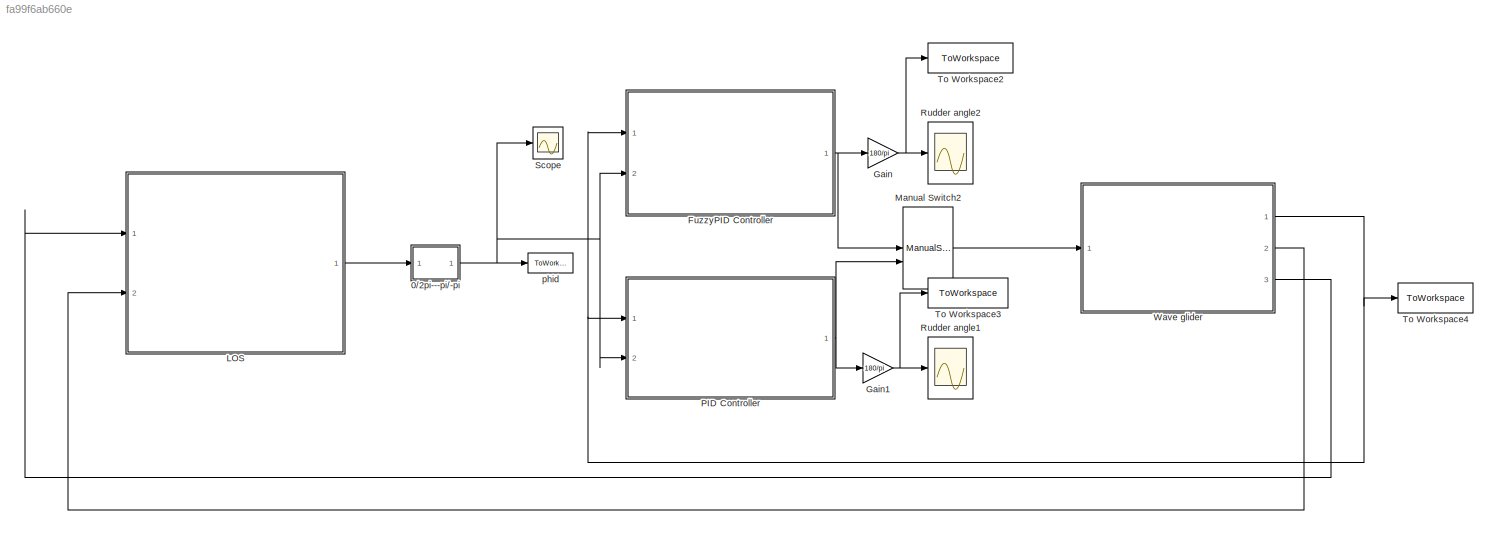
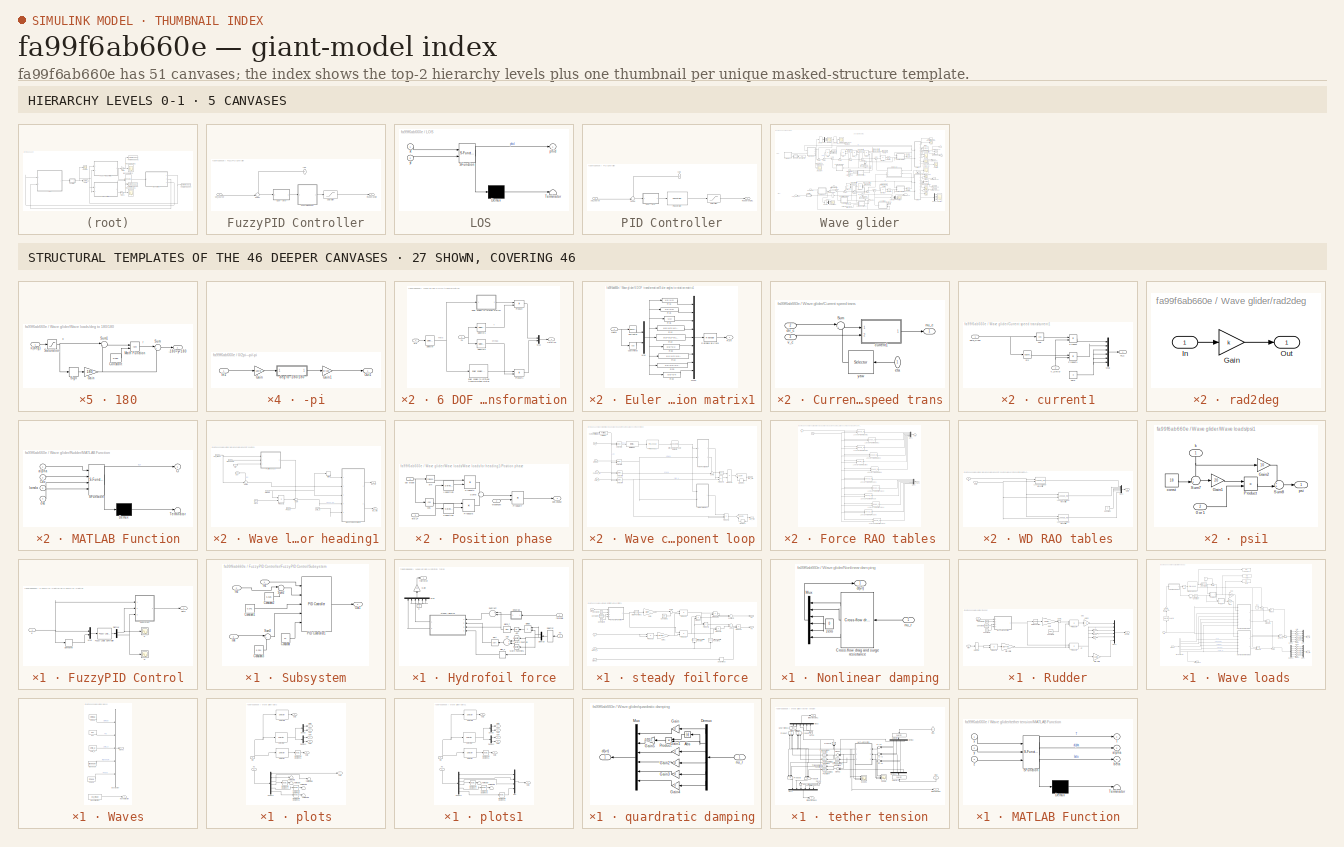
[diagram: thumbnail index - top-2 hierarchy levels (5 canvases) + 27 structural-template representatives of the remaining 46 canvases]
MODEL slx_fa99f6ab660e
KIND model
CONFIG AbsTol = auto
CONFIG FixedStep = 0.001
CONFIG MaxStep = 0.01
CONFIG MinStep = auto
CONFIG RelTol = 1e-6
CONFIG SampleTimeConstraint = Unconstrained
CONFIG Solver = ode4
CONFIG SolverMode = Auto
CONFIG SolverName = ode4
CONFIG StartTime = 0.0
CONFIG StopTime = 2000
BLOCK [SubSystem] 0//2pi---pi//-pi
  Ports = [1, 1]
  RequestExecContextInheritance = off
  Variant = off
BLOCK [Gain] 0//2pi---pi//-pi/Gain
  Gain = 180/pi
  OutDataTypeStr = Inherit: Inherit via internal rule
  ParamDataTypeStr = Inherit: Inherit via internal rule
  SaturateOnIntegerOverflow = off
BLOCK [Gain] 0//2pi---pi//-pi/Gain1
  Gain = pi/180
  OutDataTypeStr = Inherit: Inherit via internal rule
  ParamDataTypeStr = Inherit: Inherit via internal rule
  SaturateOnIntegerOverflow = off
BLOCK [Inport] 0//2pi---pi//-pi/In1
  IconDisplay = Port number
BLOCK [Outport] 0//2pi---pi//-pi/Out1
  IconDisplay = Port number
BLOCK [SubSystem] 0//2pi---pi//-pi/deg to -180//180
  AncestorBlock = marine_gnc/Utilities/Math Operations/deg to 180//180
  Ports = [1, 1]
  RequestExecContextInheritance = off
  Variant = off
BLOCK [Outport] 0//2pi---pi//-pi/deg to -180//180/-180<y<180
  IconDisplay = Port number
BLOCK [Constant] 0//2pi---pi//-pi/deg to -180//180/Constant
  Value = 2*180
BLOCK [Gain] 0//2pi---pi//-pi/deg to -180//180/Gain
  Gain = 180
BLOCK [Math] 0//2pi---pi//-pi/deg to -180//180/Math Function
  Operator = rem
  Ports = [2, 1]
BLOCK [Saturate] 0//2pi---pi//-pi/deg to -180//180/Saturation
  InputPortMap = u0
  LowerLimit = -1e10
  Ports = [1, 1]
  UpperLimit = 1e10
BLOCK [Signum] 0//2pi---pi//-pi/deg to -180//180/Sign
BLOCK [Sum] 0//2pi---pi//-pi/deg to -180//180/Sum
  IconShape = round
  InputSameDT = off
  Inputs = |+-
  OutDataTypeStr = Inherit: Inherit via internal rule
  Ports = [2, 1]
BLOCK [Sum] 0//2pi---pi//-pi/deg to -180//180/Sum1
  IconShape = round
  InputSameDT = off
  Inputs = |++
  OutDataTypeStr = Inherit: Inherit via internal rule
  Ports = [2, 1]
BLOCK [Inport] 0//2pi---pi//-pi/deg to -180//180/x (deg)
  IconDisplay = Port number
BLOCK [SubSystem] FuzzyPID Controller
  Ports = [2, 1]
  RequestExecContextInheritance = off
  Variant = off
BLOCK [SubSystem] FuzzyPID Controller/0//2pi---pi//-pi
  Ports = [1, 1]
  RequestExecContextInheritance = off
  Variant = off
BLOCK [Gain] FuzzyPID Controller/0//2pi---pi//-pi/Gain
  Gain = 180/pi
  OutDataTypeStr = Inherit: Inherit via internal rule
  ParamDataTypeStr = Inherit: Inherit via internal rule
  SaturateOnIntegerOverflow = off
BLOCK [Gain] FuzzyPID Controller/0//2pi---pi//-pi/Gain1
  Gain = pi/180
  OutDataTypeStr = Inherit: Inherit via internal rule
  ParamDataTypeStr = Inherit: Inherit via internal rule
  SaturateOnIntegerOverflow = off
BLOCK [Inport] FuzzyPID Controller/0//2pi---pi//-pi/In1
  IconDisplay = Port number
BLOCK [Outport] FuzzyPID Controller/0//2pi---pi//-pi/Out1
  IconDisplay = Port number
BLOCK [SubSystem] FuzzyPID Controller/0//2pi---pi//-pi/deg to -180//180
  AncestorBlock = marine_gnc/Utilities/Math Operations/deg to 180//180
  Ports = [1, 1]
  RequestExecContextInheritance = off
  Variant = off
BLOCK [Outport] FuzzyPID Controller/0//2pi---pi//-pi/deg to -180//180/-180<y<180
  IconDisplay = Port number
BLOCK [Constant] FuzzyPID Controller/0//2pi---pi//-pi/deg to -180//180/Constant
  Value = 2*180
BLOCK [Gain] FuzzyPID Controller/0//2pi---pi//-pi/deg to -180//180/Gain
  Gain = 180
BLOCK [Math] FuzzyPID Controller/0//2pi---pi//-pi/deg to -180//180/Math Function
  Operator = rem
  Ports = [2, 1]
BLOCK [Saturate] FuzzyPID Controller/0//2pi---pi//-pi/deg to -180//180/Saturation
  InputPortMap = u0
  LowerLimit = -1e10
  Ports = [1, 1]
  UpperLimit = 1e10
BLOCK [Signum] FuzzyPID Controller/0//2pi---pi//-pi/deg to -180//180/Sign
BLOCK [Sum] FuzzyPID Controller/0//2pi---pi//-pi/deg to -180//180/Sum
  IconShape = round
  InputSameDT = off
  Inputs = |+-
  OutDataTypeStr = Inherit: Inherit via internal rule
  Ports = [2, 1]
BLOCK [Sum] FuzzyPID Controller/0//2pi---pi//-pi/deg to -180//180/Sum1
  IconShape = round
  InputSameDT = off
  Inputs = |++
  OutDataTypeStr = Inherit: Inherit via internal rule
  Ports = [2, 1]
BLOCK [Inport] FuzzyPID Controller/0//2pi---pi//-pi/deg to -180//180/x (deg)
  IconDisplay = Port number
BLOCK [SubSystem] FuzzyPID Controller/FuzzyPID Control
  Ports = [1, 1]
  RequestExecContextInheritance = off
  Variant = off
BLOCK [Scope] FuzzyPID Controller/FuzzyPID Control/D
  Ports = [1]
  ScopeSpecificationString = Simulink.scopes.TimeScopeBlockCfg('CurrentConfiguration', extmgr.ConfigurationSet(extmgr.Configuration('Core','General UI',true),extmgr.Configuration('Core','Source UI',true),extmgr.Configuration('Sources','WiredSimulink',true,'DataLoggingVariableName','ScopeData3'),extmgr.Configuration('Visuals','Time Domain',true,'SerializedDisplays',{struct('MinYLimReal','0.49459','MaxYLimReal','2.87065','YLabe...<+1393ch>
BLOCK [Demux] FuzzyPID Controller/FuzzyPID Control/Demux
  DisplayOption = bar
  Outputs = 2
  Ports = [1, 2]
BLOCK [Derivative] FuzzyPID Controller/FuzzyPID Control/Derivative
BLOCK [Outport] FuzzyPID Controller/FuzzyPID Control/Deta
  IconDisplay = Port number
BLOCK [Reference] FuzzyPID Controller/FuzzyPID Control/Fuzzy Logic Controller  REF=fuzblock/Fuzzy Logic   (lib defined in mdl_858b3b3e7478)
Controller
  Ports = [1, 1]
  SourceBlock = fuzblock/Fuzzy Logic \nController
  SourceType = FIS
BLOCK [Mux] FuzzyPID Controller/FuzzyPID Control/Mux
  DisplayOption = bar
  Inputs = 2
  Ports = [2, 1]
BLOCK [Scope] FuzzyPID Controller/FuzzyPID Control/P
  Ports = [1]
  ScopeSpecificationString = Simulink.scopes.TimeScopeBlockCfg('CurrentConfiguration', extmgr.ConfigurationSet(extmgr.Configuration('Core','General UI',true),extmgr.Configuration('Core','Source UI',true),extmgr.Configuration('Sources','WiredSimulink',true,'DataLoggingVariableName','ScopeData1'),extmgr.Configuration('Visuals','Time Domain',true,'SerializedDisplays',{struct('MinYLimReal','-1.99498','MaxYLimReal','2.21847','YLab...<+1366ch>
BLOCK [SubSystem] FuzzyPID Controller/FuzzyPID Control/Subsystem
  Ports = [3, 1]
  RequestExecContextInheritance = off
  Variant = off
BLOCK [Constant] FuzzyPID Controller/FuzzyPID Control/Subsystem/Constant
  Value = 10
BLOCK [Constant] FuzzyPID Controller/FuzzyPID Control/Subsystem/Constant1
  Value = 0.041
BLOCK [Constant] FuzzyPID Controller/FuzzyPID Control/Subsystem/Constant2
  Value = 5.526
BLOCK [Constant] FuzzyPID Controller/FuzzyPID Control/Subsystem/Constant3
  Value = 6.254
BLOCK [Inport] FuzzyPID Controller/FuzzyPID Control/Subsystem/In1
  IconDisplay = Port number
BLOCK [Inport] FuzzyPID Controller/FuzzyPID Control/Subsystem/In2
  IconDisplay = Port number
  Port = 2
BLOCK [Inport] FuzzyPID Controller/FuzzyPID Control/Subsystem/In4
  IconDisplay = Port number
  Port = 3
BLOCK [Outport] FuzzyPID Controller/FuzzyPID Control/Subsystem/Out1
  IconDisplay = Port number
BLOCK [Reference] FuzzyPID Controller/FuzzyPID Control/Subsystem/PID Controller1  REF=simulink/Continuous/PID Controller
  Ports = [5, 1]
  SourceBlock = simulink/Continuous/PID Controller
  SourceType = PID 1dof
BLOCK [Sum] FuzzyPID Controller/FuzzyPID Control/Subsystem/Sum2
  IconShape = round
  InputSameDT = off
  Inputs = |++
  OutDataTypeStr = Inherit: Inherit via internal rule
  Ports = [2, 1]
  SaturateOnIntegerOverflow = off
BLOCK [Sum] FuzzyPID Controller/FuzzyPID Control/Subsystem/Sum3
  IconShape = round
  InputSameDT = off
  Inputs = |++
  OutDataTypeStr = Inherit: Inherit via internal rule
  Ports = [2, 1]
  SaturateOnIntegerOverflow = off
BLOCK [Inport] FuzzyPID Controller/FuzzyPID Control/e
  IconDisplay = Port number
BLOCK [Outport] FuzzyPID Controller/Rudder angle
  IconDisplay = Port number
BLOCK [Saturate] FuzzyPID Controller/Saturation
  InputPortMap = u0
  LowerLimit = -0.78
  Ports = [1, 1]
  UpperLimit = 0.78
BLOCK [Sum] FuzzyPID Controller/Sum11
  IconShape = round
  InputSameDT = off
  Inputs = +-|
  OutDataTypeStr = Inherit: Inherit via internal rule
  Ports = [2, 1]
BLOCK [Inport] FuzzyPID Controller/set_course
  IconDisplay = Port number
  Port = 2
BLOCK [Inport] FuzzyPID Controller/yaw
  IconDisplay = Port number
BLOCK [Gain] Gain
  Gain = 180/pi
  OutDataTypeStr = Inherit: Inherit via internal rule
  ParamDataTypeStr = Inherit: Inherit via internal rule
  SaturateOnIntegerOverflow = off
BLOCK [Gain] Gain1
  Gain = 180/pi
  OutDataTypeStr = Inherit: Inherit via internal rule
  ParamDataTypeStr = Inherit: Inherit via internal rule
  SaturateOnIntegerOverflow = off
BLOCK [SubSystem] LOS 
  ErrorFcn = Stateflow.Translate.translate
  PermitHierarchicalResolution = ExplicitOnly
  Ports = [2, 1]
  RequestExecContextInheritance = off
  SFBlockType = MATLAB Function
  TreatAsAtomicUnit = on
  Variant = off
BLOCK [Demux] LOS / Demux 
  Outputs = 1
  Ports = [1, 1]
BLOCK [S-Function] LOS / SFunction 
  EnableBusSupport = on
  FunctionName = sf_sfun
  PortCounts = [2 2]
  Ports = [2, 2]
  SFunctionDeploymentMode = off
  Tag = Stateflow S-Function path_following_revised 2
BLOCK [Terminator] LOS / Terminator 
BLOCK [Outport] LOS /phid
  IconDisplay = Port number
BLOCK [Inport] LOS /xt
  IconDisplay = Port number
BLOCK [Inport] LOS /yt
  IconDisplay = Port number
  Port = 2
BLOCK [ManualSwitch] Manual Switch2
BLOCK [SubSystem] PID Controller
  Ports = [2, 1]
  RequestExecContextInheritance = off
  Variant = off
BLOCK [SubSystem] PID Controller/0//2pi---pi//-pi
  Ports = [1, 1]
  RequestExecContextInheritance = off
  Variant = off
BLOCK [Gain] PID Controller/0//2pi---pi//-pi/Gain
  Gain = 180/pi
  OutDataTypeStr = Inherit: Inherit via internal rule
  ParamDataTypeStr = Inherit: Inherit via internal rule
  SaturateOnIntegerOverflow = off
BLOCK [Gain] PID Controller/0//2pi---pi//-pi/Gain1
  Gain = pi/180
  OutDataTypeStr = Inherit: Inherit via internal rule
  ParamDataTypeStr = Inherit: Inherit via internal rule
  SaturateOnIntegerOverflow = off
BLOCK [Inport] PID Controller/0//2pi---pi//-pi/In1
  IconDisplay = Port number
BLOCK [Outport] PID Controller/0//2pi---pi//-pi/Out1
  IconDisplay = Port number
BLOCK [SubSystem] PID Controller/0//2pi---pi//-pi/deg to -180//180
  AncestorBlock = marine_gnc/Utilities/Math Operations/deg to 180//180
  Ports = [1, 1]
  RequestExecContextInheritance = off
  Variant = off
BLOCK [Outport] PID Controller/0//2pi---pi//-pi/deg to -180//180/-180<y<180
  IconDisplay = Port number
BLOCK [Constant] PID Controller/0//2pi---pi//-pi/deg to -180//180/Constant
  Value = 2*180
BLOCK [Gain] PID Controller/0//2pi---pi//-pi/deg to -180//180/Gain
  Gain = 180
BLOCK [Math] PID Controller/0//2pi---pi//-pi/deg to -180//180/Math Function
  Operator = rem
  Ports = [2, 1]
BLOCK [Saturate] PID Controller/0//2pi---pi//-pi/deg to -180//180/Saturation
  InputPortMap = u0
  LowerLimit = -1e10
  Ports = [1, 1]
  UpperLimit = 1e10
BLOCK [Signum] PID Controller/0//2pi---pi//-pi/deg to -180//180/Sign
BLOCK [Sum] PID Controller/0//2pi---pi//-pi/deg to -180//180/Sum
  IconShape = round
  InputSameDT = off
  Inputs = |+-
  OutDataTypeStr = Inherit: Inherit via internal rule
  Ports = [2, 1]
BLOCK [Sum] PID Controller/0//2pi---pi//-pi/deg to -180//180/Sum1
  IconShape = round
  InputSameDT = off
  Inputs = |++
  OutDataTypeStr = Inherit: Inherit via internal rule
  Ports = [2, 1]
BLOCK [Inport] PID Controller/0//2pi---pi//-pi/deg to -180//180/x (deg)
  IconDisplay = Port number
BLOCK [Reference] PID Controller/PID Controller  REF=simulink/Continuous/PID Controller
  Ports = [1, 1]
  SourceBlock = simulink/Continuous/PID Controller
  SourceType = PID 1dof
BLOCK [Outport] PID Controller/Rudder angle1
  IconDisplay = Port number
BLOCK [Saturate] PID Controller/Saturation
  InputPortMap = u0
  LowerLimit = -0.78
  Ports = [1, 1]
  UpperLimit = 0.78
BLOCK [Sum] PID Controller/Sum16
  IconShape = round
  InputSameDT = off
  Inputs = +-|
  OutDataTypeStr = Inherit: Inherit via internal rule
  Ports = [2, 1]
BLOCK [Inport] PID Controller/set_course
  IconDisplay = Port number
  Port = 2
BLOCK [Inport] PID Controller/yaw
  IconDisplay = Port number
BLOCK [Scope] Rudder angle1
  Ports = [1]
  ScopeSpecificationString = Simulink.scopes.TimeScopeBlockCfg('CurrentConfiguration', extmgr.ConfigurationSet(extmgr.Configuration('Core','General UI',true),extmgr.Configuration('Core','Source UI',true),extmgr.Configuration('Sources','WiredSimulink',true,'DataLoggingVariableName','ScopeData4','DataLoggingSaveFormat','Array','DataLoggingDecimation','1','DataLoggingDecimateData',true),extmgr.Configuration('Visuals','Time Domai...<+1491ch>
BLOCK [Scope] Rudder angle2
  Ports = [1]
  ScopeSpecificationString = Simulink.scopes.TimeScopeBlockCfg('CurrentConfiguration', extmgr.ConfigurationSet(extmgr.Configuration('Core','General UI',true),extmgr.Configuration('Core','Source UI',true),extmgr.Configuration('Sources','WiredSimulink',true,'DataLoggingVariableName','ScopeData5'),extmgr.Configuration('Visuals','Time Domain',true,'SerializedDisplays',{struct('MinYLimReal','-55.86339','MaxYLimReal','55.86339','YL...<+1399ch>
BLOCK [Scope] Scope
  Ports = [1]
  ScopeSpecificationString = Simulink.scopes.TimeScopeBlockCfg('CurrentConfiguration', extmgr.ConfigurationSet(extmgr.Configuration('Core','General UI',true),extmgr.Configuration('Core','Source UI',true),extmgr.Configuration('Sources','WiredSimulink',true,'DataLoggingVariableName','ScopeData1'),extmgr.Configuration('Visuals','Time Domain',true,'SerializedDisplays',{struct('MinYLimReal','-10','MaxYLimReal','10','YLabelReal',''...<+1401ch>
BLOCK [ToWorkspace] To Workspace2
  FixptAsFi = on
  MaxDataPoints = inf
  Ports = [1]
  SampleTime = -1
  Save2DSignal = 3-D array (concatenate along third dimension)
  SaveFormat = Timeseries
  VariableName = rudder_fuzzyPID
BLOCK [ToWorkspace] To Workspace3
  FixptAsFi = on
  MaxDataPoints = inf
  Ports = [1]
  SampleTime = -1
  Save2DSignal = 3-D array (concatenate along third dimension)
  SaveFormat = Timeseries
  VariableName = rudder_PID
BLOCK [ToWorkspace] To Workspace4
  FixptAsFi = on
  MaxDataPoints = inf
  Ports = [1]
  SampleTime = -1
  Save2DSignal = 3-D array (concatenate along third dimension)
  SaveFormat = Timeseries
  VariableName = phit
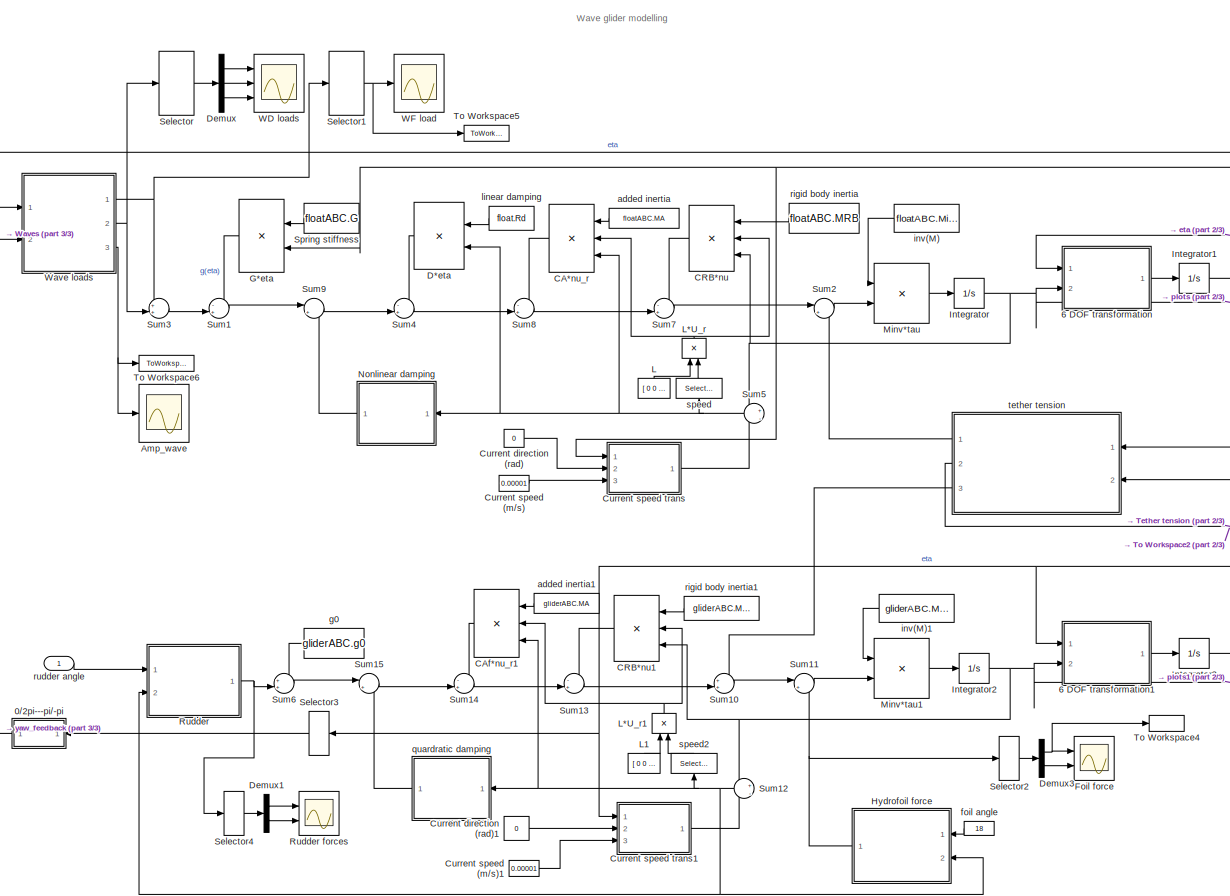
[diagram: Wave glider - part 1/3, center side, full height]
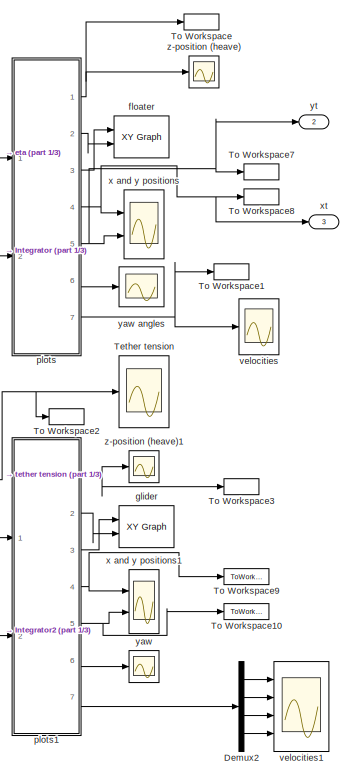
[diagram: Wave glider - part 2/3, right side, full height]
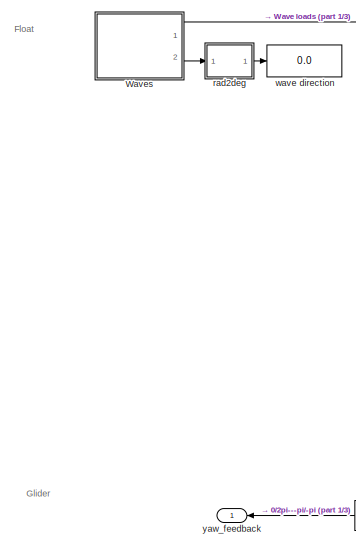
[diagram: Wave glider - part 3/3, middle left region]
BLOCK [SubSystem] Wave glider
  Ports = [1, 3]
  RequestExecContextInheritance = off
  Variant = off
BLOCK [Scope] Wave glider/ yaw angles
  Ports = [1]
  ScopeSpecificationString = Simulink.scopes.TimeScopeBlockCfg('CurrentConfiguration', extmgr.ConfigurationSet(extmgr.Configuration('Core','General UI',true),extmgr.Configuration('Core','Source UI',true),extmgr.Configuration('Sources','WiredSimulink',true,'DataLoggingVariableName','ScopeData1','DataLoggingSaveFormat','StructureWithTime','DataLoggingDecimation','1','DataLoggingDecimateData',true),extmgr.Configuration('Visuals'...<+1544ch>
BLOCK [SubSystem] Wave glider/0//2pi---pi//-pi
  Ports = [1, 1]
  RequestExecContextInheritance = off
  Variant = off
BLOCK [Gain] Wave glider/0//2pi---pi//-pi/Gain
  Gain = 180/pi
  OutDataTypeStr = Inherit: Inherit via internal rule
  ParamDataTypeStr = Inherit: Inherit via internal rule
  SaturateOnIntegerOverflow = off
BLOCK [Gain] Wave glider/0//2pi---pi//-pi/Gain1
  Gain = pi/180
  OutDataTypeStr = Inherit: Inherit via internal rule
  ParamDataTypeStr = Inherit: Inherit via internal rule
  SaturateOnIntegerOverflow = off
BLOCK [Inport] Wave glider/0//2pi---pi//-pi/In1
  IconDisplay = Port number
BLOCK [Outport] Wave glider/0//2pi---pi//-pi/Out1
  IconDisplay = Port number
BLOCK [SubSystem] Wave glider/0//2pi---pi//-pi/deg to -180//180
  AncestorBlock = marine_gnc/Utilities/Math Operations/deg to 180//180
  Ports = [1, 1]
  RequestExecContextInheritance = off
  Variant = off
BLOCK [Outport] Wave glider/0//2pi---pi//-pi/deg to -180//180/-180<y<180
  IconDisplay = Port number
BLOCK [Constant] Wave glider/0//2pi---pi//-pi/deg to -180//180/Constant
  Value = 2*180
BLOCK [Gain] Wave glider/0//2pi---pi//-pi/deg to -180//180/Gain
  Gain = 180
BLOCK [Math] Wave glider/0//2pi---pi//-pi/deg to -180//180/Math Function
  Operator = rem
  Ports = [2, 1]
BLOCK [Saturate] Wave glider/0//2pi---pi//-pi/deg to -180//180/Saturation
  InputPortMap = u0
  LowerLimit = -1e10
  Ports = [1, 1]
  UpperLimit = 1e10
BLOCK [Signum] Wave glider/0//2pi---pi//-pi/deg to -180//180/Sign
BLOCK [Sum] Wave glider/0//2pi---pi//-pi/deg to -180//180/Sum
  IconShape = round
  InputSameDT = off
  Inputs = |+-
  OutDataTypeStr = Inherit: Inherit via internal rule
  Ports = [2, 1]
BLOCK [Sum] Wave glider/0//2pi---pi//-pi/deg to -180//180/Sum1
  IconShape = round
  InputSameDT = off
  Inputs = |++
  OutDataTypeStr = Inherit: Inherit via internal rule
  Ports = [2, 1]
BLOCK [Inport] Wave glider/0//2pi---pi//-pi/deg to -180//180/x (deg)
  IconDisplay = Port number
BLOCK [SubSystem] Wave glider/6 DOF transformation
  AncestorBlock = marine_gnc/Models/ Kinematics/6 DOF transformation
  Ports = [2, 1]
  RequestExecContextInheritance = off
  Variant = off
BLOCK [Reference] Wave glider/6 DOF transformation/Euler angles to attitude transformation matrix  REF=marine_gnc/Models/ Kinematics/Euler angles to attitude  (lib defined in mdl_10d96c221ba8, mdl_45f1105420c6)
transformation matrix
  Ports = [1, 1]
  SourceBlock = marine_gnc/Models/ Kinematics/Euler angles to attitude\ntransformation matrix
  SourceType = Euler2T
BLOCK [SubSystem] Wave glider/6 DOF transformation/Euler angles to rotation matrix1
  AncestorBlock = marine_gnc/Models/ Kinematics/Euler angles to\nrotation matrix
  Ports = [1, 1]
  RequestExecContextInheritance = off
  ShowPortLabels = none
  Variant = off
BLOCK [Mux] Wave glider/6 DOF transformation/Euler angles to rotation matrix1/Mux
  DisplayOption = bar
  Inputs = 2
  Ports = [2, 1]
BLOCK [Mux] Wave glider/6 DOF transformation/Euler angles to rotation matrix1/Mux2
  DisplayOption = bar
  Inputs = 9
  Ports = [9, 1]
BLOCK [Fcn] Wave glider/6 DOF transformation/Euler angles to rotation matrix1/R11
  Expr = u(6)*u(5)
BLOCK [Fcn] Wave glider/6 DOF transformation/Euler angles to rotation matrix1/R12
  Expr = u(6)*u(2)*u(1)-u(3)*u(4)
BLOCK [Fcn] Wave glider/6 DOF transformation/Euler angles to rotation matrix1/R13
  Expr = u(4)*u(2)*u(6)+u(3)*u(1)
BLOCK [Fcn] Wave glider/6 DOF transformation/Euler angles to rotation matrix1/R21 
  Expr = u(3)*u(5)
BLOCK [Fcn] Wave glider/6 DOF transformation/Euler angles to rotation matrix1/R22
  Expr = u(3)*u(2)*u(1)+u(6)*u(4)
BLOCK [Fcn] Wave glider/6 DOF transformation/Euler angles to rotation matrix1/R23
  Expr = u(3)*u(2)*u(4)-u(6)*u(1)
BLOCK [Fcn] Wave glider/6 DOF transformation/Euler angles to rotation matrix1/R31 
  Expr = -u(2)
BLOCK [Fcn] Wave glider/6 DOF transformation/Euler angles to rotation matrix1/R32
  Expr = u(5)*u(1)
BLOCK [Fcn] Wave glider/6 DOF transformation/Euler angles to rotation matrix1/R33
  Expr = u(5)*u(4)
BLOCK [Reshape] Wave glider/6 DOF transformation/Euler angles to rotation matrix1/Reshape 9x1->3x3
  OutputDimensionality = Customize
  OutputDimensions = [3,3]
  Ports = [1, 1]
BLOCK [Outport] Wave glider/6 DOF transformation/Euler angles to rotation matrix1/Rzyx
  IconDisplay = Port number
  InitialOutput = 0
BLOCK [Trigonometry] Wave glider/6 DOF transformation/Euler angles to rotation matrix1/cos(theta)
  Operator = cos
  Ports = [1, 1]
BLOCK [Trigonometry] Wave glider/6 DOF transformation/Euler angles to rotation matrix1/sin(theta)
  Ports = [1, 1]
BLOCK [Inport] Wave glider/6 DOF transformation/Euler angles to rotation matrix1/theta
  IconDisplay = Port number
BLOCK [Outport] Wave glider/6 DOF transformation/J(eta)*nu
  IconDisplay = Port number
BLOCK [Mux] Wave glider/6 DOF transformation/Mux
  DisplayOption = bar
  Inputs = 2
  Ports = [2, 1]
BLOCK [Product] Wave glider/6 DOF transformation/Product
  InputSameDT = off
  Inputs = **
  Multiplication = Matrix(*)
  Ports = [2, 1]
  RndMeth = Floor
BLOCK [Product] Wave glider/6 DOF transformation/Product1
  InputSameDT = off
  Inputs = **
  Multiplication = Matrix(*)
  Ports = [2, 1]
  RndMeth = Floor
BLOCK [Selector] Wave glider/6 DOF transformation/Selector
  IndexOptions = Index vector (dialog)
  Indices = [4 5 6]
  InputPortWidth = 6
  OutputSizes = 1
  Ports = [1, 1]
BLOCK [Selector] Wave glider/6 DOF transformation/Selector1
  IndexOptions = Index vector (dialog)
  Indices = [1 2 3]
  InputPortWidth = 6
  OutputSizes = 1
  Ports = [1, 1]
BLOCK [Selector] Wave glider/6 DOF transformation/Selector2
  IndexOptions = Index vector (dialog)
  Indices = [4 5 6]
  InputPortWidth = 6
  OutputSizes = 1
  Ports = [1, 1]
BLOCK [Inport] Wave glider/6 DOF transformation/eta
  IconDisplay = Port number
BLOCK [Inport] Wave glider/6 DOF transformation/nu
  IconDisplay = Port number
  Port = 2
BLOCK [SubSystem] Wave glider/6 DOF transformation1
  AncestorBlock = marine_gnc/Models/ Kinematics/6 DOF transformation
  Ports = [2, 1]
  RequestExecContextInheritance = off
  Variant = off
BLOCK [Reference] Wave glider/6 DOF transformation1/Euler angles to attitude transformation matrix  REF=marine_gnc/Models/ Kinematics/Euler angles to attitude  (lib defined in mdl_10d96c221ba8, mdl_45f1105420c6)
transformation matrix
  Ports = [1, 1]
  SourceBlock = marine_gnc/Models/ Kinematics/Euler angles to attitude\ntransformation matrix
  SourceType = Euler2T
BLOCK [SubSystem] Wave glider/6 DOF transformation1/Euler angles to rotation matrix1
  AncestorBlock = marine_gnc/Models/ Kinematics/Euler angles to\nrotation matrix
  Ports = [1, 1]
  RequestExecContextInheritance = off
  ShowPortLabels = none
  Variant = off
BLOCK [Mux] Wave glider/6 DOF transformation1/Euler angles to rotation matrix1/Mux
  DisplayOption = bar
  Inputs = 2
  Ports = [2, 1]
BLOCK [Mux] Wave glider/6 DOF transformation1/Euler angles to rotation matrix1/Mux2
  DisplayOption = bar
  Inputs = 9
  Ports = [9, 1]
BLOCK [Fcn] Wave glider/6 DOF transformation1/Euler angles to rotation matrix1/R11
  Expr = u(6)*u(5)
BLOCK [Fcn] Wave glider/6 DOF transformation1/Euler angles to rotation matrix1/R12
  Expr = u(6)*u(2)*u(1)-u(3)*u(4)
BLOCK [Fcn] Wave glider/6 DOF transformation1/Euler angles to rotation matrix1/R13
  Expr = u(4)*u(2)*u(6)+u(3)*u(1)
BLOCK [Fcn] Wave glider/6 DOF transformation1/Euler angles to rotation matrix1/R21 
  Expr = u(3)*u(5)
BLOCK [Fcn] Wave glider/6 DOF transformation1/Euler angles to rotation matrix1/R22
  Expr = u(3)*u(2)*u(1)+u(6)*u(4)
BLOCK [Fcn] Wave glider/6 DOF transformation1/Euler angles to rotation matrix1/R23
  Expr = u(3)*u(2)*u(4)-u(6)*u(1)
BLOCK [Fcn] Wave glider/6 DOF transformation1/Euler angles to rotation matrix1/R31 
  Expr = -u(2)
BLOCK [Fcn] Wave glider/6 DOF transformation1/Euler angles to rotation matrix1/R32
  Expr = u(5)*u(1)
BLOCK [Fcn] Wave glider/6 DOF transformation1/Euler angles to rotation matrix1/R33
  Expr = u(5)*u(4)
BLOCK [Reshape] Wave glider/6 DOF transformation1/Euler angles to rotation matrix1/Reshape 9x1->3x3
  OutputDimensionality = Customize
  OutputDimensions = [3,3]
  Ports = [1, 1]
BLOCK [Outport] Wave glider/6 DOF transformation1/Euler angles to rotation matrix1/Rzyx
  IconDisplay = Port number
  InitialOutput = 0
BLOCK [Trigonometry] Wave glider/6 DOF transformation1/Euler angles to rotation matrix1/cos(theta)
  Operator = cos
  Ports = [1, 1]
BLOCK [Trigonometry] Wave glider/6 DOF transformation1/Euler angles to rotation matrix1/sin(theta)
  Ports = [1, 1]
BLOCK [Inport] Wave glider/6 DOF transformation1/Euler angles to rotation matrix1/theta
  IconDisplay = Port number
BLOCK [Outport] Wave glider/6 DOF transformation1/J(eta)*nu
  IconDisplay = Port number
BLOCK [Mux] Wave glider/6 DOF transformation1/Mux
  DisplayOption = bar
  Inputs = 2
  Ports = [2, 1]
BLOCK [Product] Wave glider/6 DOF transformation1/Product
  InputSameDT = off
  Inputs = **
  Multiplication = Matrix(*)
  Ports = [2, 1]
  RndMeth = Floor
BLOCK [Product] Wave glider/6 DOF transformation1/Product1
  InputSameDT = off
  Inputs = **
  Multiplication = Matrix(*)
  Ports = [2, 1]
  RndMeth = Floor
BLOCK [Selector] Wave glider/6 DOF transformation1/Selector
  IndexOptions = Index vector (dialog)
  Indices = [4 5 6]
  InputPortWidth = 6
  OutputSizes = 1
  Ports = [1, 1]
BLOCK [Selector] Wave glider/6 DOF transformation1/Selector1
  IndexOptions = Index vector (dialog)
  Indices = [1 2 3]
  InputPortWidth = 6
  OutputSizes = 1
  Ports = [1, 1]
BLOCK [Selector] Wave glider/6 DOF transformation1/Selector2
  IndexOptions = Index vector (dialog)
  Indices = [4 5 6]
  InputPortWidth = 6
  OutputSizes = 1
  Ports = [1, 1]
BLOCK [Inport] Wave glider/6 DOF transformation1/eta
  IconDisplay = Port number
BLOCK [Inport] Wave glider/6 DOF transformation1/nu
  IconDisplay = Port number
  Port = 2
BLOCK [Scope] Wave glider/Amp_wave
  Ports = [1]
  ScopeSpecificationString = Simulink.scopes.TimeScopeBlockCfg('CurrentConfiguration', extmgr.ConfigurationSet(extmgr.Configuration('Core','General UI',true),extmgr.Configuration('Core','Source UI',true),extmgr.Configuration('Sources','WiredSimulink',true,'DataLoggingVariableName','ScopeData1','DataLoggingLimitDataPoints',true,'DataLoggingSaveFormat','Array','DataLoggingDecimation','1','DataLoggingDecimateData',true),extmgr.C...<+1512ch>
BLOCK [Product] Wave glider/CA*nu_r
  InputSameDT = off
  Inputs = 3
  Multiplication = Matrix(*)
  OutDataTypeStr = Inherit: Inherit via internal rule
  Ports = [3, 1]
  SaturateOnIntegerOverflow = off
BLOCK [Product] Wave glider/CAf*nu_r1
  InputSameDT = off
  Inputs = 3
  Multiplication = Matrix(*)
  OutDataTypeStr = Inherit: Inherit via internal rule
  Ports = [3, 1]
  SaturateOnIntegerOverflow = off
BLOCK [Product] Wave glider/CRB*nu
  InputSameDT = off
  Inputs = 3
  Multiplication = Matrix(*)
  OutDataTypeStr = Inherit: Inherit via internal rule
  Ports = [3, 1]
  SaturateOnIntegerOverflow = off
BLOCK [Product] Wave glider/CRB*nu1
  InputSameDT = off
  Inputs = 3
  Multiplication = Matrix(*)
  OutDataTypeStr = Inherit: Inherit via internal rule
  Ports = [3, 1]
  SaturateOnIntegerOverflow = off
BLOCK [Constant] Wave glider/Current direction (rad)
  Value = 0
BLOCK [Constant] Wave glider/Current direction (rad)1
  Value = 0
BLOCK [Constant] Wave glider/Current speed (m//s)
  Value = 0.00001
BLOCK [Constant] Wave glider/Current speed (m//s)1
  Value = 0.00001
BLOCK [SubSystem] Wave glider/Current speed trans
  Ports = [3, 1]
  RequestExecContextInheritance = off
  Variant = off
BLOCK [Sum] Wave glider/Current speed trans/Sum
  IconShape = round
  InputSameDT = off
  Inputs = |+-
  OutDataTypeStr = Inherit: Inherit via internal rule
  Ports = [2, 1]
  SaturateOnIntegerOverflow = off
BLOCK [SubSystem] Wave glider/Current speed trans/current1
  Ports = [2, 1]
  RequestExecContextInheritance = off
  Variant = off
BLOCK [Mux] Wave glider/Current speed trans/current1/Mux
  DisplayOption = bar
  Inputs = 6
  Ports = [6, 1]
BLOCK [Product] Wave glider/Current speed trans/current1/Product
  InputSameDT = off
  OutDataTypeStr = Inherit: Inherit via internal rule
  Ports = [2, 1]
  SaturateOnIntegerOverflow = off
BLOCK [Product] Wave glider/Current speed trans/current1/Product1
  InputSameDT = off
  OutDataTypeStr = Inherit: Inherit via internal rule
  Ports = [2, 1]
  SaturateOnIntegerOverflow = off
BLOCK [Inport] Wave glider/Current speed trans/current1/V_c(m//s)
  IconDisplay = Port number
  Port = 2
BLOCK [Inport] Wave glider/Current speed trans/current1/beta_c(rad)
  IconDisplay = Port number
BLOCK [Trigonometry] Wave glider/Current speed trans/current1/cos
  Operator = cos
  Ports = [1, 1]
BLOCK [Outport] Wave glider/Current speed trans/current1/nu_c
  IconDisplay = Port number
BLOCK [Trigonometry] Wave glider/Current speed trans/current1/sin
  Ports = [1, 1]
BLOCK [Constant] Wave glider/Current speed trans/current1/zero
  Value = 0
BLOCK [Inport] Wave glider/Current speed trans/dir_c
  IconDisplay = Port number
  Port = 2
BLOCK [Inport] Wave glider/Current speed trans/eta
  IconDisplay = Port number
BLOCK [Outport] Wave glider/Current speed trans/nu_c
  IconDisplay = Port number
BLOCK [Inport] Wave glider/Current speed trans/v_c
  IconDisplay = Port number
  Port = 3
BLOCK [Selector] Wave glider/Current speed trans/yaw
  IndexOptions = Index vector (dialog)
  Indices = [6]
  InputPortWidth = 6
  OutputSizes = 1
  Ports = [1, 1]
BLOCK [SubSystem] Wave glider/Current speed trans1
  Ports = [3, 1]
  RequestExecContextInheritance = off
  Variant = off
BLOCK [Sum] Wave glider/Current speed trans1/Sum
  IconShape = round
  InputSameDT = off
  Inputs = |+-
  OutDataTypeStr = Inherit: Inherit via internal rule
  Ports = [2, 1]
  SaturateOnIntegerOverflow = off
BLOCK [SubSystem] Wave glider/Current speed trans1/current1
  Ports = [2, 1]
  RequestExecContextInheritance = off
  Variant = off
BLOCK [Mux] Wave glider/Current speed trans1/current1/Mux
  DisplayOption = bar
  Inputs = 6
  Ports = [6, 1]
BLOCK [Product] Wave glider/Current speed trans1/current1/Product
  InputSameDT = off
  OutDataTypeStr = Inherit: Inherit via internal rule
  Ports = [2, 1]
  SaturateOnIntegerOverflow = off
BLOCK [Product] Wave glider/Current speed trans1/current1/Product1
  InputSameDT = off
  OutDataTypeStr = Inherit: Inherit via internal rule
  Ports = [2, 1]
  SaturateOnIntegerOverflow = off
BLOCK [Inport] Wave glider/Current speed trans1/current1/V_c(m//s)
  IconDisplay = Port number
  Port = 2
BLOCK [Inport] Wave glider/Current speed trans1/current1/beta_c(rad)
  IconDisplay = Port number
BLOCK [Trigonometry] Wave glider/Current speed trans1/current1/cos
  Operator = cos
  Ports = [1, 1]
BLOCK [Outport] Wave glider/Current speed trans1/current1/nu_c
  IconDisplay = Port number
BLOCK [Trigonometry] Wave glider/Current speed trans1/current1/sin
  Ports = [1, 1]
BLOCK [Constant] Wave glider/Current speed trans1/current1/zero
  Value = 0
BLOCK [Inport] Wave glider/Current speed trans1/dir_c
  IconDisplay = Port number
  Port = 2
BLOCK [Inport] Wave glider/Current speed trans1/eta
  IconDisplay = Port number
BLOCK [Outport] Wave glider/Current speed trans1/nu_c
  IconDisplay = Port number
BLOCK [Inport] Wave glider/Current speed trans1/v_c
  IconDisplay = Port number
  Port = 3
BLOCK [Selector] Wave glider/Current speed trans1/yaw
  IndexOptions = Index vector (dialog)
  Indices = [6]
  InputPortWidth = 6
  OutputSizes = 1
  Ports = [1, 1]
BLOCK [Product] Wave glider/D*eta 
  InputSameDT = off
  Multiplication = Matrix(*)
  Ports = [2, 1]
  RndMeth = Floor
BLOCK [Demux] Wave glider/Demux
  DisplayOption = bar
  Outputs = 3
  Ports = [1, 3]
BLOCK [Demux] Wave glider/Demux1
  DisplayOption = bar
  Outputs = 2
  Ports = [1, 2]
BLOCK [Demux] Wave glider/Demux2
  Ports = [1, 4]
BLOCK [Demux] Wave glider/Demux3
  DisplayOption = bar
  Outputs = 2
  Ports = [1, 2]
BLOCK [Scope] Wave glider/Foil force
  NumInputPorts = 2
  Ports = [2]
  ScopeSpecificationString = Simulink.scopes.TimeScopeBlockCfg('CurrentConfiguration', extmgr.ConfigurationSet(extmgr.Configuration('Core','General UI',true),extmgr.Configuration('Core','Source UI',true),extmgr.Configuration('Sources','WiredSimulink',true,'DataLoggingVariableName','ScopeData1','DataLoggingDecimateData',true,'DataLoggingDecimation','1'),extmgr.Configuration('Visuals','Time Domain',true,'SerializedDisplays',{st...<+2055ch>
BLOCK [Product] Wave glider/G*eta
  InputSameDT = off
  Multiplication = Matrix(*)
  Ports = [2, 1]
  RndMeth = Floor
BLOCK [SubSystem] Wave glider/Hydrofoil force
  Ports = [2, 1]
  RequestExecContextInheritance = off
  Variant = off
BLOCK [Constant] Wave glider/Hydrofoil force/0
  Value = 0
BLOCK [Abs] Wave glider/Hydrofoil force/Abs
  SaturateOnIntegerOverflow = off
BLOCK [Sum] Wave glider/Hydrofoil force/Add
  InputSameDT = off
  OutDataTypeStr = Inherit: Inherit via internal rule
  Ports = [2, 1]
  SaturateOnIntegerOverflow = off
BLOCK [Demux] Wave glider/Hydrofoil force/Demux
  DisplayOption = bar
  Outputs = 2
  Ports = [1, 2]
BLOCK [Product] Wave glider/Hydrofoil force/Divide
  InputSameDT = off
  Inputs = */
  OutDataTypeStr = Inherit: Inherit via internal rule
  Ports = [2, 1]
  RndMeth = Floor
  SaturateOnIntegerOverflow = off
BLOCK [Gain] Wave glider/Hydrofoil force/Gain
  Gain = 12
  OutDataTypeStr = Inherit: Inherit via internal rule
  ParamDataTypeStr = Inherit: Inherit via internal rule
  SaturateOnIntegerOverflow = off
BLOCK [Math] Wave glider/Hydrofoil force/Math Function
  Operator = magnitude^2
  Ports = [1, 1]
BLOCK [Math] Wave glider/Hydrofoil force/Math Function1
  Operator = magnitude^2
  Ports = [1, 1]
BLOCK [Mux] Wave glider/Hydrofoil force/Mux
  DisplayOption = bar
  Inputs = 6
  Ports = [6, 1]
BLOCK [Selector] Wave glider/Hydrofoil force/Selector
  IndexOptions = Index vector (dialog)
  Indices = [1 3]
  InputPortWidth = 6
  OutputSizes = 1
  Ports = [1, 1]
BLOCK [Signum] Wave glider/Hydrofoil force/Sign_z
BLOCK [Sqrt] Wave glider/Hydrofoil force/Sqrt
BLOCK [Sum] Wave glider/Hydrofoil force/Subtract
  InputSameDT = off
  Inputs = +-
  OutDataTypeStr = Inherit: Inherit via internal rule
  Ports = [2, 1]
  SaturateOnIntegerOverflow = off
BLOCK [Trigonometry] Wave glider/Hydrofoil force/alpha_f
  Operator = atan
  Ports = [1, 1]
BLOCK [SubSystem] Wave glider/Hydrofoil force/deg2rad
  AncestorBlock = marine_gnc/Utilities/Math Operations/Unit Conversion
  Ports = [1, 1]
  RequestExecContextInheritance = off
  Variant = off
BLOCK [Gain] Wave glider/Hydrofoil force/deg2rad/Gain
  Gain = k
BLOCK [Inport] Wave glider/Hydrofoil force/deg2rad/In
  IconDisplay = Port number
BLOCK [Outport] Wave glider/Hydrofoil force/deg2rad/Out
  IconDisplay = Port number
BLOCK [Inport] Wave glider/Hydrofoil force/foil angle
  IconDisplay = Port number
BLOCK [Outport] Wave glider/Hydrofoil force/foil force
  IconDisplay = Port number
BLOCK [Inport] Wave glider/Hydrofoil force/nu
  IconDisplay = Port number
  Port = 2
BLOCK [SubSystem] Wave glider/Hydrofoil force/steady foilforce
  Ports = [4, 2]
  RequestExecContextInheritance = off
  Variant = off
BLOCK [Sum] Wave glider/Hydrofoil force/steady foilforce/Add1
  InputSameDT = off
  OutDataTypeStr = Inherit: Inherit via internal rule
  Ports = [2, 1]
  SaturateOnIntegerOverflow = off
BLOCK [Constant] Wave glider/Hydrofoil force/steady foilforce/Constant1
  Value = CD0
BLOCK [Constant] Wave glider/Hydrofoil force/steady foilforce/Constant2
  Value = Cdc
BLOCK [Constant] Wave glider/Hydrofoil force/steady foilforce/Constant3
  Value = lamda
BLOCK [Constant] Wave glider/Hydrofoil force/steady foilforce/Constant4
  Value = eks
BLOCK [Outport] Wave glider/Hydrofoil force/steady foilforce/Fx
  IconDisplay = Port number
  Port = 2
BLOCK [Outport] Wave glider/Hydrofoil force/steady foilforce/Fz
  IconDisplay = Port number
BLOCK [Gain] Wave glider/Hydrofoil force/steady foilforce/Gain1
  Gain = 0.5*rho*A
BLOCK [SubSystem] Wave glider/Hydrofoil force/steady foilforce/MATLAB Function
  ErrorFcn = Stateflow.Translate.translate
  PermitHierarchicalResolution = ExplicitOnly
  Ports = [4, 1]
  RequestExecContextInheritance = off
  SFBlockType = MATLAB Function
  TreatAsAtomicUnit = on
  Variant = off
BLOCK [Demux] Wave glider/Hydrofoil force/steady foilforce/MATLAB Function/ Demux 
  Outputs = 1
  Ports = [1, 1]
BLOCK [S-Function] Wave glider/Hydrofoil force/steady foilforce/MATLAB Function/ SFunction 
  EnableBusSupport = on
  FunctionName = sf_sfun
  PortCounts = [4 2]
  Ports = [4, 2]
  SFunctionDeploymentMode = off
  Tag = Stateflow S-Function path_following_revised 7
BLOCK [Terminator] Wave glider/Hydrofoil force/steady foilforce/MATLAB Function/ Terminator 
BLOCK [Outport] Wave glider/Hydrofoil force/steady foilforce/MATLAB Function/CL
  IconDisplay = Port number
BLOCK [Inport] Wave glider/Hydrofoil force/steady foilforce/MATLAB Function/Cdc
  IconDisplay = Port number
  Port = 2
BLOCK [Inport] Wave glider/Hydrofoil force/steady foilforce/MATLAB Function/alpha
  IconDisplay = Port number
BLOCK [Inport] Wave glider/Hydrofoil force/steady foilforce/MATLAB Function/eks
  IconDisplay = Port number
  Port = 4
BLOCK [Inport] Wave glider/Hydrofoil force/steady foilforce/MATLAB Function/lamda
  IconDisplay = Port number
  Port = 3
BLOCK [Math] Wave glider/Hydrofoil force/steady foilforce/Math Function2
  Operator = square
  Ports = [1, 1]
BLOCK [Product] Wave glider/Hydrofoil force/steady foilforce/Product
  InputSameDT = off
  OutDataTypeStr = Inherit: Inherit via internal rule
  Ports = [2, 1]
  RndMeth = Floor
  SaturateOnIntegerOverflow = off
BLOCK [Product] Wave glider/Hydrofoil force/steady foilforce/Product1
  Inputs = **
  Ports = [2, 1]
  RndMeth = Floor
BLOCK [Product] Wave glider/Hydrofoil force/steady foilforce/Product2
  Ports = [2, 1]
  RndMeth = Floor
BLOCK [Product] Wave glider/Hydrofoil force/steady foilforce/Product3
  InputSameDT = off
  OutDataTypeStr = Inherit: Inherit via internal rule
  Ports = [2, 1]
  RndMeth = Floor
  SaturateOnIntegerOverflow = off
BLOCK [Product] Wave glider/Hydrofoil force/steady foilforce/Product4
  Ports = [2, 1]
  RndMeth = Floor
BLOCK [Product] Wave glider/Hydrofoil force/steady foilforce/Product5
  InputSameDT = off
  OutDataTypeStr = Inherit: Inherit via internal rule
  Ports = [2, 1]
  RndMeth = Floor
  SaturateOnIntegerOverflow = off
BLOCK [Product] Wave glider/Hydrofoil force/steady foilforce/Product6
  InputSameDT = off
  OutDataTypeStr = Inherit: Inherit via internal rule
  Ports = [2, 1]
  RndMeth = Floor
  SaturateOnIntegerOverflow = off
BLOCK [Product] Wave glider/Hydrofoil force/steady foilforce/Product7
  InputSameDT = off
  OutDataTypeStr = Inherit: Inherit via internal rule
  Ports = [2, 1]
  RndMeth = Floor
  SaturateOnIntegerOverflow = off
BLOCK [Sum] Wave glider/Hydrofoil force/steady foilforce/Subtract1
  InputSameDT = off
  Inputs = +-
  OutDataTypeStr = Inherit: Inherit via internal rule
  Ports = [2, 1]
  SaturateOnIntegerOverflow = off
BLOCK [Sum] Wave glider/Hydrofoil force/steady foilforce/Sum1
  IconShape = round
  Inputs = |++
  Ports = [2, 1]
BLOCK [Trigonometry] Wave glider/Hydrofoil force/steady foilforce/Trigonometric Function
  Ports = [1, 1]
BLOCK [Trigonometry] Wave glider/Hydrofoil force/steady foilforce/Trigonometric Function1
  Operator = cos
  Ports = [1, 1]
BLOCK [UnaryMinus] Wave glider/Hydrofoil force/steady foilforce/Unary Minus
BLOCK [Inport] Wave glider/Hydrofoil force/steady foilforce/Vf 
  IconDisplay = Port number
  Port = 2
BLOCK [Inport] Wave glider/Hydrofoil force/steady foilforce/alpha
  IconDisplay = Port number
BLOCK [Inport] Wave glider/Hydrofoil force/steady foilforce/alpha_f1
  IconDisplay = Port number
  Port = 3
BLOCK [Gain] Wave glider/Hydrofoil force/steady foilforce/gain 
  Gain = 1/(0.9*pi*lamda)
BLOCK [Inport] Wave glider/Hydrofoil force/steady foilforce/sign_z
  IconDisplay = Port number
  Port = 4
BLOCK [Integrator] Wave glider/Integrator
  InitialCondition = [0 0 0 0 0 0]
  Ports = [1, 1]
BLOCK [Integrator] Wave glider/Integrator1
  InitialCondition = [200 50 0 0 0 0]
  Ports = [1, 1]
BLOCK [Integrator] Wave glider/Integrator2
  InitialCondition = [0 0 0 0 0 0]
  Ports = [1, 1]
BLOCK [Integrator] Wave glider/Integrator3
  InitialCondition = [200 50 6.2 0 0 0]
  Ports = [1, 1]
BLOCK [Constant] Wave glider/L
  Value = [ 0     0     0     0     0     0;   0     0     0     0     0     1;\n     0     0     0     0    -1     0;	\n     0     0     0     0     0     0	;\n     0     0     0     0     0     0	\n;     0     0     0     0     0     0]
BLOCK [Product] Wave glider/L*U_r
  InputSameDT = off
  OutDataTypeStr = Inherit: Inherit via internal rule
  Ports = [2, 1]
  SaturateOnIntegerOverflow = off
BLOCK [Product] Wave glider/L*U_r1
  InputSameDT = off
  OutDataTypeStr = Inherit: Inherit via internal rule
  Ports = [2, 1]
  SaturateOnIntegerOverflow = off
BLOCK [Constant] Wave glider/L1
  Value = [ 0     0     0     0     0     0;   0     0     0     0     0     1;\n     0     0     0     0    -1     0;	\n     0     0     0     0     0     0	;\n     0     0     0     0     0     0	\n;     0     0     0     0     0     0]
BLOCK [Product] Wave glider/Minv*tau
  InputSameDT = off
  Inputs = **
  Multiplication = Matrix(*)
  Ports = [2, 1]
  RndMeth = Floor
BLOCK [Product] Wave glider/Minv*tau1
  InputSameDT = off
  Inputs = **
  Multiplication = Matrix(*)
  Ports = [2, 1]
  RndMeth = Floor
BLOCK [SubSystem] Wave glider/Nonlinear damping
  Ports = [1, 1]
  RequestExecContextInheritance = off
  Variant = off
BLOCK [Reference] Wave glider/Nonlinear damping/Cross-flow drag and surge resistance  REF=marine_hydro/Hydro Library/Cross-flow drag and surge resistance
  Ports = [1, 3]
  SourceBlock = marine_hydro/Hydro Library/Cross-flow drag and surge resistance
  SourceType = Cross-flow drag and surge resistance
BLOCK [Mux] Wave glider/Nonlinear damping/Mux
  DisplayOption = bar
  Inputs = 6
  Ports = [6, 1]
BLOCK [Outport] Wave glider/Nonlinear damping/d(vr)
  IconDisplay = Port number
BLOCK [Inport] Wave glider/Nonlinear damping/nu_r
  IconDisplay = Port number
BLOCK [Constant] Wave glider/Nonlinear damping/zero
  Value = 0
BLOCK [SubSystem] Wave glider/Rudder
  Ports = [2, 1]
  RequestExecContextInheritance = off
  Variant = off
BLOCK [Scope] Wave glider/Rudder forces
  NumInputPorts = 2
  Ports = [2]
  ScopeSpecificationString = Simulink.scopes.TimeScopeBlockCfg('CurrentConfiguration', extmgr.ConfigurationSet(extmgr.Configuration('Core','General UI',true),extmgr.Configuration('Core','Source UI',true),extmgr.Configuration('Sources','WiredSimulink',true,'DataLoggingVariableName','ScopeData1'),extmgr.Configuration('Visuals','Time Domain',true,'SerializedDisplays',{struct('MinYLimReal','-30','MaxYLimReal','30','YLabelReal',''...<+1414ch>
BLOCK [Gain] Wave glider/Rudder/0
  Gain = 0
BLOCK [Gain] Wave glider/Rudder/1
  Gain = 0
BLOCK [Gain] Wave glider/Rudder/2
  Gain = 0
BLOCK [Constant] Wave glider/Rudder/Constant1
  Value = CD0
BLOCK [Constant] Wave glider/Rudder/Constant2
  Value = Cdc
BLOCK [Constant] Wave glider/Rudder/Constant3
  Value = lamda
BLOCK [Constant] Wave glider/Rudder/Constant4
  Value = eks
BLOCK [SubSystem] Wave glider/Rudder/MATLAB Function
  ErrorFcn = Stateflow.Translate.translate
  PermitHierarchicalResolution = ExplicitOnly
  Ports = [4, 1]
  RequestExecContextInheritance = off
  SFBlockType = MATLAB Function
  TreatAsAtomicUnit = on
  Variant = off
BLOCK [Demux] Wave glider/Rudder/MATLAB Function/ Demux 
  Outputs = 1
  Ports = [1, 1]
BLOCK [S-Function] Wave glider/Rudder/MATLAB Function/ SFunction 
  EnableBusSupport = on
  FunctionName = sf_sfun
  PortCounts = [4 2]
  Ports = [4, 2]
  SFunctionDeploymentMode = off
  Tag = Stateflow S-Function path_following_revised 8
BLOCK [Terminator] Wave glider/Rudder/MATLAB Function/ Terminator 
BLOCK [Inport] Wave glider/Rudder/MATLAB Function/Cdc
  IconDisplay = Port number
  Port = 2
BLOCK [Outport] Wave glider/Rudder/MATLAB Function/Cl
  IconDisplay = Port number
BLOCK [Inport] Wave glider/Rudder/MATLAB Function/alpha
  IconDisplay = Port number
BLOCK [Inport] Wave glider/Rudder/MATLAB Function/eks
  IconDisplay = Port number
  Port = 4
BLOCK [Inport] Wave glider/Rudder/MATLAB Function/lamda
  IconDisplay = Port number
  Port = 3
BLOCK [Math] Wave glider/Rudder/Math Function
  Operator = square
  Ports = [1, 1]
BLOCK [Mux] Wave glider/Rudder/Mux2
  DisplayOption = bar
  Inputs = 6
  Ports = [6, 1]
BLOCK [Product] Wave glider/Rudder/Product1
  Inputs = **
  Ports = [2, 1]
  RndMeth = Floor
BLOCK [Product] Wave glider/Rudder/Product2
  Ports = [2, 1]
  RndMeth = Floor
BLOCK [Product] Wave glider/Rudder/Product4
  Ports = [2, 1]
  RndMeth = Floor
BLOCK [Selector] Wave glider/Rudder/Selector
  IndexOptions = Index vector (dialog)
  Indices = [1]
  InputPortWidth = 6
  OutputSizes = 1
  Ports = [1, 1]
BLOCK [Sum] Wave glider/Rudder/Sum1
  IconShape = round
  Inputs = |++
  Ports = [2, 1]
BLOCK [Inport] Wave glider/Rudder/Vrel
  IconDisplay = Port number
  Port = 2
BLOCK [Outport] Wave glider/Rudder/[XYZN]'
  IconDisplay = Port number
BLOCK [Inport] Wave glider/Rudder/alpha 
  IconDisplay = Port number
BLOCK [Gain] Wave glider/Rudder/gain 
  Gain = 1/(0.9*pi*lamda)
BLOCK [Gain] Wave glider/Rudder/gain 2
  Gain = -1
BLOCK [Gain] Wave glider/Rudder/pi//(2*stall)2
  Gain = 0.5*rho*A
BLOCK [Gain] Wave glider/Rudder/pi//(2*stall)7
  Gain = -LCG
BLOCK [Selector] Wave glider/Selector
  IndexOptions = Index vector (dialog)
  Indices = [1 2 6]
  InputPortWidth = 6
  OutputSizes = 1
  Ports = [1, 1]
BLOCK [Selector] Wave glider/Selector1
  IndexOptions = Index vector (dialog)
  Indices = [3]
  InputPortWidth = 6
  OutputSizes = 1
  Ports = [1, 1]
BLOCK [Selector] Wave glider/Selector2
  IndexOptions = Index vector (dialog)
  Indices = [1 3]
  InputPortWidth = 6
  OutputSizes = 1
  Ports = [1, 1]
BLOCK [Selector] Wave glider/Selector3
  IndexOptions = Index vector (dialog)
  Indices = [6]
  InputPortWidth = 6
  OutputSizes = 1
  Ports = [1, 1]
BLOCK [Selector] Wave glider/Selector4
  IndexOptions = Index vector (dialog)
  Indices = [1 2]
  InputPortWidth = 6
  OutputSizes = 1
  Ports = [1, 1]
BLOCK [Constant] Wave glider/Spring stiffness
  Value = floatABC.G
BLOCK [Sum] Wave glider/Sum1
  IconShape = round
  InputSameDT = off
  Inputs = -+|
  OutDataTypeStr = Inherit: Inherit via internal rule
  Ports = [2, 1]
BLOCK [Sum] Wave glider/Sum10
  IconShape = round
  InputSameDT = off
  Inputs = ++|
  OutDataTypeStr = Inherit: Inherit via internal rule
  Ports = [2, 1]
BLOCK [Sum] Wave glider/Sum11
  IconShape = round
  InputSameDT = off
  Inputs = |++
  OutDataTypeStr = Inherit: Inherit via internal rule
  Ports = [2, 1]
BLOCK [Sum] Wave glider/Sum12
  IconShape = round
  InputSameDT = off
  Inputs = +|-
  OutDataTypeStr = Inherit: Inherit via internal rule
  Ports = [2, 1]
BLOCK [Sum] Wave glider/Sum13
  IconShape = round
  InputSameDT = off
  Inputs = -+|
  OutDataTypeStr = Inherit: Inherit via internal rule
  Ports = [2, 1]
BLOCK [Sum] Wave glider/Sum14
  IconShape = round
  InputSameDT = off
  Inputs = -+|
  OutDataTypeStr = Inherit: Inherit via internal rule
  Ports = [2, 1]
BLOCK [Sum] Wave glider/Sum15
  IconShape = round
  InputSameDT = off
  Inputs = |+-
  OutDataTypeStr = Inherit: Inherit via internal rule
  Ports = [2, 1]
BLOCK [Sum] Wave glider/Sum2
  IconShape = round
  InputSameDT = off
  Inputs = |++
  OutDataTypeStr = Inherit: Inherit via internal rule
  Ports = [2, 1]
BLOCK [Sum] Wave glider/Sum3
  IconShape = round
  InputSameDT = off
  Inputs = ++|
  OutDataTypeStr = Inherit: Inherit via internal rule
  Ports = [2, 1]
BLOCK [Sum] Wave glider/Sum4
  IconShape = round
  InputSameDT = off
  Inputs = -+|
  OutDataTypeStr = Inherit: Inherit via internal rule
  Ports = [2, 1]
BLOCK [Sum] Wave glider/Sum5
  IconShape = round
  InputSameDT = off
  Inputs = +|-
  OutDataTypeStr = Inherit: Inherit via internal rule
  Ports = [2, 1]
BLOCK [Sum] Wave glider/Sum6
  IconShape = round
  InputSameDT = off
  Inputs = ++|
  OutDataTypeStr = Inherit: Inherit via internal rule
  Ports = [2, 1]
BLOCK [Sum] Wave glider/Sum7
  IconShape = round
  InputSameDT = off
  Inputs = -+|
  OutDataTypeStr = Inherit: Inherit via internal rule
  Ports = [2, 1]
BLOCK [Sum] Wave glider/Sum8
  IconShape = round
  InputSameDT = off
  Inputs = -+|
  OutDataTypeStr = Inherit: Inherit via internal rule
  Ports = [2, 1]
BLOCK [Sum] Wave glider/Sum9
  IconShape = round
  InputSameDT = off
  Inputs = |++
  OutDataTypeStr = Inherit: Inherit via internal rule
  Ports = [2, 1]
BLOCK [Scope] Wave glider/Tether tension
  Ports = [1]
  ScopeSpecificationString = Simulink.scopes.TimeScopeBlockCfg('CurrentConfiguration', extmgr.ConfigurationSet(extmgr.Configuration('Core','General UI',true),extmgr.Configuration('Core','Source UI',true),extmgr.Configuration('Sources','WiredSimulink',true,'DataLoggingVariableName','ScopeData1','DataLoggingSaveFormat','Array','DataLoggingDecimation','1','DataLoggingDecimateData',true),extmgr.Configuration('Visuals','Time Domai...<+1505ch>
BLOCK [ToWorkspace] Wave glider/To Workspace
  Commented = on
  FixptAsFi = on
  MaxDataPoints = inf
  Ports = [1]
  SampleTime = -1
  Save2DSignal = 3-D array (concatenate along third dimension)
  SaveFormat = Timeseries
  VariableName = z_float
BLOCK [ToWorkspace] Wave glider/To Workspace1
  Commented = on
  FixptAsFi = on
  MaxDataPoints = inf
  Ports = [1]
  SampleTime = -1
  Save2DSignal = 3-D array (concatenate along third dimension)
  SaveFormat = Timeseries
  VariableName = u
BLOCK [ToWorkspace] Wave glider/To Workspace10
  FixptAsFi = on
  MaxDataPoints = inf
  Ports = [1]
  SampleTime = -1
  Save2DSignal = 3-D array (concatenate along third dimension)
  SaveFormat = Timeseries
  VariableName = y_glider
BLOCK [ToWorkspace] Wave glider/To Workspace2
  Commented = on
  FixptAsFi = on
  MaxDataPoints = inf
  Ports = [1]
  SampleTime = -1
  Save2DSignal = 3-D array (concatenate along third dimension)
  SaveFormat = Timeseries
  VariableName = T
BLOCK [ToWorkspace] Wave glider/To Workspace3
  Commented = on
  FixptAsFi = on
  MaxDataPoints = inf
  Ports = [1]
  SampleTime = -1
  Save2DSignal = 3-D array (concatenate along third dimension)
  SaveFormat = Timeseries
  VariableName = z_glider
BLOCK [ToWorkspace] Wave glider/To Workspace4
  Commented = on
  FixptAsFi = on
  MaxDataPoints = inf
  Ports = [1]
  SampleTime = -1
  Save2DSignal = 3-D array (concatenate along third dimension)
  SaveFormat = Timeseries
  VariableName = FL
BLOCK [ToWorkspace] Wave glider/To Workspace5
  Commented = on
  FixptAsFi = on
  MaxDataPoints = inf
  Ports = [1]
  SampleTime = -1
  Save2DSignal = 3-D array (concatenate along third dimension)
  SaveFormat = Timeseries
  VariableName = WF_load
BLOCK [ToWorkspace] Wave glider/To Workspace6
  Commented = on
  FixptAsFi = on
  MaxDataPoints = inf
  Ports = [1]
  SampleTime = -1
  Save2DSignal = 3-D array (concatenate along third dimension)
  SaveFormat = Timeseries
  VariableName = Amp_wave
BLOCK [ToWorkspace] Wave glider/To Workspace7
  FixptAsFi = on
  MaxDataPoints = inf
  Ports = [1]
  SampleTime = -1
  Save2DSignal = 3-D array (concatenate along third dimension)
  SaveFormat = Timeseries
  VariableName = y_float
BLOCK [ToWorkspace] Wave glider/To Workspace8
  FixptAsFi = on
  MaxDataPoints = inf
  Ports = [1]
  SampleTime = -1
  Save2DSignal = 3-D array (concatenate along third dimension)
  SaveFormat = Timeseries
  VariableName = x_float
BLOCK [ToWorkspace] Wave glider/To Workspace9
  FixptAsFi = on
  MaxDataPoints = inf
  Ports = [1]
  SampleTime = -1
  Save2DSignal = 3-D array (concatenate along third dimension)
  SaveFormat = Timeseries
  VariableName = x_glider
BLOCK [Scope] Wave glider/WD loads
  NumInputPorts = 3
  Ports = [3]
  ScopeSpecificationString = Simulink.scopes.TimeScopeBlockCfg('CurrentConfiguration', extmgr.ConfigurationSet(extmgr.Configuration('Core','General UI',true),extmgr.Configuration('Core','Source UI',true),extmgr.Configuration('Sources','WiredSimulink',true,'DataLoggingVariableName','ScopeData8','DataLoggingSaveFormat','Array','DataLoggingDecimation','1','DataLoggingDecimateData',true),extmgr.Configuration('Visuals','Time Domai...<+2835ch>
BLOCK [Scope] Wave glider/WF load
  Ports = [1]
  ScopeSpecificationString = Simulink.scopes.TimeScopeBlockCfg('CurrentConfiguration', extmgr.ConfigurationSet(extmgr.Configuration('Core','General UI',true),extmgr.Configuration('Core','Source UI',true),extmgr.Configuration('Sources','WiredSimulink',true,'DataLoggingVariableName','ScopeData9','DataLoggingSaveFormat','Array','DataLoggingDecimation','1','DataLoggingDecimateData',true),extmgr.Configuration('Visuals','Time Domai...<+1512ch>
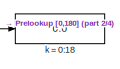
[diagram: Wave glider/Wave loads - part 1/4, top center region]
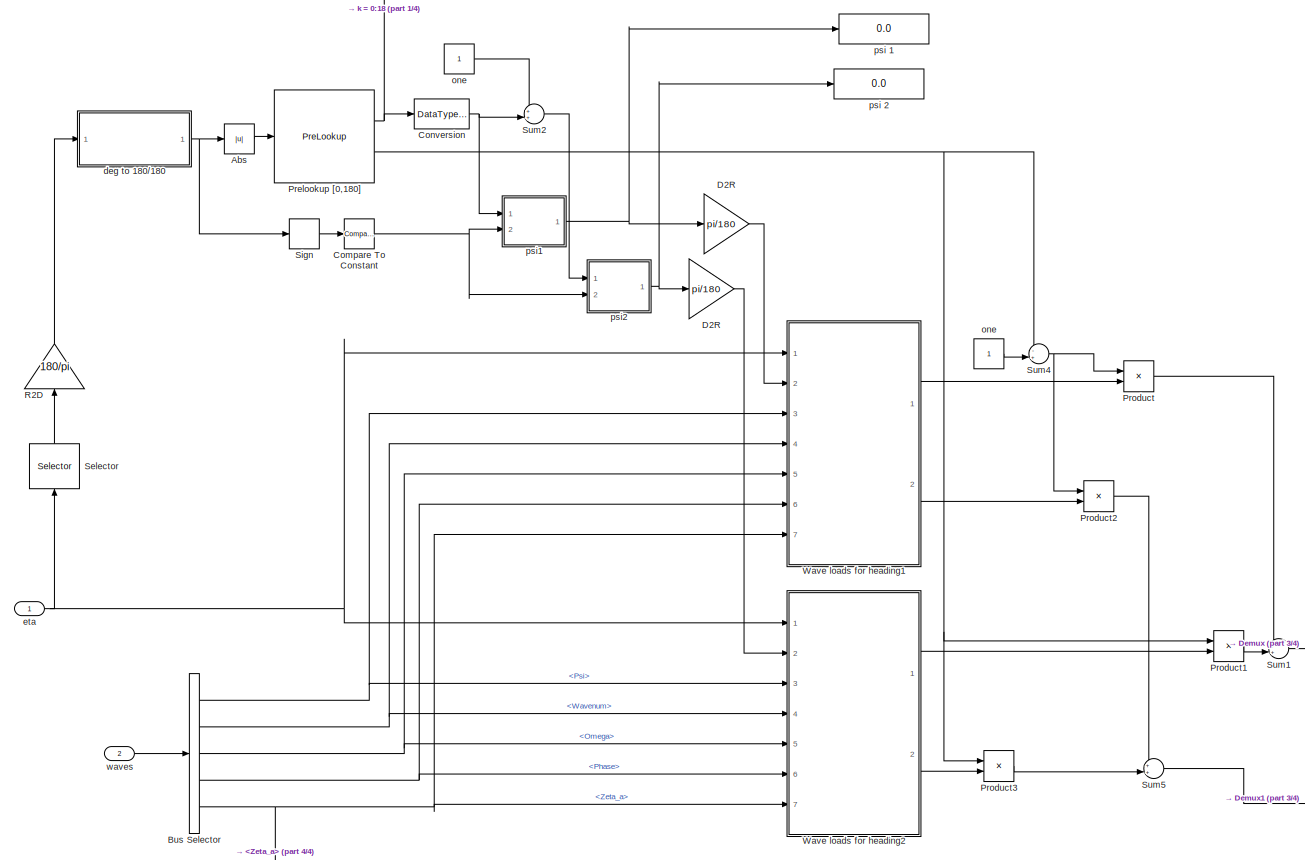
[diagram: Wave glider/Wave loads - part 2/4, most of the canvas]
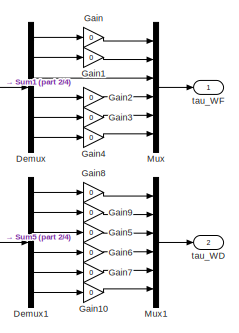
[diagram: Wave glider/Wave loads - part 3/4, bottom right region]
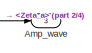
[diagram: Wave glider/Wave loads - part 4/4, bottom left region]
BLOCK [SubSystem] Wave glider/Wave loads
  Ports = [2, 3]
  RequestExecContextInheritance = off
  Variant = off
BLOCK [Abs] Wave glider/Wave loads/Abs
BLOCK [Outport] Wave glider/Wave loads/Amp_wave
  IconDisplay = Port number
  Port = 3
BLOCK [BusSelector] Wave glider/Wave loads/Bus Selector
  OutputSignals = Psi,Wavenum,Omega,Phase,Zeta_a
  Ports = [1, 5]
BLOCK [Reference] Wave glider/Wave loads/Compare To Constant  REF=simulink/Logic and Bit
Operations/Compare
To Constant
  Ports = [1, 1]
  SourceBlock = simulink/Logic and Bit\nOperations/Compare\nTo Constant
  SourceType = Compare To Constant
BLOCK [DataTypeConversion] Wave glider/Wave loads/Conversion
  OutDataTypeStr = double
  RndMeth = Floor
  SaturateOnIntegerOverflow = off
BLOCK [Gain] Wave glider/Wave loads/D2R
  Gain = pi/180
  OutDataTypeStr = Inherit: Inherit via internal rule
  ParamDataTypeStr = Inherit: Inherit via internal rule
  SaturateOnIntegerOverflow = off
BLOCK [Gain] Wave glider/Wave loads/D2R 
  Gain = pi/180
  OutDataTypeStr = Inherit: Inherit via internal rule
  ParamDataTypeStr = Inherit: Inherit via internal rule
  SaturateOnIntegerOverflow = off
BLOCK [Demux] Wave glider/Wave loads/Demux
  DisplayOption = bar
  Outputs = 6
  Ports = [1, 6]
BLOCK [Demux] Wave glider/Wave loads/Demux1
  DisplayOption = bar
  Outputs = 6
  Ports = [1, 6]
BLOCK [Gain] Wave glider/Wave loads/Gain
  Gain = 0
  OutDataTypeStr = Inherit: Inherit via internal rule
  ParamDataTypeStr = Inherit: Inherit via internal rule
  SaturateOnIntegerOverflow = off
BLOCK [Gain] Wave glider/Wave loads/Gain1
  Gain = 0
  OutDataTypeStr = Inherit: Inherit via internal rule
  ParamDataTypeStr = Inherit: Inherit via internal rule
  SaturateOnIntegerOverflow = off
BLOCK [Gain] Wave glider/Wave loads/Gain10
  Gain = 0
  OutDataTypeStr = Inherit: Inherit via internal rule
  ParamDataTypeStr = Inherit: Inherit via internal rule
  SaturateOnIntegerOverflow = off
BLOCK [Gain] Wave glider/Wave loads/Gain2
  Gain = 0
  OutDataTypeStr = Inherit: Inherit via internal rule
  ParamDataTypeStr = Inherit: Inherit via internal rule
  SaturateOnIntegerOverflow = off
BLOCK [Gain] Wave glider/Wave loads/Gain3
  Gain = 0
  OutDataTypeStr = Inherit: Inherit via internal rule
  ParamDataTypeStr = Inherit: Inherit via internal rule
  SaturateOnIntegerOverflow = off
BLOCK [Gain] Wave glider/Wave loads/Gain4
  Gain = 0
  OutDataTypeStr = Inherit: Inherit via internal rule
  ParamDataTypeStr = Inherit: Inherit via internal rule
  SaturateOnIntegerOverflow = off
BLOCK [Gain] Wave glider/Wave loads/Gain5
  Gain = 0
  OutDataTypeStr = Inherit: Inherit via internal rule
  ParamDataTypeStr = Inherit: Inherit via internal rule
  SaturateOnIntegerOverflow = off
BLOCK [Gain] Wave glider/Wave loads/Gain6
  Gain = 0
  OutDataTypeStr = Inherit: Inherit via internal rule
  ParamDataTypeStr = Inherit: Inherit via internal rule
  SaturateOnIntegerOverflow = off
BLOCK [Gain] Wave glider/Wave loads/Gain7
  Gain = 0
  OutDataTypeStr = Inherit: Inherit via internal rule
  ParamDataTypeStr = Inherit: Inherit via internal rule
  SaturateOnIntegerOverflow = off
BLOCK [Gain] Wave glider/Wave loads/Gain8
  Gain = 0
  OutDataTypeStr = Inherit: Inherit via internal rule
  ParamDataTypeStr = Inherit: Inherit via internal rule
  SaturateOnIntegerOverflow = off
BLOCK [Gain] Wave glider/Wave loads/Gain9
  Gain = 0
  OutDataTypeStr = Inherit: Inherit via internal rule
  ParamDataTypeStr = Inherit: Inherit via internal rule
  SaturateOnIntegerOverflow = off
BLOCK [Mux] Wave glider/Wave loads/Mux
  DisplayOption = bar
  Inputs = 6
  Ports = [6, 1]
BLOCK [Mux] Wave glider/Wave loads/Mux1
  DisplayOption = bar
  Inputs = 6
  Ports = [6, 1]
BLOCK [PreLookup] Wave glider/Wave loads/Prelookup [0,180]
  BeginIndexSearchUsingPreviousIndexResult = on
  BreakpointsData = [0:10:180]
  IndexSearchMethod = Evenly spaced points
  InputPortMap = u0
  Ports = [1, 2]
BLOCK [Product] Wave glider/Wave loads/Product
  InputSameDT = off
  OutDataTypeStr = Inherit: Inherit via internal rule
  Ports = [2, 1]
  SaturateOnIntegerOverflow = off
BLOCK [Product] Wave glider/Wave loads/Product1
  InputSameDT = off
  OutDataTypeStr = Inherit: Inherit via internal rule
  Ports = [2, 1]
  SaturateOnIntegerOverflow = off
BLOCK [Product] Wave glider/Wave loads/Product2
  InputSameDT = off
  OutDataTypeStr = Inherit: Inherit via internal rule
  Ports = [2, 1]
  SaturateOnIntegerOverflow = off
BLOCK [Product] Wave glider/Wave loads/Product3
  InputSameDT = off
  OutDataTypeStr = Inherit: Inherit via internal rule
  Ports = [2, 1]
  SaturateOnIntegerOverflow = off
BLOCK [Gain] Wave glider/Wave loads/R2D
  Gain = 180/pi
  OutDataTypeStr = Inherit: Inherit via internal rule
  ParamDataTypeStr = Inherit: Inherit via internal rule
  SaturateOnIntegerOverflow = off
BLOCK [Selector] Wave glider/Wave loads/Selector
  IndexOptions = Index vector (dialog)
  Indices = [6]
  InputPortWidth = 6
  OutputSizes = 1
  Ports = [1, 1]
BLOCK [Signum] Wave glider/Wave loads/Sign
BLOCK [Sum] Wave glider/Wave loads/Sum1
  IconShape = round
  InputSameDT = off
  Inputs = ++|
  OutDataTypeStr = Inherit: Inherit via internal rule
  Ports = [2, 1]
  SaturateOnIntegerOverflow = off
BLOCK [Sum] Wave glider/Wave loads/Sum2
  IconShape = round
  InputSameDT = off
  Inputs = ++|
  OutDataTypeStr = Inherit: Inherit via internal rule
  Ports = [2, 1]
  SaturateOnIntegerOverflow = off
BLOCK [Sum] Wave glider/Wave loads/Sum4
  IconShape = round
  InputSameDT = off
  Inputs = -+|
  OutDataTypeStr = Inherit: Inherit via internal rule
  Ports = [2, 1]
  SaturateOnIntegerOverflow = off
BLOCK [Sum] Wave glider/Wave loads/Sum5
  IconShape = round
  InputSameDT = off
  Inputs = ++|
  OutDataTypeStr = Inherit: Inherit via internal rule
  Ports = [2, 1]
  SaturateOnIntegerOverflow = off
BLOCK [SubSystem] Wave glider/Wave loads/Wave loads for heading1
  Ports = [7, 2]
  RequestExecContextInheritance = off
  Variant = off
BLOCK [Clock] Wave glider/Wave loads/Wave loads for heading1/Clock
BLOCK [Inport] Wave glider/Wave loads/Wave loads for heading1/Omega
  IconDisplay = Port number
  Port = 5
BLOCK [Inport] Wave glider/Wave loads/Wave loads for heading1/Phase
  IconDisplay = Port number
  Port = 6
BLOCK [SubSystem] Wave glider/Wave loads/Wave loads for heading1/Position phase
  Ports = [3, 1]
  RequestExecContextInheritance = off
  Variant = off
BLOCK [Product] Wave glider/Wave loads/Wave loads for heading1/Position phase/Product2
  InputSameDT = off
  Inputs = **
  Ports = [2, 1]
  RndMeth = Floor
BLOCK [Product] Wave glider/Wave loads/Wave loads for heading1/Position phase/Product6
  InputSameDT = off
  Inputs = **
  Ports = [2, 1]
  RndMeth = Floor
BLOCK [Product] Wave glider/Wave loads/Wave loads for heading1/Position phase/Product7
  InputSameDT = off
  Inputs = **
  Ports = [2, 1]
  RndMeth = Floor
BLOCK [Sum] Wave glider/Wave loads/Wave loads for heading1/Position phase/Sum5
  IconShape = round
  InputSameDT = off
  OutDataTypeStr = Inherit: Inherit via internal rule
  Ports = [2, 1]
BLOCK [Trigonometry] Wave glider/Wave loads/Wave loads for heading1/Position phase/cos
  Operator = cos
  Ports = [1, 1]
BLOCK [Inport] Wave glider/Wave loads/Wave loads for heading1/Position phase/eta LF
  IconDisplay = Port number
  Port = 3
BLOCK [Outport] Wave glider/Wave loads/Wave loads for heading1/Position phase/pos phase
  IconDisplay = Port number
BLOCK [Inport] Wave glider/Wave loads/Wave loads for heading1/Position phase/psi wave
  IconDisplay = Port number
BLOCK [Trigonometry] Wave glider/Wave loads/Wave loads for heading1/Position phase/sin
  Ports = [1, 1]
BLOCK [Inport] Wave glider/Wave loads/Wave loads for heading1/Position phase/wavenum
  IconDisplay = Port number
  Port = 2
BLOCK [Selector] Wave glider/Wave loads/Wave loads for heading1/Position phase/x-position
  IndexOptions = Index vector (dialog)
  Indices = 1
  OutputSizes = 1
  Ports = [1, 1]
BLOCK [Selector] Wave glider/Wave loads/Wave loads for heading1/Position phase/y-position
  IndexOptions = Index vector (dialog)
  Indices = 2
  InputPortWidth = 6
  OutputSizes = 1
  Ports = [1, 1]
BLOCK [Product] Wave glider/Wave loads/Wave loads for heading1/Product1
  InputSameDT = off
  Inputs = **
  Ports = [2, 1]
  RndMeth = Floor
BLOCK [Sum] Wave glider/Wave loads/Wave loads for heading1/Sum
  IconShape = round
  InputSameDT = off
  Inputs = -++
  OutDataTypeStr = Inherit: Inherit via internal rule
  Ports = [3, 1]
BLOCK [Sum] Wave glider/Wave loads/Wave loads for heading1/Sum1
  IconShape = round
  InputSameDT = off
  Inputs = -+|
  OutDataTypeStr = Inherit: Inherit via internal rule
  Ports = [2, 1]
  SaturateOnIntegerOverflow = off
BLOCK [SubSystem] Wave glider/Wave loads/Wave loads for heading1/Wave component loop
  Ports = [5, 2]
  RequestExecContextInheritance = off
  TreatAsAtomicUnit = on
  Variant = off
BLOCK [Trigonometry] Wave glider/Wave loads/Wave loads for heading1/Wave component loop/                
  Ports = [1, 1]
BLOCK [LookupNDDirect] Wave glider/Wave loads/Wave loads for heading1/Wave component loop/Direct Lookup Table (n-D) Beta
  NumberOfTableDimensions = 1
  Ports = [1, 1]
  Table = float.headings
BLOCK [ForIterator] Wave glider/Wave loads/Wave loads for heading1/Wave component loop/For Iterator
  IterationSource = external
  IterationVariableDataType = double
  Ports = [1, 1]
  ResetStates = reset
BLOCK [SubSystem] Wave glider/Wave loads/Wave loads for heading1/Wave component loop/Force RAO tables
  Ports = [2, 2]
  RequestExecContextInheritance = off
  Variant = off
BLOCK [Lookup_n-D] Wave glider/Wave loads/Wave loads for heading1/Wave component loop/Force RAO tables/Lookup Table (n-D) Amp1
  BeginIndexSearchUsingPreviousIndexResult = on
  BreakpointsForDimension1 = float.forceRAO.w
  BreakpointsForDimension2 = float.headings
  BreakpointsForDimension3 = RAO_Vel
  DiagnosticForOutOfRangeInput = Warning
  ExtrapMethod = Clip
  IndexSearchMethod = Linear search
  InternalRulePriority = Speed
  Ports = [2, 1]
  RndMeth = Simplest
  Table = float.forceRAO.amp{1}
BLOCK [Lookup_n-D] Wave glider/Wave loads/Wave loads for heading1/Wave component loop/Force RAO tables/Lookup Table (n-D) Amp2
  BeginIndexSearchUsingPreviousIndexResult = on
  BreakpointsForDimension1 = float.forceRAO.w
  BreakpointsForDimension2 = float.headings
  BreakpointsForDimension3 = RAO_Vel
  DiagnosticForOutOfRangeInput = Warning
  ExtrapMethod = Clip
  IndexSearchMethod = Linear search
  InternalRulePriority = Speed
  Ports = [2, 1]
  RndMeth = Simplest
  Table = float.forceRAO.amp{2}
BLOCK [Lookup_n-D] Wave glider/Wave loads/Wave loads for heading1/Wave component loop/Force RAO tables/Lookup Table (n-D) Amp3
  BeginIndexSearchUsingPreviousIndexResult = on
  BreakpointsForDimension1 = float.forceRAO.w
  BreakpointsForDimension2 = float.headings
  BreakpointsForDimension3 = RAO_Vel
  DiagnosticForOutOfRangeInput = Warning
  ExtrapMethod = Clip
  IndexSearchMethod = Linear search
  InternalRulePriority = Speed
  Ports = [2, 1]
  RndMeth = Simplest
  Table = float.forceRAO.amp{3}
BLOCK [Lookup_n-D] Wave glider/Wave loads/Wave loads for heading1/Wave component loop/Force RAO tables/Lookup Table (n-D) Amp4
  BeginIndexSearchUsingPreviousIndexResult = on
  BreakpointsForDimension1 = float.forceRAO.w
  BreakpointsForDimension2 = float.headings
  BreakpointsForDimension3 = RAO_Vel
  DiagnosticForOutOfRangeInput = Warning
  ExtrapMethod = Clip
  IndexSearchMethod = Linear search
  InternalRulePriority = Speed
  Ports = [2, 1]
  RndMeth = Simplest
  Table = float.forceRAO.amp{4}
BLOCK [Lookup_n-D] Wave glider/Wave loads/Wave loads for heading1/Wave component loop/Force RAO tables/Lookup Table (n-D) Amp5
  BeginIndexSearchUsingPreviousIndexResult = on
  BreakpointsForDimension1 = float.forceRAO.w
  BreakpointsForDimension2 = float.headings
  BreakpointsForDimension3 = RAO_Vel
  DiagnosticForOutOfRangeInput = Warning
  ExtrapMethod = Clip
  IndexSearchMethod = Linear search
  InternalRulePriority = Speed
  Ports = [2, 1]
  RndMeth = Simplest
  Table = float.forceRAO.amp{5}
BLOCK [Lookup_n-D] Wave glider/Wave loads/Wave loads for heading1/Wave component loop/Force RAO tables/Lookup Table (n-D) Amp6
  BeginIndexSearchUsingPreviousIndexResult = on
  BreakpointsForDimension1 = float.forceRAO.w
  BreakpointsForDimension2 = float.headings
  BreakpointsForDimension3 = RAO_Vel
  DiagnosticForOutOfRangeInput = Warning
  ExtrapMethod = Clip
  IndexSearchMethod = Linear search
  InternalRulePriority = Speed
  Ports = [2, 1]
  RndMeth = Simplest
  Table = float.forceRAO.amp{6}
BLOCK [Lookup_n-D] Wave glider/Wave loads/Wave loads for heading1/Wave component loop/Force RAO tables/Lookup Table (n-D) Phase
  BeginIndexSearchUsingPreviousIndexResult = on
  BreakpointsForDimension1 = float.forceRAO.w
  BreakpointsForDimension2 = float.headings
  BreakpointsForDimension3 = RAO_Vel
  DiagnosticForOutOfRangeInput = Warning
  ExtrapMethod = Clip
  IndexSearchMethod = Linear search
  InternalRulePriority = Speed
  Ports = [2, 1]
  RndMeth = Simplest
  Table = float.forceRAO.phase{3}
BLOCK [Lookup_n-D] Wave glider/Wave loads/Wave loads for heading1/Wave component loop/Force RAO tables/Lookup Table (n-D) Phase1
  BeginIndexSearchUsingPreviousIndexResult = on
  BreakpointsForDimension1 = float.forceRAO.w
  BreakpointsForDimension2 = float.headings
  BreakpointsForDimension3 = RAO_Vel
  DiagnosticForOutOfRangeInput = Warning
  ExtrapMethod = Clip
  IndexSearchMethod = Linear search
  InternalRulePriority = Speed
  Ports = [2, 1]
  RndMeth = Simplest
  Table = float.forceRAO.phase{1}
BLOCK [Lookup_n-D] Wave glider/Wave loads/Wave loads for heading1/Wave component loop/Force RAO tables/Lookup Table (n-D) Phase2
  BeginIndexSearchUsingPreviousIndexResult = on
  BreakpointsForDimension1 = float.forceRAO.w
  BreakpointsForDimension2 = float.headings
  BreakpointsForDimension3 = RAO_Vel
  DiagnosticForOutOfRangeInput = Warning
  ExtrapMethod = Clip
  IndexSearchMethod = Linear search
  InternalRulePriority = Speed
  Ports = [2, 1]
  RndMeth = Simplest
  Table = float.forceRAO.phase{2}
BLOCK [Lookup_n-D] Wave glider/Wave loads/Wave loads for heading1/Wave component loop/Force RAO tables/Lookup Table (n-D) Phase4
  BeginIndexSearchUsingPreviousIndexResult = on
  BreakpointsForDimension1 = float.forceRAO.w
  BreakpointsForDimension2 = float.headings
  BreakpointsForDimension3 = RAO_Vel
  DiagnosticForOutOfRangeInput = Warning
  ExtrapMethod = Clip
  IndexSearchMethod = Linear search
  InternalRulePriority = Speed
  Ports = [2, 1]
  RndMeth = Simplest
  Table = float.forceRAO.phase{4}
BLOCK [Lookup_n-D] Wave glider/Wave loads/Wave loads for heading1/Wave component loop/Force RAO tables/Lookup Table (n-D) Phase5
  BeginIndexSearchUsingPreviousIndexResult = on
  BreakpointsForDimension1 = float.forceRAO.w
  BreakpointsForDimension2 = float.headings
  BreakpointsForDimension3 = RAO_Vel
  DiagnosticForOutOfRangeInput = Warning
  ExtrapMethod = Clip
  IndexSearchMethod = Linear search
  InternalRulePriority = Speed
  Ports = [2, 1]
  RndMeth = Simplest
  Table = float.forceRAO.phase{5}
BLOCK [Lookup_n-D] Wave glider/Wave loads/Wave loads for heading1/Wave component loop/Force RAO tables/Lookup Table (n-D) Phase6
  BeginIndexSearchUsingPreviousIndexResult = on
  BreakpointsForDimension1 = float.forceRAO.w
  BreakpointsForDimension2 = float.headings
  BreakpointsForDimension3 = RAO_Vel
  DiagnosticForOutOfRangeInput = Warning
  ExtrapMethod = Clip
  IndexSearchMethod = Linear search
  InternalRulePriority = Speed
  Ports = [2, 1]
  RndMeth = Simplest
  Table = float.forceRAO.phase{6}
BLOCK [Mux] Wave glider/Wave loads/Wave loads for heading1/Wave component loop/Force RAO tables/Mux1
  DisplayOption = bar
  Inputs = 6
  Ports = [6, 1]
BLOCK [Mux] Wave glider/Wave loads/Wave loads for heading1/Wave component loop/Force RAO tables/Mux2
  DisplayOption = bar
  Inputs = 6
  Ports = [6, 1]
BLOCK [Outport] Wave glider/Wave loads/Wave loads for heading1/Wave component loop/Force RAO tables/amp
  IconDisplay = Port number
BLOCK [Inport] Wave glider/Wave loads/Wave loads for heading1/Wave component loop/Force RAO tables/beta
  IconDisplay = Port number
BLOCK [Outport] Wave glider/Wave loads/Wave loads for heading1/Wave component loop/Force RAO tables/phase
  IconDisplay = Port number
  Port = 2
BLOCK [Inport] Wave glider/Wave loads/Wave loads for heading1/Wave component loop/Force RAO tables/w
  IconDisplay = Port number
  Port = 2
BLOCK [Memory] Wave glider/Wave loads/Wave loads for heading1/Wave component loop/Memory1
  InheritSampleTime = on
  X0 = [0 0 0 0 0 0]'
BLOCK [Memory] Wave glider/Wave loads/Wave loads for heading1/Wave component loop/Memory2
  InheritSampleTime = on
  X0 = [0 0 0 0 0 0]'
BLOCK [Inport] Wave glider/Wave loads/Wave loads for heading1/Wave component loop/Omega
  IconDisplay = Port number
  Port = 3
BLOCK [Inport] Wave glider/Wave loads/Wave loads for heading1/Wave component loop/Phase_tot
  IconDisplay = Port number
  Port = 4
BLOCK [PreLookup] Wave glider/Wave loads/Wave loads for heading1/Wave component loop/Prelookup1
  BeginIndexSearchUsingPreviousIndexResult = on
  BreakpointsData = float.headings
  IndexSearchMethod = Linear search
  InputPortMap = u0
  OutputOnlyTheIndex = on
  Ports = [1, 1]
BLOCK [Product] Wave glider/Wave loads/Wave loads for heading1/Wave component loop/Product1
  InputSameDT = off
  Ports = [2, 1]
  RndMeth = Floor
BLOCK [Product] Wave glider/Wave loads/Wave loads for heading1/Wave component loop/Product3
  InputSameDT = off
  Inputs = 3
  Ports = [3, 1]
  RndMeth = Floor
BLOCK [Product] Wave glider/Wave loads/Wave loads for heading1/Wave component loop/Product4
  InputSameDT = off
  Ports = [2, 1]
  RndMeth = Floor
BLOCK [Inport] Wave glider/Wave loads/Wave loads for heading1/Wave component loop/Psi_r
  IconDisplay = Port number
  Port = 2
BLOCK [Selector] Wave glider/Wave loads/Wave loads for heading1/Wave component loop/Selector2
  IndexOptions = Index vector (port)
  Indices = [1 3]
  OutputSizes = 1
  Ports = [2, 1]
BLOCK [Selector] Wave glider/Wave loads/Wave loads for heading1/Wave component loop/Selector3
  IndexOptions = Index vector (port)
  Indices = [1 3]
  OutputSizes = 1
  Ports = [2, 1]
BLOCK [Selector] Wave glider/Wave loads/Wave loads for heading1/Wave component loop/Selector4
  IndexOptions = Index vector (port)
  Indices = [1 3]
  OutputSizes = 1
  Ports = [2, 1]
BLOCK [Selector] Wave glider/Wave loads/Wave loads for heading1/Wave component loop/Selector5
  IndexOptions = Index vector (port)
  Indices = [1 3]
  OutputSizes = 1
  Ports = [2, 1]
BLOCK [Sum] Wave glider/Wave loads/Wave loads for heading1/Wave component loop/Sum1
  IconShape = round
  InputSameDT = off
  Inputs = ++|
  OutDataTypeStr = Inherit: Inherit via internal rule
  Ports = [2, 1]
BLOCK [Sum] Wave glider/Wave loads/Wave loads for heading1/Wave component loop/Sum4
  IconShape = round
  InputSameDT = off
  Inputs = ++|
  OutDataTypeStr = Inherit: Inherit via internal rule
  Ports = [2, 1]
BLOCK [Sum] Wave glider/Wave loads/Wave loads for heading1/Wave component loop/Sum5
  IconShape = round
  InputSameDT = off
  Inputs = ++|
  OutDataTypeStr = Inherit: Inherit via internal rule
  Ports = [2, 1]
BLOCK [SubSystem] Wave glider/Wave loads/Wave loads for heading1/Wave component loop/WD RAO tables
  Ports = [2, 1]
  RequestExecContextInheritance = off
  Variant = off
BLOCK [Constant] Wave glider/Wave loads/Wave loads for heading1/Wave component loop/WD RAO tables/Constant
  Value = 0
BLOCK [Lookup_n-D] Wave glider/Wave loads/Wave loads for heading1/Wave component loop/WD RAO tables/Lookup Table (n-D) Wavedrift 1
  BeginIndexSearchUsingPreviousIndexResult = on
  BreakpointsForDimension1 = float.driftfrc.w
  BreakpointsForDimension2 = float.headings
  BreakpointsForDimension3 = RAO_Vel
  DiagnosticForOutOfRangeInput = Warning
  ExtrapMethod = Clip
  IndexSearchMethod = Linear search
  InternalRulePriority = Speed
  Ports = [2, 1]
  RndMeth = Simplest
  Table = float.driftfrc.amp{1}
BLOCK [Lookup_n-D] Wave glider/Wave loads/Wave loads for heading1/Wave component loop/WD RAO tables/Lookup Table (n-D) Wavedrift 2
  BeginIndexSearchUsingPreviousIndexResult = on
  BreakpointsForDimension1 = float.driftfrc.w
  BreakpointsForDimension2 = float.headings
  BreakpointsForDimension3 = RAO_Vel
  DiagnosticForOutOfRangeInput = Warning
  ExtrapMethod = Clip
  IndexSearchMethod = Linear search
  InternalRulePriority = Speed
  Ports = [2, 1]
  RndMeth = Simplest
  Table = float.driftfrc.amp{2}
BLOCK [Lookup_n-D] Wave glider/Wave loads/Wave loads for heading1/Wave component loop/WD RAO tables/Lookup Table (n-D) Wavedrift 3
  BeginIndexSearchUsingPreviousIndexResult = on
  BreakpointsForDimension1 = float.driftfrc.w
  BreakpointsForDimension2 = float.headings
  BreakpointsForDimension3 = RAO_Vel
  DiagnosticForOutOfRangeInput = Warning
  ExtrapMethod = Clip
  IndexSearchMethod = Linear search
  InternalRulePriority = Speed
  Ports = [2, 1]
  RndMeth = Simplest
  Table = float.driftfrc.amp{3}
BLOCK [Mux] Wave glider/Wave loads/Wave loads for heading1/Wave component loop/WD RAO tables/Mux1
  DisplayOption = bar
  Inputs = 6
  Ports = [6, 1]
BLOCK [Outport] Wave glider/Wave loads/Wave loads for heading1/Wave component loop/WD RAO tables/amp
  IconDisplay = Port number
BLOCK [Inport] Wave glider/Wave loads/Wave loads for heading1/Wave component loop/WD RAO tables/beta
  IconDisplay = Port number
BLOCK [Inport] Wave glider/Wave loads/Wave loads for heading1/Wave component loop/WD RAO tables/w
  IconDisplay = Port number
  Port = 2
BLOCK [Inport] Wave glider/Wave loads/Wave loads for heading1/Wave component loop/Zeta_a
  IconDisplay = Port number
  Port = 5
BLOCK [Reference] Wave glider/Wave loads/Wave loads for heading1/Wave component loop/[-inf inf] to [-pi pi]  REF=marine_gnc/Utilities/Math Operations/[-inf inf] to [-pi pi]  (lib defined in mdl_10d96c221ba8, mdl_45f1105420c6)
  Ports = [1, 1]
  SourceBlock = marine_gnc/Utilities/Math Operations/[-inf inf] to [-pi pi]
  SourceType = [-inf inf] to [-pi pi]
BLOCK [Inport] Wave glider/Wave loads/Wave loads for heading1/Wave component loop/number of iterations
  IconDisplay = Port number
BLOCK [Outport] Wave glider/Wave loads/Wave loads for heading1/Wave component loop/tau_WD
  IconDisplay = Port number
  Port = 2
BLOCK [Outport] Wave glider/Wave loads/Wave loads for heading1/Wave component loop/tau_WF
  IconDisplay = Port number
BLOCK [Width] Wave glider/Wave loads/Wave loads for heading1/Width
  DataType = int32
BLOCK [Inport] Wave glider/Wave loads/Wave loads for heading1/Zeta_a
  IconDisplay = Port number
  Port = 7
BLOCK [Inport] Wave glider/Wave loads/Wave loads for heading1/eta
  IconDisplay = Port number
BLOCK [Inport] Wave glider/Wave loads/Wave loads for heading1/psi
  IconDisplay = Port number
  Port = 2
BLOCK [Inport] Wave glider/Wave loads/Wave loads for heading1/psi_wave
  IconDisplay = Port number
  Port = 3
BLOCK [Outport] Wave glider/Wave loads/Wave loads for heading1/tau_WD
  IconDisplay = Port number
  Port = 2
BLOCK [Outport] Wave glider/Wave loads/Wave loads for heading1/tau_WF
  IconDisplay = Port number
BLOCK [Inport] Wave glider/Wave loads/Wave loads for heading1/wavenum
  IconDisplay = Port number
  Port = 4
BLOCK [SubSystem] Wave glider/Wave loads/Wave loads for heading2
  Ports = [7, 2]
  RequestExecContextInheritance = off
  Variant = off
BLOCK [Clock] Wave glider/Wave loads/Wave loads for heading2/Clock
BLOCK [Inport] Wave glider/Wave loads/Wave loads for heading2/Omega
  IconDisplay = Port number
  Port = 5
BLOCK [Inport] Wave glider/Wave loads/Wave loads for heading2/Phase
  IconDisplay = Port number
  Port = 6
BLOCK [SubSystem] Wave glider/Wave loads/Wave loads for heading2/Position phase
  Ports = [3, 1]
  RequestExecContextInheritance = off
  Variant = off
BLOCK [Product] Wave glider/Wave loads/Wave loads for heading2/Position phase/Product2
  InputSameDT = off
  Inputs = **
  Ports = [2, 1]
  RndMeth = Floor
BLOCK [Product] Wave glider/Wave loads/Wave loads for heading2/Position phase/Product6
  InputSameDT = off
  Inputs = **
  Ports = [2, 1]
  RndMeth = Floor
BLOCK [Product] Wave glider/Wave loads/Wave loads for heading2/Position phase/Product7
  InputSameDT = off
  Inputs = **
  Ports = [2, 1]
  RndMeth = Floor
BLOCK [Sum] Wave glider/Wave loads/Wave loads for heading2/Position phase/Sum5
  IconShape = round
  InputSameDT = off
  OutDataTypeStr = Inherit: Inherit via internal rule
  Ports = [2, 1]
BLOCK [Trigonometry] Wave glider/Wave loads/Wave loads for heading2/Position phase/cos
  Operator = cos
  Ports = [1, 1]
BLOCK [Inport] Wave glider/Wave loads/Wave loads for heading2/Position phase/eta LF
  IconDisplay = Port number
  Port = 3
BLOCK [Outport] Wave glider/Wave loads/Wave loads for heading2/Position phase/pos phase
  IconDisplay = Port number
BLOCK [Inport] Wave glider/Wave loads/Wave loads for heading2/Position phase/psi wave
  IconDisplay = Port number
BLOCK [Trigonometry] Wave glider/Wave loads/Wave loads for heading2/Position phase/sin
  Ports = [1, 1]
BLOCK [Inport] Wave glider/Wave loads/Wave loads for heading2/Position phase/wavenum
  IconDisplay = Port number
  Port = 2
BLOCK [Selector] Wave glider/Wave loads/Wave loads for heading2/Position phase/x-position
  IndexOptions = Index vector (dialog)
  Indices = 1
  OutputSizes = 1
  Ports = [1, 1]
BLOCK [Selector] Wave glider/Wave loads/Wave loads for heading2/Position phase/y-position
  IndexOptions = Index vector (dialog)
  Indices = 2
  InputPortWidth = 6
  OutputSizes = 1
  Ports = [1, 1]
BLOCK [Product] Wave glider/Wave loads/Wave loads for heading2/Product1
  InputSameDT = off
  Inputs = **
  Ports = [2, 1]
  RndMeth = Floor
BLOCK [Sum] Wave glider/Wave loads/Wave loads for heading2/Sum
  IconShape = round
  InputSameDT = off
  Inputs = -++
  OutDataTypeStr = Inherit: Inherit via internal rule
  Ports = [3, 1]
BLOCK [Sum] Wave glider/Wave loads/Wave loads for heading2/Sum1
  IconShape = round
  InputSameDT = off
  Inputs = -+|
  OutDataTypeStr = Inherit: Inherit via internal rule
  Ports = [2, 1]
  SaturateOnIntegerOverflow = off
BLOCK [SubSystem] Wave glider/Wave loads/Wave loads for heading2/Wave component loop
  Ports = [5, 2]
  RequestExecContextInheritance = off
  TreatAsAtomicUnit = on
  Variant = off
BLOCK [Trigonometry] Wave glider/Wave loads/Wave loads for heading2/Wave component loop/                
  Ports = [1, 1]
BLOCK [LookupNDDirect] Wave glider/Wave loads/Wave loads for heading2/Wave component loop/Direct Lookup Table (n-D) Beta
  NumberOfTableDimensions = 1
  Ports = [1, 1]
  Table = float.headings
BLOCK [ForIterator] Wave glider/Wave loads/Wave loads for heading2/Wave component loop/For Iterator
  IterationSource = external
  IterationVariableDataType = double
  Ports = [1, 1]
  ResetStates = reset
BLOCK [SubSystem] Wave glider/Wave loads/Wave loads for heading2/Wave component loop/Force RAO tables
  Ports = [2, 2]
  RequestExecContextInheritance = off
  Variant = off
BLOCK [Lookup_n-D] Wave glider/Wave loads/Wave loads for heading2/Wave component loop/Force RAO tables/Lookup Table (n-D) Amp1
  BeginIndexSearchUsingPreviousIndexResult = on
  BreakpointsForDimension1 = float.forceRAO.w
  BreakpointsForDimension2 = float.headings
  BreakpointsForDimension3 = RAO_Vel
  DiagnosticForOutOfRangeInput = Warning
  ExtrapMethod = Clip
  IndexSearchMethod = Linear search
  InternalRulePriority = Speed
  Ports = [2, 1]
  RndMeth = Simplest
  Table = float.forceRAO.amp{1}
BLOCK [Lookup_n-D] Wave glider/Wave loads/Wave loads for heading2/Wave component loop/Force RAO tables/Lookup Table (n-D) Amp2
  BeginIndexSearchUsingPreviousIndexResult = on
  BreakpointsForDimension1 = float.forceRAO.w
  BreakpointsForDimension2 = float.headings
  BreakpointsForDimension3 = RAO_Vel
  DiagnosticForOutOfRangeInput = Warning
  ExtrapMethod = Clip
  IndexSearchMethod = Linear search
  InternalRulePriority = Speed
  Ports = [2, 1]
  RndMeth = Simplest
  Table = float.forceRAO.amp{2}
BLOCK [Lookup_n-D] Wave glider/Wave loads/Wave loads for heading2/Wave component loop/Force RAO tables/Lookup Table (n-D) Amp3
  BeginIndexSearchUsingPreviousIndexResult = on
  BreakpointsForDimension1 = float.forceRAO.w
  BreakpointsForDimension2 = float.headings
  BreakpointsForDimension3 = RAO_Vel
  DiagnosticForOutOfRangeInput = Warning
  ExtrapMethod = Clip
  IndexSearchMethod = Linear search
  InternalRulePriority = Speed
  Ports = [2, 1]
  RndMeth = Simplest
  Table = float.forceRAO.amp{3}
BLOCK [Lookup_n-D] Wave glider/Wave loads/Wave loads for heading2/Wave component loop/Force RAO tables/Lookup Table (n-D) Amp4
  BeginIndexSearchUsingPreviousIndexResult = on
  BreakpointsForDimension1 = float.forceRAO.w
  BreakpointsForDimension2 = float.headings
  BreakpointsForDimension3 = RAO_Vel
  DiagnosticForOutOfRangeInput = Warning
  ExtrapMethod = Clip
  IndexSearchMethod = Linear search
  InternalRulePriority = Speed
  Ports = [2, 1]
  RndMeth = Simplest
  Table = float.forceRAO.amp{4}
BLOCK [Lookup_n-D] Wave glider/Wave loads/Wave loads for heading2/Wave component loop/Force RAO tables/Lookup Table (n-D) Amp5
  BeginIndexSearchUsingPreviousIndexResult = on
  BreakpointsForDimension1 = float.forceRAO.w
  BreakpointsForDimension2 = float.headings
  BreakpointsForDimension3 = RAO_Vel
  DiagnosticForOutOfRangeInput = Warning
  ExtrapMethod = Clip
  IndexSearchMethod = Linear search
  InternalRulePriority = Speed
  Ports = [2, 1]
  RndMeth = Simplest
  Table = float.forceRAO.amp{5}
BLOCK [Lookup_n-D] Wave glider/Wave loads/Wave loads for heading2/Wave component loop/Force RAO tables/Lookup Table (n-D) Amp6
  BeginIndexSearchUsingPreviousIndexResult = on
  BreakpointsForDimension1 = float.forceRAO.w
  BreakpointsForDimension2 = float.headings
  BreakpointsForDimension3 = RAO_Vel
  DiagnosticForOutOfRangeInput = Warning
  ExtrapMethod = Clip
  IndexSearchMethod = Linear search
  InternalRulePriority = Speed
  Ports = [2, 1]
  RndMeth = Simplest
  Table = float.forceRAO.amp{6}
BLOCK [Lookup_n-D] Wave glider/Wave loads/Wave loads for heading2/Wave component loop/Force RAO tables/Lookup Table (n-D) Phase
  BeginIndexSearchUsingPreviousIndexResult = on
  BreakpointsForDimension1 = float.forceRAO.w
  BreakpointsForDimension2 = float.headings
  BreakpointsForDimension3 = RAO_Vel
  DiagnosticForOutOfRangeInput = Warning
  ExtrapMethod = Clip
  IndexSearchMethod = Linear search
  InternalRulePriority = Speed
  Ports = [2, 1]
  RndMeth = Simplest
  Table = float.forceRAO.phase{3}
BLOCK [Lookup_n-D] Wave glider/Wave loads/Wave loads for heading2/Wave component loop/Force RAO tables/Lookup Table (n-D) Phase1
  BeginIndexSearchUsingPreviousIndexResult = on
  BreakpointsForDimension1 = float.forceRAO.w
  BreakpointsForDimension2 = float.headings
  BreakpointsForDimension3 = RAO_Vel
  DiagnosticForOutOfRangeInput = Warning
  ExtrapMethod = Clip
  IndexSearchMethod = Linear search
  InternalRulePriority = Speed
  Ports = [2, 1]
  RndMeth = Simplest
  Table = float.forceRAO.phase{1}
BLOCK [Lookup_n-D] Wave glider/Wave loads/Wave loads for heading2/Wave component loop/Force RAO tables/Lookup Table (n-D) Phase2
  BeginIndexSearchUsingPreviousIndexResult = on
  BreakpointsForDimension1 = float.forceRAO.w
  BreakpointsForDimension2 = float.headings
  BreakpointsForDimension3 = RAO_Vel
  DiagnosticForOutOfRangeInput = Warning
  ExtrapMethod = Clip
  IndexSearchMethod = Linear search
  InternalRulePriority = Speed
  Ports = [2, 1]
  RndMeth = Simplest
  Table = float.forceRAO.phase{2}
BLOCK [Lookup_n-D] Wave glider/Wave loads/Wave loads for heading2/Wave component loop/Force RAO tables/Lookup Table (n-D) Phase4
  BeginIndexSearchUsingPreviousIndexResult = on
  BreakpointsForDimension1 = float.forceRAO.w
  BreakpointsForDimension2 = float.headings
  BreakpointsForDimension3 = RAO_Vel
  DiagnosticForOutOfRangeInput = Warning
  ExtrapMethod = Clip
  IndexSearchMethod = Linear search
  InternalRulePriority = Speed
  Ports = [2, 1]
  RndMeth = Simplest
  Table = float.forceRAO.phase{4}
BLOCK [Lookup_n-D] Wave glider/Wave loads/Wave loads for heading2/Wave component loop/Force RAO tables/Lookup Table (n-D) Phase5
  BeginIndexSearchUsingPreviousIndexResult = on
  BreakpointsForDimension1 = float.forceRAO.w
  BreakpointsForDimension2 = float.headings
  BreakpointsForDimension3 = RAO_Vel
  DiagnosticForOutOfRangeInput = Warning
  ExtrapMethod = Clip
  IndexSearchMethod = Linear search
  InternalRulePriority = Speed
  Ports = [2, 1]
  RndMeth = Simplest
  Table = float.forceRAO.phase{5}
BLOCK [Lookup_n-D] Wave glider/Wave loads/Wave loads for heading2/Wave component loop/Force RAO tables/Lookup Table (n-D) Phase6
  BeginIndexSearchUsingPreviousIndexResult = on
  BreakpointsForDimension1 = float.forceRAO.w
  BreakpointsForDimension2 = float.headings
  BreakpointsForDimension3 = RAO_Vel
  DiagnosticForOutOfRangeInput = Warning
  ExtrapMethod = Clip
  IndexSearchMethod = Linear search
  InternalRulePriority = Speed
  Ports = [2, 1]
  RndMeth = Simplest
  Table = float.forceRAO.phase{6}
BLOCK [Mux] Wave glider/Wave loads/Wave loads for heading2/Wave component loop/Force RAO tables/Mux1
  DisplayOption = bar
  Inputs = 6
  Ports = [6, 1]
BLOCK [Mux] Wave glider/Wave loads/Wave loads for heading2/Wave component loop/Force RAO tables/Mux2
  DisplayOption = bar
  Inputs = 6
  Ports = [6, 1]
BLOCK [Outport] Wave glider/Wave loads/Wave loads for heading2/Wave component loop/Force RAO tables/amp
  IconDisplay = Port number
BLOCK [Inport] Wave glider/Wave loads/Wave loads for heading2/Wave component loop/Force RAO tables/beta
  IconDisplay = Port number
BLOCK [Outport] Wave glider/Wave loads/Wave loads for heading2/Wave component loop/Force RAO tables/phase
  IconDisplay = Port number
  Port = 2
BLOCK [Inport] Wave glider/Wave loads/Wave loads for heading2/Wave component loop/Force RAO tables/w
  IconDisplay = Port number
  Port = 2
BLOCK [Memory] Wave glider/Wave loads/Wave loads for heading2/Wave component loop/Memory1
  InheritSampleTime = on
  X0 = [0 0 0 0 0 0]'
BLOCK [Memory] Wave glider/Wave loads/Wave loads for heading2/Wave component loop/Memory2
  InheritSampleTime = on
  X0 = [0 0 0 0 0 0]'
BLOCK [Inport] Wave glider/Wave loads/Wave loads for heading2/Wave component loop/Omega
  IconDisplay = Port number
  Port = 3
BLOCK [Inport] Wave glider/Wave loads/Wave loads for heading2/Wave component loop/Phase_tot
  IconDisplay = Port number
  Port = 4
BLOCK [PreLookup] Wave glider/Wave loads/Wave loads for heading2/Wave component loop/Prelookup1
  BeginIndexSearchUsingPreviousIndexResult = on
  BreakpointsData = float.headings
  IndexSearchMethod = Linear search
  InputPortMap = u0
  OutputOnlyTheIndex = on
  Ports = [1, 1]
BLOCK [Product] Wave glider/Wave loads/Wave loads for heading2/Wave component loop/Product1
  InputSameDT = off
  Ports = [2, 1]
  RndMeth = Floor
BLOCK [Product] Wave glider/Wave loads/Wave loads for heading2/Wave component loop/Product3
  InputSameDT = off
  Inputs = 3
  Ports = [3, 1]
  RndMeth = Floor
BLOCK [Product] Wave glider/Wave loads/Wave loads for heading2/Wave component loop/Product4
  InputSameDT = off
  Ports = [2, 1]
  RndMeth = Floor
BLOCK [Inport] Wave glider/Wave loads/Wave loads for heading2/Wave component loop/Psi_r
  IconDisplay = Port number
  Port = 2
BLOCK [Selector] Wave glider/Wave loads/Wave loads for heading2/Wave component loop/Selector2
  IndexOptions = Index vector (port)
  Indices = [1 3]
  OutputSizes = 1
  Ports = [2, 1]
BLOCK [Selector] Wave glider/Wave loads/Wave loads for heading2/Wave component loop/Selector3
  IndexOptions = Index vector (port)
  Indices = [1 3]
  OutputSizes = 1
  Ports = [2, 1]
BLOCK [Selector] Wave glider/Wave loads/Wave loads for heading2/Wave component loop/Selector4
  IndexOptions = Index vector (port)
  Indices = [1 3]
  OutputSizes = 1
  Ports = [2, 1]
BLOCK [Selector] Wave glider/Wave loads/Wave loads for heading2/Wave component loop/Selector5
  IndexOptions = Index vector (port)
  Indices = [1 3]
  OutputSizes = 1
  Ports = [2, 1]
BLOCK [Sum] Wave glider/Wave loads/Wave loads for heading2/Wave component loop/Sum1
  IconShape = round
  InputSameDT = off
  Inputs = ++|
  OutDataTypeStr = Inherit: Inherit via internal rule
  Ports = [2, 1]
BLOCK [Sum] Wave glider/Wave loads/Wave loads for heading2/Wave component loop/Sum4
  IconShape = round
  InputSameDT = off
  Inputs = ++|
  OutDataTypeStr = Inherit: Inherit via internal rule
  Ports = [2, 1]
BLOCK [Sum] Wave glider/Wave loads/Wave loads for heading2/Wave component loop/Sum5
  IconShape = round
  InputSameDT = off
  Inputs = ++|
  OutDataTypeStr = Inherit: Inherit via internal rule
  Ports = [2, 1]
BLOCK [SubSystem] Wave glider/Wave loads/Wave loads for heading2/Wave component loop/WD RAO tables
  Ports = [2, 1]
  RequestExecContextInheritance = off
  Variant = off
BLOCK [Constant] Wave glider/Wave loads/Wave loads for heading2/Wave component loop/WD RAO tables/Constant
  Value = 0
BLOCK [Lookup_n-D] Wave glider/Wave loads/Wave loads for heading2/Wave component loop/WD RAO tables/Lookup Table (n-D) Wavedrift 1
  BeginIndexSearchUsingPreviousIndexResult = on
  BreakpointsForDimension1 = float.driftfrc.w
  BreakpointsForDimension2 = float.headings
  BreakpointsForDimension3 = RAO_Vel
  DiagnosticForOutOfRangeInput = Warning
  ExtrapMethod = Clip
  IndexSearchMethod = Linear search
  InternalRulePriority = Speed
  Ports = [2, 1]
  RndMeth = Simplest
  Table = float.driftfrc.amp{1}
BLOCK [Lookup_n-D] Wave glider/Wave loads/Wave loads for heading2/Wave component loop/WD RAO tables/Lookup Table (n-D) Wavedrift 2
  BeginIndexSearchUsingPreviousIndexResult = on
  BreakpointsForDimension1 = float.driftfrc.w
  BreakpointsForDimension2 = float.headings
  BreakpointsForDimension3 = RAO_Vel
  DiagnosticForOutOfRangeInput = Warning
  ExtrapMethod = Clip
  IndexSearchMethod = Linear search
  InternalRulePriority = Speed
  Ports = [2, 1]
  RndMeth = Simplest
  Table = float.driftfrc.amp{2}
BLOCK [Lookup_n-D] Wave glider/Wave loads/Wave loads for heading2/Wave component loop/WD RAO tables/Lookup Table (n-D) Wavedrift 3
  BeginIndexSearchUsingPreviousIndexResult = on
  BreakpointsForDimension1 = float.driftfrc.w
  BreakpointsForDimension2 = float.headings
  BreakpointsForDimension3 = RAO_Vel
  DiagnosticForOutOfRangeInput = Warning
  ExtrapMethod = Clip
  IndexSearchMethod = Linear search
  InternalRulePriority = Speed
  Ports = [2, 1]
  RndMeth = Simplest
  Table = float.driftfrc.amp{3}
BLOCK [Mux] Wave glider/Wave loads/Wave loads for heading2/Wave component loop/WD RAO tables/Mux1
  DisplayOption = bar
  Inputs = 6
  Ports = [6, 1]
BLOCK [Outport] Wave glider/Wave loads/Wave loads for heading2/Wave component loop/WD RAO tables/amp
  IconDisplay = Port number
BLOCK [Inport] Wave glider/Wave loads/Wave loads for heading2/Wave component loop/WD RAO tables/beta
  IconDisplay = Port number
BLOCK [Inport] Wave glider/Wave loads/Wave loads for heading2/Wave component loop/WD RAO tables/w
  IconDisplay = Port number
  Port = 2
BLOCK [Inport] Wave glider/Wave loads/Wave loads for heading2/Wave component loop/Zeta_a
  IconDisplay = Port number
  Port = 5
BLOCK [Reference] Wave glider/Wave loads/Wave loads for heading2/Wave component loop/[-inf inf] to [-pi pi]  REF=marine_gnc/Utilities/Math Operations/[-inf inf] to [-pi pi]  (lib defined in mdl_10d96c221ba8, mdl_45f1105420c6)
  Ports = [1, 1]
  SourceBlock = marine_gnc/Utilities/Math Operations/[-inf inf] to [-pi pi]
  SourceType = [-inf inf] to [-pi pi]
BLOCK [Inport] Wave glider/Wave loads/Wave loads for heading2/Wave component loop/number of iterations
  IconDisplay = Port number
BLOCK [Outport] Wave glider/Wave loads/Wave loads for heading2/Wave component loop/tau_WD
  IconDisplay = Port number
  Port = 2
BLOCK [Outport] Wave glider/Wave loads/Wave loads for heading2/Wave component loop/tau_WF
  IconDisplay = Port number
BLOCK [Width] Wave glider/Wave loads/Wave loads for heading2/Width
  DataType = int32
BLOCK [Inport] Wave glider/Wave loads/Wave loads for heading2/Zeta_a
  IconDisplay = Port number
  Port = 7
BLOCK [Inport] Wave glider/Wave loads/Wave loads for heading2/eta
  IconDisplay = Port number
BLOCK [Inport] Wave glider/Wave loads/Wave loads for heading2/psi
  IconDisplay = Port number
  Port = 2
BLOCK [Inport] Wave glider/Wave loads/Wave loads for heading2/psi_wave
  IconDisplay = Port number
  Port = 3
BLOCK [Outport] Wave glider/Wave loads/Wave loads for heading2/tau_WD
  IconDisplay = Port number
  Port = 2
BLOCK [Outport] Wave glider/Wave loads/Wave loads for heading2/tau_WF
  IconDisplay = Port number
BLOCK [Inport] Wave glider/Wave loads/Wave loads for heading2/wavenum
  IconDisplay = Port number
  Port = 4
BLOCK [SubSystem] Wave glider/Wave loads/deg to 180//180
  AncestorBlock = marine_gnc/Utilities/Math Operations/deg to 180//180
  Ports = [1, 1]
  RequestExecContextInheritance = off
  Variant = off
BLOCK [Outport] Wave glider/Wave loads/deg to 180//180/-180<y<180
  IconDisplay = Port number
BLOCK [Constant] Wave glider/Wave loads/deg to 180//180/Constant
  Value = 2*180
BLOCK [Gain] Wave glider/Wave loads/deg to 180//180/Gain
  Gain = 180
BLOCK [Math] Wave glider/Wave loads/deg to 180//180/Math Function
  Operator = rem
  Ports = [2, 1]
BLOCK [Saturate] Wave glider/Wave loads/deg to 180//180/Saturation
  InputPortMap = u0
  LowerLimit = -1e10
  Ports = [1, 1]
  UpperLimit = 1e10
BLOCK [Signum] Wave glider/Wave loads/deg to 180//180/Sign
BLOCK [Sum] Wave glider/Wave loads/deg to 180//180/Sum
  IconShape = round
  InputSameDT = off
  Inputs = |+-
  OutDataTypeStr = Inherit: Inherit via internal rule
  Ports = [2, 1]
BLOCK [Sum] Wave glider/Wave loads/deg to 180//180/Sum1
  IconShape = round
  InputSameDT = off
  Inputs = |++
  OutDataTypeStr = Inherit: Inherit via internal rule
  Ports = [2, 1]
BLOCK [Inport] Wave glider/Wave loads/deg to 180//180/x (deg)
  IconDisplay = Port number
BLOCK [Inport] Wave glider/Wave loads/eta
  IconDisplay = Port number
BLOCK [Display] Wave glider/Wave loads/k = 0:18
  Decimation = 1
  Ports = [1]
BLOCK [Constant] Wave glider/Wave loads/one
BLOCK [Constant] Wave glider/Wave loads/one 
BLOCK [Display] Wave glider/Wave loads/psi 1
  Decimation = 1
  Ports = [1]
BLOCK [Display] Wave glider/Wave loads/psi 2
  Decimation = 1
  Ports = [1]
BLOCK [SubSystem] Wave glider/Wave loads/psi1
  Ports = [2, 1]
  RequestExecContextInheritance = off
  Variant = off
BLOCK [Inport] Wave glider/Wave loads/psi1/0 or 1
  IconDisplay = Port number
  Port = 2
BLOCK [Gain] Wave glider/Wave loads/psi1/Gain1
  Gain = 20
  OutDataTypeStr = Inherit: Inherit via internal rule
  ParamDataTypeStr = Inherit: Inherit via internal rule
  SaturateOnIntegerOverflow = off
BLOCK [Gain] Wave glider/Wave loads/psi1/Gain2
  Gain = 10
  OutDataTypeStr = Inherit: Inherit via internal rule
  ParamDataTypeStr = Inherit: Inherit via internal rule
  SaturateOnIntegerOverflow = off
BLOCK [Product] Wave glider/Wave loads/psi1/Product
  InputSameDT = off
  OutDataTypeStr = Inherit: Inherit via internal rule
  Ports = [2, 1]
  SaturateOnIntegerOverflow = off
BLOCK [Sum] Wave glider/Wave loads/psi1/Sum7
  IconShape = round
  InputSameDT = off
  Inputs = -+|
  OutDataTypeStr = Inherit: Inherit via internal rule
  Ports = [2, 1]
  SaturateOnIntegerOverflow = off
BLOCK [Sum] Wave glider/Wave loads/psi1/Sum8
  IconShape = round
  InputSameDT = off
  Inputs = ++|
  OutDataTypeStr = Inherit: Inherit via internal rule
  Ports = [2, 1]
  SaturateOnIntegerOverflow = off
BLOCK [Constant] Wave glider/Wave loads/psi1/const
  Value = 18
BLOCK [Inport] Wave glider/Wave loads/psi1/k
  IconDisplay = Port number
BLOCK [Outport] Wave glider/Wave loads/psi1/psi
  IconDisplay = Port number
BLOCK [SubSystem] Wave glider/Wave loads/psi2
  Ports = [2, 1]
  RequestExecContextInheritance = off
  Variant = off
BLOCK [Inport] Wave glider/Wave loads/psi2/0 or 1
  IconDisplay = Port number
  Port = 2
BLOCK [Gain] Wave glider/Wave loads/psi2/Gain1
  Gain = 20
  OutDataTypeStr = Inherit: Inherit via internal rule
  ParamDataTypeStr = Inherit: Inherit via internal rule
  SaturateOnIntegerOverflow = off
BLOCK [Gain] Wave glider/Wave loads/psi2/Gain2
  Gain = 10
  OutDataTypeStr = Inherit: Inherit via internal rule
  ParamDataTypeStr = Inherit: Inherit via internal rule
  SaturateOnIntegerOverflow = off
BLOCK [Product] Wave glider/Wave loads/psi2/Product
  InputSameDT = off
  OutDataTypeStr = Inherit: Inherit via internal rule
  Ports = [2, 1]
  SaturateOnIntegerOverflow = off
BLOCK [Sum] Wave glider/Wave loads/psi2/Sum7
  IconShape = round
  InputSameDT = off
  Inputs = -+|
  OutDataTypeStr = Inherit: Inherit via internal rule
  Ports = [2, 1]
  SaturateOnIntegerOverflow = off
BLOCK [Sum] Wave glider/Wave loads/psi2/Sum8
  IconShape = round
  InputSameDT = off
  Inputs = ++|
  OutDataTypeStr = Inherit: Inherit via internal rule
  Ports = [2, 1]
  SaturateOnIntegerOverflow = off
BLOCK [Constant] Wave glider/Wave loads/psi2/const
  Value = 18
BLOCK [Inport] Wave glider/Wave loads/psi2/k
  IconDisplay = Port number
BLOCK [Outport] Wave glider/Wave loads/psi2/psi
  IconDisplay = Port number
BLOCK [Outport] Wave glider/Wave loads/tau_WD
  IconDisplay = Port number
  Port = 2
BLOCK [Outport] Wave glider/Wave loads/tau_WF
  IconDisplay = Port number
BLOCK [Inport] Wave glider/Wave loads/waves
  IconDisplay = Port number
  Port = 2
BLOCK [SubSystem] Wave glider/Waves
  AncestorBlock = marine_gnc/Environment/Waves/Waves
  Ports = [0, 2]
  RequestExecContextInheritance = off
  Variant = off
BLOCK [BusCreator] Wave glider/Waves/Bus Creator
  DisplayOption = bar
  InheritFromInputs = on
  Inputs = 5
  Ports = [5, 1]
BLOCK [Constant] Wave glider/Waves/Omega
  Value = Omega
BLOCK [Constant] Wave glider/Waves/Phase
  Value = Phase
BLOCK [Constant] Wave glider/Waves/Psi
  Value = Psi
BLOCK [Constant] Wave glider/Waves/Wavenum
  Value = Wavenum
BLOCK [Outport] Wave glider/Waves/Waves
  IconDisplay = Port number
BLOCK [Constant] Wave glider/Waves/Zeta_a
  Value = Zeta_a
BLOCK [Outport] Wave glider/Waves/wave direction
  IconDisplay = Port number
  Port = 2
BLOCK [Constant] Wave glider/Waves/wave direction 
  Value = psi_mean
BLOCK [Constant] Wave glider/added inertia
  Value = floatABC.MA
BLOCK [Constant] Wave glider/added inertia1
  Value = gliderABC.MA
BLOCK [Reference] Wave glider/floater  REF=simulink/Sinks/XY Graph
  Ports = [2]
  SourceBlock = simulink/Sinks/XY Graph
  SourceType = XY scope.
BLOCK [Constant] Wave glider/foil angle
  Value = 18
BLOCK [Constant] Wave glider/g0
  Value = gliderABC.g0
BLOCK [Reference] Wave glider/glider  REF=simulink/Sinks/XY Graph
  Commented = on
  Ports = [2]
  SourceBlock = simulink/Sinks/XY Graph
  SourceType = XY scope.
BLOCK [Constant] Wave glider/inv(M)
  Value = floatABC.Minv
BLOCK [Constant] Wave glider/inv(M)1
  Value = gliderABC.Minv
BLOCK [Constant] Wave glider/linear damping
  Value = float.Rd
BLOCK [SubSystem] Wave glider/plots
  Ports = [2, 7]
  RequestExecContextInheritance = off
  Variant = off
BLOCK [Demux] Wave glider/plots/Demux
  Outputs = 2
  Ports = [1, 2]
BLOCK [Demux] Wave glider/plots/Demux1
  Outputs = 6
  Ports = [1, 6]
BLOCK [Demux] Wave glider/plots/Demux2
  Outputs = 2
  Ports = [1, 2]
BLOCK [Outport] Wave glider/plots/Out1
  IconDisplay = Port number
BLOCK [Outport] Wave glider/plots/Out2
  IconDisplay = Port number
  Port = 2
BLOCK [Outport] Wave glider/plots/Out3
  IconDisplay = Port number
  Port = 3
BLOCK [Outport] Wave glider/plots/Out4
  IconDisplay = Port number
  Port = 4
BLOCK [Outport] Wave glider/plots/Out5
  IconDisplay = Port number
  Port = 6
BLOCK [Outport] Wave glider/plots/Out6
  IconDisplay = Port number
  Port = 5
BLOCK [Outport] Wave glider/plots/Out8
  IconDisplay = Port number
  Port = 7
BLOCK [Reference] Wave glider/plots/Radians to Degrees1  REF=simulink_extras/Transformations/Radians
to Degrees
  Ports = [1, 1]
  SourceBlock = simulink_extras/Transformations/Radians\nto Degrees
  SourceType = RadiansToDegrees
BLOCK [Reference] Wave glider/plots/Radians to Degrees4  REF=simulink_extras/Transformations/Radians
to Degrees
  Ports = [1, 1]
  SourceBlock = simulink_extras/Transformations/Radians\nto Degrees
  SourceType = RadiansToDegrees
BLOCK [Reference] Wave glider/plots/Radians to Degrees5  REF=simulink_extras/Transformations/Radians
to Degrees
  Ports = [1, 1]
  SourceBlock = simulink_extras/Transformations/Radians\nto Degrees
  SourceType = RadiansToDegrees
BLOCK [Reference] Wave glider/plots/Radians to Degrees6  REF=simulink_extras/Transformations/Radians
to Degrees
  Ports = [1, 1]
  SourceBlock = simulink_extras/Transformations/Radians\nto Degrees
  SourceType = RadiansToDegrees
BLOCK [Selector] Wave glider/plots/Selector
  IndexOptions = Index vector (dialog)
  Indices = [6 ]
  InputPortWidth = 6
  OutputSizes = 1
  Ports = [1, 1]
BLOCK [Selector] Wave glider/plots/Selector1
  IndexOptions = Index vector (dialog)
  Indices = [1 2]
  InputPortWidth = 6
  OutputSizes = 1
  Ports = [1, 1]
BLOCK [Selector] Wave glider/plots/Selector3
  IndexOptions = Index vector (dialog)
  Indices = [3]
  InputPortWidth = 6
  OutputSizes = 1
  Ports = [1, 1]
BLOCK [Terminator] Wave glider/plots/Terminator
BLOCK [Terminator] Wave glider/plots/Terminator1
BLOCK [Terminator] Wave glider/plots/Terminator2
BLOCK [Terminator] Wave glider/plots/Terminator3
BLOCK [Terminator] Wave glider/plots/Terminator4
BLOCK [Inport] Wave glider/plots/eta
  IconDisplay = Port number
BLOCK [Inport] Wave glider/plots/nu
  IconDisplay = Port number
  Port = 2
BLOCK [SubSystem] Wave glider/plots1
  Ports = [2, 7]
  RequestExecContextInheritance = off
  Variant = off
BLOCK [Demux] Wave glider/plots1/Demux
  Outputs = 2
  Ports = [1, 2]
BLOCK [Demux] Wave glider/plots1/Demux1
  Outputs = 6
  Ports = [1, 6]
BLOCK [Demux] Wave glider/plots1/Demux2
  Outputs = 2
  Ports = [1, 2]
BLOCK [Mux] Wave glider/plots1/Mux
  DisplayOption = bar
  Ports = [4, 1]
BLOCK [Outport] Wave glider/plots1/Out1
  IconDisplay = Port number
BLOCK [Outport] Wave glider/plots1/Out2
  IconDisplay = Port number
  Port = 2
BLOCK [Outport] Wave glider/plots1/Out3
  IconDisplay = Port number
  Port = 3
BLOCK [Outport] Wave glider/plots1/Out4
  IconDisplay = Port number
  Port = 4
BLOCK [Outport] Wave glider/plots1/Out5
  IconDisplay = Port number
  Port = 6
BLOCK [Outport] Wave glider/plots1/Out6
  IconDisplay = Port number
  Port = 5
BLOCK [Outport] Wave glider/plots1/Out8
  IconDisplay = Port number
  Port = 7
BLOCK [Reference] Wave glider/plots1/Radians to Degrees1  REF=simulink_extras/Transformations/Radians
to Degrees
  Ports = [1, 1]
  SourceBlock = simulink_extras/Transformations/Radians\nto Degrees
  SourceType = RadiansToDegrees
BLOCK [Reference] Wave glider/plots1/Radians to Degrees4  REF=simulink_extras/Transformations/Radians
to Degrees
  Ports = [1, 1]
  SourceBlock = simulink_extras/Transformations/Radians\nto Degrees
  SourceType = RadiansToDegrees
BLOCK [Reference] Wave glider/plots1/Radians to Degrees5  REF=simulink_extras/Transformations/Radians
to Degrees
  Ports = [1, 1]
  SourceBlock = simulink_extras/Transformations/Radians\nto Degrees
  SourceType = RadiansToDegrees
BLOCK [Reference] Wave glider/plots1/Radians to Degrees6  REF=simulink_extras/Transformations/Radians
to Degrees
  Ports = [1, 1]
  SourceBlock = simulink_extras/Transformations/Radians\nto Degrees
  SourceType = RadiansToDegrees
BLOCK [Selector] Wave glider/plots1/Selector
  IndexOptions = Index vector (dialog)
  Indices = [6 ]
  InputPortWidth = 6
  OutputSizes = 1
  Ports = [1, 1]
BLOCK [Selector] Wave glider/plots1/Selector1
  IndexOptions = Index vector (dialog)
  Indices = [1 2]
  InputPortWidth = 6
  OutputSizes = 1
  Ports = [1, 1]
BLOCK [Selector] Wave glider/plots1/Selector3
  IndexOptions = Index vector (dialog)
  Indices = [3]
  InputPortWidth = 6
  OutputSizes = 1
  Ports = [1, 1]
BLOCK [Terminator] Wave glider/plots1/Terminator
BLOCK [Terminator] Wave glider/plots1/Terminator1
BLOCK [Inport] Wave glider/plots1/eta
  IconDisplay = Port number
BLOCK [Inport] Wave glider/plots1/nu
  IconDisplay = Port number
  Port = 2
BLOCK [SubSystem] Wave glider/quardratic damping
  Ports = [1, 1]
  RequestExecContextInheritance = off
  Variant = off
BLOCK [Abs] Wave glider/quardratic damping/Abs
  SaturateOnIntegerOverflow = off
BLOCK [Demux] Wave glider/quardratic damping/Demux
  DisplayOption = bar
  Outputs = 6
  Ports = [1, 6]
BLOCK [Gain] Wave glider/quardratic damping/Gain
  Gain = 0
  OutDataTypeStr = Inherit: Inherit via internal rule
  ParamDataTypeStr = Inherit: Inherit via internal rule
  SaturateOnIntegerOverflow = off
BLOCK [Gain] Wave glider/quardratic damping/Gain1
  Gain = 0
  OutDataTypeStr = Inherit: Inherit via internal rule
  ParamDataTypeStr = Inherit: Inherit via internal rule
  SaturateOnIntegerOverflow = off
BLOCK [Gain] Wave glider/quardratic damping/Gain2
  Gain = 0
  OutDataTypeStr = Inherit: Inherit via internal rule
  ParamDataTypeStr = Inherit: Inherit via internal rule
  SaturateOnIntegerOverflow = off
BLOCK [Gain] Wave glider/quardratic damping/Gain3
  Gain = 0
  OutDataTypeStr = Inherit: Inherit via internal rule
  ParamDataTypeStr = Inherit: Inherit via internal rule
  SaturateOnIntegerOverflow = off
BLOCK [Gain] Wave glider/quardratic damping/Gain4
  Gain = 0
  OutDataTypeStr = Inherit: Inherit via internal rule
  ParamDataTypeStr = Inherit: Inherit via internal rule
  SaturateOnIntegerOverflow = off
BLOCK [Gain] Wave glider/quardratic damping/Gain5
  Gain = 0.5*0.7*1024*0.2868
  OutDataTypeStr = Inherit: Inherit via internal rule
  ParamDataTypeStr = Inherit: Inherit via internal rule
  SaturateOnIntegerOverflow = off
BLOCK [Mux] Wave glider/quardratic damping/Mux
  DisplayOption = bar
  Inputs = 6
  Ports = [6, 1]
BLOCK [Product] Wave glider/quardratic damping/Product
  InputSameDT = off
  OutDataTypeStr = Inherit: Inherit via internal rule
  Ports = [2, 1]
  RndMeth = Floor
  SaturateOnIntegerOverflow = off
BLOCK [Outport] Wave glider/quardratic damping/d(vr)
  IconDisplay = Port number
BLOCK [Inport] Wave glider/quardratic damping/nu_r
  IconDisplay = Port number
BLOCK [SubSystem] Wave glider/rad2deg
  AncestorBlock = marine_gnc/Utilities/Math Operations/Unit Conversion
  Ports = [1, 1]
  RequestExecContextInheritance = off
  Variant = off
BLOCK [Gain] Wave glider/rad2deg/Gain
  Gain = k
BLOCK [Inport] Wave glider/rad2deg/In
  IconDisplay = Port number
BLOCK [Outport] Wave glider/rad2deg/Out
  IconDisplay = Port number
BLOCK [Constant] Wave glider/rigid body inertia
  Value = floatABC.MRB
BLOCK [Constant] Wave glider/rigid body inertia1
  Value = gliderABC.MRB
BLOCK [Inport] Wave glider/rudder angle
  IconDisplay = Port number
BLOCK [Selector] Wave glider/speed
  IndexOptions = Index vector (dialog)
  Indices = [1]
  InputPortWidth = 6
  OutputSizes = 1
  Ports = [1, 1]
BLOCK [Selector] Wave glider/speed2
  IndexOptions = Index vector (dialog)
  Indices = [1]
  InputPortWidth = 6
  OutputSizes = 1
  Ports = [1, 1]
BLOCK [SubSystem] Wave glider/tether tension
  Ports = [2, 3]
  RequestExecContextInheritance = off
  Variant = off
BLOCK [Trigonometry] Wave glider/tether tension/                
  Ports = [1, 1]
BLOCK [Demux] Wave glider/tether tension/Demux
  DisplayOption = bar
  Ports = [1, 4]
BLOCK [Demux] Wave glider/tether tension/Demux3
  DisplayOption = bar
  Ports = [1, 4]
BLOCK [SubSystem] Wave glider/tether tension/MATLAB Function
  ErrorFcn = Stateflow.Translate.translate
  PermitHierarchicalResolution = ExplicitOnly
  Ports = [3, 3]
  RequestExecContextInheritance = off
  SFBlockType = MATLAB Function
  TreatAsAtomicUnit = on
  Variant = off
BLOCK [Demux] Wave glider/tether tension/MATLAB Function/ Demux 
  Outputs = 1
  Ports = [1, 1]
BLOCK [S-Function] Wave glider/tether tension/MATLAB Function/ SFunction 
  EnableBusSupport = on
  FunctionName = sf_sfun
  PortCounts = [3 4]
  Ports = [3, 4]
  SFunctionDeploymentMode = off
  Tag = Stateflow S-Function path_following_revised 9
BLOCK [Terminator] Wave glider/tether tension/MATLAB Function/ Terminator 
BLOCK [Outport] Wave glider/tether tension/MATLAB Function/T
  IconDisplay = Port number
BLOCK [Outport] Wave glider/tether tension/MATLAB Function/alpha
  IconDisplay = Port number
  Port = 2
BLOCK [Outport] Wave glider/tether tension/MATLAB Function/beta
  IconDisplay = Port number
  Port = 3
BLOCK [Inport] Wave glider/tether tension/MATLAB Function/x
  IconDisplay = Port number
BLOCK [Inport] Wave glider/tether tension/MATLAB Function/y
  IconDisplay = Port number
  Port = 2
BLOCK [Inport] Wave glider/tether tension/MATLAB Function/z
  IconDisplay = Port number
  Port = 3
BLOCK [Mux] Wave glider/tether tension/Mux2
  DisplayOption = bar
  Inputs = 6
  Ports = [6, 1]
BLOCK [Mux] Wave glider/tether tension/Mux3
  DisplayOption = bar
  Inputs = 6
  Ports = [6, 1]
BLOCK [Product] Wave glider/tether tension/Product
  InputSameDT = off
  Inputs = 3
  OutDataTypeStr = Inherit: Inherit via internal rule
  Ports = [3, 1]
  RndMeth = Floor
  SaturateOnIntegerOverflow = off
BLOCK [Product] Wave glider/tether tension/Product1
  InputSameDT = off
  Inputs = 3
  OutDataTypeStr = Inherit: Inherit via internal rule
  Ports = [3, 1]
  RndMeth = Floor
  SaturateOnIntegerOverflow = off
BLOCK [Product] Wave glider/tether tension/Product2
  InputSameDT = off
  OutDataTypeStr = Inherit: Inherit via internal rule
  Ports = [2, 1]
  RndMeth = Floor
  SaturateOnIntegerOverflow = off
BLOCK [Product] Wave glider/tether tension/Product3
  InputSameDT = off
  Inputs = 3
  OutDataTypeStr = Inherit: Inherit via internal rule
  Ports = [3, 1]
  RndMeth = Floor
  SaturateOnIntegerOverflow = off
BLOCK [Product] Wave glider/tether tension/Product4
  InputSameDT = off
  Inputs = 3
  OutDataTypeStr = Inherit: Inherit via internal rule
  Ports = [3, 1]
  RndMeth = Floor
  SaturateOnIntegerOverflow = off
BLOCK [Scope] Wave glider/tether tension/Scope
  NumInputPorts = 3
  Ports = [3]
  ScopeSpecificationString = Simulink.scopes.TimeScopeBlockCfg('CurrentConfiguration', extmgr.ConfigurationSet(extmgr.Configuration('Core','General UI',true),extmgr.Configuration('Core','Source UI',true),extmgr.Configuration('Sources','WiredSimulink',true,'DataLoggingVariableName','ScopeData1'),extmgr.Configuration('Visuals','Time Domain',true,'SerializedDisplays',{struct('MinYLimReal','-0.48297','MaxYLimReal','0.54796','YLab...<+2737ch>
BLOCK [Scope] Wave glider/tether tension/Scope1
  NumInputPorts = 3
  Ports = [3]
  ScopeSpecificationString = Simulink.scopes.TimeScopeBlockCfg('CurrentConfiguration', extmgr.ConfigurationSet(extmgr.Configuration('Core','General UI',true),extmgr.Configuration('Core','Source UI',true),extmgr.Configuration('Sources','WiredSimulink',true,'DataLoggingVariableName','ScopeData3'),extmgr.Configuration('Visuals','Time Domain',true,'SerializedDisplays',{struct('MinYLimReal','-1925.00000','MaxYLimReal','19325.00000...<+2719ch>
BLOCK [Selector] Wave glider/tether tension/Selector
  IndexOptions = Index vector (dialog)
  Indices = [1 2 3 6]
  InputPortWidth = 6
  OutputSizes = 1
  Ports = [1, 1]
BLOCK [Selector] Wave glider/tether tension/Selector1
  IndexOptions = Index vector (dialog)
  Indices = [1 2 3 6]
  InputPortWidth = 6
  OutputSizes = 1
  Ports = [1, 1]
BLOCK [Trigonometry] Wave glider/tether tension/Trigonometric Function
  Operator = cos
  Ports = [1, 1]
BLOCK [Trigonometry] Wave glider/tether tension/Trigonometric Function1
  Ports = [1, 1]
BLOCK [Trigonometry] Wave glider/tether tension/Trigonometric Function2
  Operator = cos
  Ports = [1, 1]
BLOCK [Trigonometry] Wave glider/tether tension/Trigonometric Function3
  Operator = cos
  Ports = [1, 1]
BLOCK [Trigonometry] Wave glider/tether tension/Trigonometric Function4
  Ports = [1, 1]
BLOCK [UnaryMinus] Wave glider/tether tension/Unary Minus
BLOCK [UnaryMinus] Wave glider/tether tension/Unary Minus1
BLOCK [UnaryMinus] Wave glider/tether tension/Unary Minus2
BLOCK [Sum] Wave glider/tether tension/alpha1
  InputSameDT = off
  Inputs = +-
  OutDataTypeStr = Inherit: Inherit via internal rule
  Ports = [2, 1]
  SaturateOnIntegerOverflow = off
BLOCK [Sum] Wave glider/tether tension/alpha2
  InputSameDT = off
  Inputs = +-
  OutDataTypeStr = Inherit: Inherit via internal rule
  Ports = [2, 1]
  SaturateOnIntegerOverflow = off
BLOCK [Inport] Wave glider/tether tension/eta1
  IconDisplay = Port number
BLOCK [Inport] Wave glider/tether tension/eta2
  IconDisplay = Port number
  Port = 2
BLOCK [Outport] Wave glider/tether tension/tether tension
  IconDisplay = Port number
  Port = 2
BLOCK [Outport] Wave glider/tether tension/tether tension1
  IconDisplay = Port number
BLOCK [Outport] Wave glider/tether tension/tether tension2
  IconDisplay = Port number
  Port = 3
BLOCK [Sum] Wave glider/tether tension/x1-x2
  InputSameDT = off
  Inputs = +-
  OutDataTypeStr = Inherit: Inherit via internal rule
  Ports = [2, 1]
  SaturateOnIntegerOverflow = off
BLOCK [Sum] Wave glider/tether tension/y1-y2
  InputSameDT = off
  Inputs = +-
  OutDataTypeStr = Inherit: Inherit via internal rule
  Ports = [2, 1]
  SaturateOnIntegerOverflow = off
BLOCK [Sum] Wave glider/tether tension/z1-z2
  InputSameDT = off
  Inputs = +-
  OutDataTypeStr = Inherit: Inherit via internal rule
  Ports = [2, 1]
  SaturateOnIntegerOverflow = off
BLOCK [Constant] Wave glider/tether tension/zero2
  Value = 0
BLOCK [Constant] Wave glider/tether tension/zero3
  Value = 0
BLOCK [Scope] Wave glider/velocities
  Ports = [1]
  ScopeSpecificationString = Simulink.scopes.TimeScopeBlockCfg('CurrentConfiguration', extmgr.ConfigurationSet(extmgr.Configuration('Core','General UI',true),extmgr.Configuration('Core','Source UI',true),extmgr.Configuration('Sources','WiredSimulink',true,'DataLoggingVariableName','ScopeData4','DataLoggingSaveFormat','StructureWithTime','DataLoggingDecimation','1','DataLoggingDecimateData',true),extmgr.Configuration('Visuals'...<+1498ch>
BLOCK [Scope] Wave glider/velocities1
  NumInputPorts = 4
  Ports = [4]
  ScopeSpecificationString = C++SS(StrPVP('SaveName','ScopeData3'),StrPVP('LimitDataPoints','on'),StrPVP('DataFormat','Array'),StrPVP('Decimation','1'),StrPVP('BlockParamSampleInput','off'))
BLOCK [Display] Wave glider/wave direction
  Decimation = 1
  Ports = [1]
BLOCK [Scope] Wave glider/x and y positions
  NumInputPorts = 2
  Ports = [2]
  ScopeSpecificationString = Simulink.scopes.TimeScopeBlockCfg('CurrentConfiguration', extmgr.ConfigurationSet(extmgr.Configuration('Core','General UI',true),extmgr.Configuration('Core','Source UI',true),extmgr.Configuration('Sources','WiredSimulink',true,'DataLoggingVariableName','ScopeData2','DataLoggingSaveFormat','StructureWithTime','DataLoggingDecimation','1','DataLoggingDecimateData',true),extmgr.Configuration('Visuals'...<+2240ch>
BLOCK [Scope] Wave glider/x and y positions1
  NumInputPorts = 2
  Ports = [2]
  ScopeSpecificationString = Simulink.scopes.TimeScopeBlockCfg('CurrentConfiguration', extmgr.ConfigurationSet(extmgr.Configuration('Core','General UI',true),extmgr.Configuration('Core','Source UI',true),extmgr.Configuration('Sources','WiredSimulink',true,'DataLoggingVariableName','ScopeData4','DataLoggingSaveFormat','StructureWithTime','DataLoggingDecimation','1','DataLoggingDecimateData',true),extmgr.Configuration('Visuals'...<+2242ch>
BLOCK [Outport] Wave glider/xt
  IconDisplay = Port number
  Port = 3
BLOCK [Scope] Wave glider/yaw
  Ports = [1]
  ScopeSpecificationString = Simulink.scopes.TimeScopeBlockCfg('CurrentConfiguration', extmgr.ConfigurationSet(extmgr.Configuration('Core','General UI',true),extmgr.Configuration('Core','Source UI',true),extmgr.Configuration('Sources','WiredSimulink',true,'DataLoggingVariableName','ScopeData3'),extmgr.Configuration('Visuals','Time Domain',true,'SerializedDisplays',{struct('MinYLimReal','-335076964401379180000000.00000','MaxYL...<+1577ch>
BLOCK [Outport] Wave glider/yaw_feedback
  IconDisplay = Port number
BLOCK [Outport] Wave glider/yt
  IconDisplay = Port number
  Port = 2
BLOCK [Scope] Wave glider/z-position (heave)
  Ports = [1]
  ScopeSpecificationString = Simulink.scopes.TimeScopeBlockCfg('CurrentConfiguration', extmgr.ConfigurationSet(extmgr.Configuration('Core','General UI',true),extmgr.Configuration('Core','Source UI',true),extmgr.Configuration('Sources','WiredSimulink',true,'DataLoggingVariableName','ScopeData3','DataLoggingSaveFormat','StructureWithTime','DataLoggingDecimation','1','DataLoggingDecimateData',true),extmgr.Configuration('Visuals'...<+1628ch>
BLOCK [Scope] Wave glider/z-position (heave)1
  Ports = [1]
  ScopeSpecificationString = Simulink.scopes.TimeScopeBlockCfg('CurrentConfiguration', extmgr.ConfigurationSet(extmgr.Configuration('Core','General UI',true),extmgr.Configuration('Core','Source UI',true),extmgr.Configuration('Sources','WiredSimulink',true,'DataLoggingVariableName','ScopeData5','DataLoggingSaveFormat','StructureWithTime','DataLoggingDecimation','1','DataLoggingDecimateData',true),extmgr.Configuration('Visuals'...<+1624ch>
BLOCK [ToWorkspace] phid
  FixptAsFi = on
  MaxDataPoints = inf
  Ports = [1]
  SampleTime = -1
  Save2DSignal = 3-D array (concatenate along third dimension)
  SaveFormat = Timeseries
  VariableName = phid
ANNOTATION 0//2pi---pi//-pi/deg to -180//180: r
ANNOTATION 0//2pi---pi//-pi/deg to -180//180: x
ANNOTATION FuzzyPID Controller/0//2pi---pi//-pi/deg to -180//180: r
ANNOTATION FuzzyPID Controller/0//2pi---pi//-pi/deg to -180//180: x
ANNOTATION PID Controller/0//2pi---pi//-pi/deg to -180//180: r
ANNOTATION PID Controller/0//2pi---pi//-pi/deg to -180//180: x
ANNOTATION Wave glider: Wave glider modelling
ANNOTATION Wave glider: Float
ANNOTATION Wave glider: Glider
ANNOTATION Wave glider/0//2pi---pi//-pi/deg to -180//180: r
ANNOTATION Wave glider/0//2pi---pi//-pi/deg to -180//180: x
ANNOTATION Wave glider/6 DOF transformation: Theta
ANNOTATION Wave glider/6 DOF transformation: omega
ANNOTATION Wave glider/6 DOF transformation: v
ANNOTATION Wave glider/6 DOF transformation1: Theta
ANNOTATION Wave glider/6 DOF transformation1: omega
ANNOTATION Wave glider/6 DOF transformation1: v
ANNOTATION Wave glider/Rudder: Drag
ANNOTATION Wave glider/Rudder: Lift
ANNOTATION Wave glider/Wave loads/deg to 180//180: r
ANNOTATION Wave glider/Wave loads/deg to 180//180: x
LINE 0//2pi---pi//-pi/Gain1:1 -> 0//2pi---pi//-pi/Out1:1
LINE 0//2pi---pi//-pi/Gain:1 -> 0//2pi---pi//-pi/deg to -180//180:1
LINE 0//2pi---pi//-pi/In1:1 -> 0//2pi---pi//-pi/Gain:1
LINE 0//2pi---pi//-pi/deg to -180//180:1 -> 0//2pi---pi//-pi/Gain1:1
NET 0//2pi---pi//-pi:1 -> FuzzyPID Controller:2, PID Controller:2, Scope:1, phid:1
LINE FuzzyPID Controller/0//2pi---pi//-pi/Gain1:1 -> FuzzyPID Controller/0//2pi---pi//-pi/Out1:1
LINE FuzzyPID Controller/0//2pi---pi//-pi/Gain:1 -> FuzzyPID Controller/0//2pi---pi//-pi/deg to -180//180:1
LINE FuzzyPID Controller/0//2pi---pi//-pi/In1:1 -> FuzzyPID Controller/0//2pi---pi//-pi/Gain:1
LINE FuzzyPID Controller/0//2pi---pi//-pi/deg to -180//180:1 -> FuzzyPID Controller/0//2pi---pi//-pi/Gain1:1
LINE FuzzyPID Controller/0//2pi---pi//-pi:1 -> FuzzyPID Controller/FuzzyPID Control:1
NET FuzzyPID Controller/FuzzyPID Control/Demux:1 -> FuzzyPID Controller/FuzzyPID Control/P:1, FuzzyPID Controller/FuzzyPID Control/Subsystem:2
NET FuzzyPID Controller/FuzzyPID Control/Demux:2 -> FuzzyPID Controller/FuzzyPID Control/D:1, FuzzyPID Controller/FuzzyPID Control/Subsystem:3
LINE FuzzyPID Controller/FuzzyPID Control/Derivative:1 -> FuzzyPID Controller/FuzzyPID Control/Mux:2
LINE FuzzyPID Controller/FuzzyPID Control/Fuzzy Logic Controller:1 -> FuzzyPID Controller/FuzzyPID Control/Demux:1
LINE FuzzyPID Controller/FuzzyPID Control/Mux:1 -> FuzzyPID Controller/FuzzyPID Control/Fuzzy Logic Controller:1
LINE FuzzyPID Controller/FuzzyPID Control/Subsystem/Constant1:1 -> FuzzyPID Controller/FuzzyPID Control/Subsystem/PID Controller1:3
LINE FuzzyPID Controller/FuzzyPID Control/Subsystem/Constant2:1 -> FuzzyPID Controller/FuzzyPID Control/Subsystem/Sum2:2
LINE FuzzyPID Controller/FuzzyPID Control/Subsystem/Constant3:1 -> FuzzyPID Controller/FuzzyPID Control/Subsystem/Sum3:2
LINE FuzzyPID Controller/FuzzyPID Control/Subsystem/Constant:1 -> FuzzyPID Controller/FuzzyPID Control/Subsystem/PID Controller1:5
LINE FuzzyPID Controller/FuzzyPID Control/Subsystem/In1:1 -> FuzzyPID Controller/FuzzyPID Control/Subsystem/PID Controller1:1
LINE FuzzyPID Controller/FuzzyPID Control/Subsystem/In2:1 -> FuzzyPID Controller/FuzzyPID Control/Subsystem/Sum2:1
LINE FuzzyPID Controller/FuzzyPID Control/Subsystem/In4:1 -> FuzzyPID Controller/FuzzyPID Control/Subsystem/Sum3:1
LINE FuzzyPID Controller/FuzzyPID Control/Subsystem/PID Controller1:1 -> FuzzyPID Controller/FuzzyPID Control/Subsystem/Out1:1
LINE FuzzyPID Controller/FuzzyPID Control/Subsystem/Sum2:1 -> FuzzyPID Controller/FuzzyPID Control/Subsystem/PID Controller1:2
LINE FuzzyPID Controller/FuzzyPID Control/Subsystem/Sum3:1 -> FuzzyPID Controller/FuzzyPID Control/Subsystem/PID Controller1:4
LINE FuzzyPID Controller/FuzzyPID Control/Subsystem:1 -> FuzzyPID Controller/FuzzyPID Control/Deta:1
NET FuzzyPID Controller/FuzzyPID Control/e:1 -> FuzzyPID Controller/FuzzyPID Control/Derivative:1, FuzzyPID Controller/FuzzyPID Control/Mux:1, FuzzyPID Controller/FuzzyPID Control/Subsystem:1
LINE FuzzyPID Controller/FuzzyPID Control:1 -> FuzzyPID Controller/Saturation:1
LINE FuzzyPID Controller/Saturation:1 -> FuzzyPID Controller/Rudder angle:1
LINE FuzzyPID Controller/Sum11:1 -> FuzzyPID Controller/0//2pi---pi//-pi:1
LINE FuzzyPID Controller/set_course:1 -> FuzzyPID Controller/Sum11:2
LINE FuzzyPID Controller/yaw:1 -> FuzzyPID Controller/Sum11:1
NET FuzzyPID Controller:1 -> Gain:1, Manual Switch2:1
NET Gain1:1 -> Rudder angle1:1, To Workspace3:1
NET Gain:1 -> Rudder angle2:1, To Workspace2:1
LINE LOS :1 -> 0//2pi---pi//-pi:1
LINE Manual Switch2:1 -> Wave glider:1
LINE PID Controller/0//2pi---pi//-pi/Gain1:1 -> PID Controller/0//2pi---pi//-pi/Out1:1
LINE PID Controller/0//2pi---pi//-pi/Gain:1 -> PID Controller/0//2pi---pi//-pi/deg to -180//180:1
LINE PID Controller/0//2pi---pi//-pi/In1:1 -> PID Controller/0//2pi---pi//-pi/Gain:1
LINE PID Controller/0//2pi---pi//-pi/deg to -180//180:1 -> PID Controller/0//2pi---pi//-pi/Gain1:1
LINE PID Controller/0//2pi---pi//-pi:1 -> PID Controller/PID Controller:1
LINE PID Controller/PID Controller:1 -> PID Controller/Saturation:1
LINE PID Controller/Saturation:1 -> PID Controller/Rudder angle1:1
LINE PID Controller/Sum16:1 -> PID Controller/0//2pi---pi//-pi:1
LINE PID Controller/set_course:1 -> PID Controller/Sum16:2
LINE PID Controller/yaw:1 -> PID Controller/Sum16:1
NET PID Controller:1 -> Gain1:1, Manual Switch2:2
LINE Wave glider/0//2pi---pi//-pi/Gain1:1 -> Wave glider/0//2pi---pi//-pi/Out1:1
LINE Wave glider/0//2pi---pi//-pi/Gain:1 -> Wave glider/0//2pi---pi//-pi/deg to -180//180:1
LINE Wave glider/0//2pi---pi//-pi/In1:1 -> Wave glider/0//2pi---pi//-pi/Gain:1
LINE Wave glider/0//2pi---pi//-pi/deg to -180//180:1 -> Wave glider/0//2pi---pi//-pi/Gain1:1
LINE Wave glider/0//2pi---pi//-pi:1 -> Wave glider/yaw_feedback:1
LINE Wave glider/6 DOF transformation1:1 -> Wave glider/Integrator3:1
LINE Wave glider/6 DOF transformation:1 -> Wave glider/Integrator1:1
LINE Wave glider/CA*nu_r:1 -> Wave glider/Sum8:1
LINE Wave glider/CAf*nu_r1:1 -> Wave glider/Sum14:1
LINE Wave glider/CRB*nu1:1 -> Wave glider/Sum13:1
LINE Wave glider/CRB*nu:1 -> Wave glider/Sum7:1
LINE Wave glider/Current direction (rad)1:1 -> Wave glider/Current speed trans1:2
LINE Wave glider/Current direction (rad):1 -> Wave glider/Current speed trans:2
LINE Wave glider/Current speed (m//s)1:1 -> Wave glider/Current speed trans1:3
LINE Wave glider/Current speed (m//s):1 -> Wave glider/Current speed trans:3
LINE Wave glider/Current speed trans/Sum:1 -> Wave glider/Current speed trans/current1:1
LINE Wave glider/Current speed trans/current1/Mux:1 -> Wave glider/Current speed trans/current1/nu_c:1
LINE Wave glider/Current speed trans/current1/Product1:1 -> Wave glider/Current speed trans/current1/Mux:2
LINE Wave glider/Current speed trans/current1/Product:1 -> Wave glider/Current speed trans/current1/Mux:1
NET Wave glider/Current speed trans/current1/V_c(m//s):1 -> Wave glider/Current speed trans/current1/Product1:2, Wave glider/Current speed trans/current1/Product:2
NET Wave glider/Current speed trans/current1/beta_c(rad):1 -> Wave glider/Current speed trans/current1/cos:1, Wave glider/Current speed trans/current1/sin:1
LINE Wave glider/Current speed trans/current1/cos:1 -> Wave glider/Current speed trans/current1/Product:1
LINE Wave glider/Current speed trans/current1/sin:1 -> Wave glider/Current speed trans/current1/Product1:1
NET Wave glider/Current speed trans/current1/zero:1 -> Wave glider/Current speed trans/current1/Mux:3, Wave glider/Current speed trans/current1/Mux:4, Wave glider/Current speed trans/current1/Mux:5, Wave glider/Current speed trans/current1/Mux:6
LINE Wave glider/Current speed trans/current1:1 -> Wave glider/Current speed trans/nu_c:1
LINE Wave glider/Current speed trans/dir_c:1 -> Wave glider/Current speed trans/Sum:1
LINE Wave glider/Current speed trans/eta:1 -> Wave glider/Current speed trans/yaw:1
LINE Wave glider/Current speed trans/v_c:1 -> Wave glider/Current speed trans/current1:2
LINE Wave glider/Current speed trans/yaw:1 -> Wave glider/Current speed trans/Sum:2
LINE Wave glider/Current speed trans1/Sum:1 -> Wave glider/Current speed trans1/current1:1
LINE Wave glider/Current speed trans1/current1/Mux:1 -> Wave glider/Current speed trans1/current1/nu_c:1
LINE Wave glider/Current speed trans1/current1/Product1:1 -> Wave glider/Current speed trans1/current1/Mux:2
LINE Wave glider/Current speed trans1/current1/Product:1 -> Wave glider/Current speed trans1/current1/Mux:1
NET Wave glider/Current speed trans1/current1/V_c(m//s):1 -> Wave glider/Current speed trans1/current1/Product1:2, Wave glider/Current speed trans1/current1/Product:2
NET Wave glider/Current speed trans1/current1/beta_c(rad):1 -> Wave glider/Current speed trans1/current1/cos:1, Wave glider/Current speed trans1/current1/sin:1
LINE Wave glider/Current speed trans1/current1/cos:1 -> Wave glider/Current speed trans1/current1/Product:1
LINE Wave glider/Current speed trans1/current1/sin:1 -> Wave glider/Current speed trans1/current1/Product1:1
NET Wave glider/Current speed trans1/current1/zero:1 -> Wave glider/Current speed trans1/current1/Mux:3, Wave glider/Current speed trans1/current1/Mux:4, Wave glider/Current speed trans1/current1/Mux:5, Wave glider/Current speed trans1/current1/Mux:6
LINE Wave glider/Current speed trans1/current1:1 -> Wave glider/Current speed trans1/nu_c:1
LINE Wave glider/Current speed trans1/dir_c:1 -> Wave glider/Current speed trans1/Sum:1
LINE Wave glider/Current speed trans1/eta:1 -> Wave glider/Current speed trans1/yaw:1
LINE Wave glider/Current speed trans1/v_c:1 -> Wave glider/Current speed trans1/current1:2
LINE Wave glider/Current speed trans1/yaw:1 -> Wave glider/Current speed trans1/Sum:2
LINE Wave glider/Current speed trans1:1 -> Wave glider/Sum12:2
LINE Wave glider/Current speed trans:1 -> Wave glider/Sum5:2
LINE Wave glider/D*eta :1 -> Wave glider/Sum4:1
LINE Wave glider/Demux1:1 -> Wave glider/Rudder forces:1
LINE Wave glider/Demux1:2 -> Wave glider/Rudder forces:2
LINE Wave glider/Demux2:1 -> Wave glider/velocities1:1
LINE Wave glider/Demux2:2 -> Wave glider/velocities1:2
LINE Wave glider/Demux2:3 -> Wave glider/velocities1:3
LINE Wave glider/Demux2:4 -> Wave glider/velocities1:4
NET Wave glider/Demux3:1 -> Wave glider/Foil force:1, Wave glider/To Workspace4:1
LINE Wave glider/Demux3:2 -> Wave glider/Foil force:2
LINE Wave glider/Demux:1 -> Wave glider/WD loads:1
LINE Wave glider/Demux:2 -> Wave glider/WD loads:2
LINE Wave glider/Demux:3 -> Wave glider/WD loads:3
LINE Wave glider/G*eta:1 -> Wave glider/Sum1:1
NET Wave glider/Hydrofoil force/0:1 -> Wave glider/Hydrofoil force/Mux:2, Wave glider/Hydrofoil force/Mux:4, Wave glider/Hydrofoil force/Mux:5, Wave glider/Hydrofoil force/Mux:6
LINE Wave glider/Hydrofoil force/Abs:1 -> Wave glider/Hydrofoil force/alpha_f:1
LINE Wave glider/Hydrofoil force/Add:1 -> Wave glider/Hydrofoil force/Sqrt:1
NET Wave glider/Hydrofoil force/Demux:1 -> Wave glider/Hydrofoil force/Divide:2, Wave glider/Hydrofoil force/Math Function1:1
NET Wave glider/Hydrofoil force/Demux:2 -> Wave glider/Hydrofoil force/Divide:1, Wave glider/Hydrofoil force/Math Function:1, Wave glider/Hydrofoil force/Sign_z:1
LINE Wave glider/Hydrofoil force/Divide:1 -> Wave glider/Hydrofoil force/Abs:1
LINE Wave glider/Hydrofoil force/Gain:1 -> Wave glider/Hydrofoil force/foil force:1
LINE Wave glider/Hydrofoil force/Math Function1:1 -> Wave glider/Hydrofoil force/Add:2
LINE Wave glider/Hydrofoil force/Math Function:1 -> Wave glider/Hydrofoil force/Add:1
LINE Wave glider/Hydrofoil force/Mux:1 -> Wave glider/Hydrofoil force/Gain:1
LINE Wave glider/Hydrofoil force/Selector:1 -> Wave glider/Hydrofoil force/Demux:1
LINE Wave glider/Hydrofoil force/Sign_z:1 -> Wave glider/Hydrofoil force/steady foilforce:4
LINE Wave glider/Hydrofoil force/Sqrt:1 -> Wave glider/Hydrofoil force/steady foilforce:2
LINE Wave glider/Hydrofoil force/Subtract:1 -> Wave glider/Hydrofoil force/steady foilforce:1
NET Wave glider/Hydrofoil force/alpha_f:1 -> Wave glider/Hydrofoil force/Subtract:1, Wave glider/Hydrofoil force/steady foilforce:3
LINE Wave glider/Hydrofoil force/deg2rad:1 -> Wave glider/Hydrofoil force/Subtract:2
LINE Wave glider/Hydrofoil force/foil angle:1 -> Wave glider/Hydrofoil force/deg2rad:1
LINE Wave glider/Hydrofoil force/nu:1 -> Wave glider/Hydrofoil force/Selector:1
LINE Wave glider/Hydrofoil force/steady foilforce/Add1:1 -> Wave glider/Hydrofoil force/steady foilforce/Product7:1
LINE Wave glider/Hydrofoil force/steady foilforce/Constant1:1 -> Wave glider/Hydrofoil force/steady foilforce/Sum1:2
LINE Wave glider/Hydrofoil force/steady foilforce/Constant2:1 -> Wave glider/Hydrofoil force/steady foilforce/MATLAB Function:2
LINE Wave glider/Hydrofoil force/steady foilforce/Constant3:1 -> Wave glider/Hydrofoil force/steady foilforce/MATLAB Function:3
LINE Wave glider/Hydrofoil force/steady foilforce/Constant4:1 -> Wave glider/Hydrofoil force/steady foilforce/MATLAB Function:4
NET Wave glider/Hydrofoil force/steady foilforce/Gain1:1 -> Wave glider/Hydrofoil force/steady foilforce/Product2:2, Wave glider/Hydrofoil force/steady foilforce/Product4:2
NET Wave glider/Hydrofoil force/steady foilforce/MATLAB Function:1 -> Wave glider/Hydrofoil force/steady foilforce/Math Function2:1, Wave glider/Hydrofoil force/steady foilforce/Product2:1
LINE Wave glider/Hydrofoil force/steady foilforce/Math Function2:1 -> Wave glider/Hydrofoil force/steady foilforce/gain :1
LINE Wave glider/Hydrofoil force/steady foilforce/Product1:1 -> Wave glider/Hydrofoil force/steady foilforce/Gain1:1
NET Wave glider/Hydrofoil force/steady foilforce/Product2:1 -> Wave glider/Hydrofoil force/steady foilforce/Product5:2, Wave glider/Hydrofoil force/steady foilforce/Product:1
LINE Wave glider/Hydrofoil force/steady foilforce/Product3:1 -> Wave glider/Hydrofoil force/steady foilforce/Subtract1:2
NET Wave glider/Hydrofoil force/steady foilforce/Product4:1 -> Wave glider/Hydrofoil force/steady foilforce/Product3:1, Wave glider/Hydrofoil force/steady foilforce/Product6:1
LINE Wave glider/Hydrofoil force/steady foilforce/Product5:1 -> Wave glider/Hydrofoil force/steady foilforce/Add1:2
LINE Wave glider/Hydrofoil force/steady foilforce/Product6:1 -> Wave glider/Hydrofoil force/steady foilforce/Add1:1
LINE Wave glider/Hydrofoil force/steady foilforce/Product7:1 -> Wave glider/Hydrofoil force/steady foilforce/Fz:1
LINE Wave glider/Hydrofoil force/steady foilforce/Product:1 -> Wave glider/Hydrofoil force/steady foilforce/Subtract1:1
LINE Wave glider/Hydrofoil force/steady foilforce/Subtract1:1 -> Wave glider/Hydrofoil force/steady foilforce/Fx:1
LINE Wave glider/Hydrofoil force/steady foilforce/Sum1:1 -> Wave glider/Hydrofoil force/steady foilforce/Product4:1
NET Wave glider/Hydrofoil force/steady foilforce/Trigonometric Function1:1 -> Wave glider/Hydrofoil force/steady foilforce/Product3:2, Wave glider/Hydrofoil force/steady foilforce/Product5:1
NET Wave glider/Hydrofoil force/steady foilforce/Trigonometric Function:1 -> Wave glider/Hydrofoil force/steady foilforce/Product6:2, Wave glider/Hydrofoil force/steady foilforce/Product:2
LINE Wave glider/Hydrofoil force/steady foilforce/Unary Minus:1 -> Wave glider/Hydrofoil force/steady foilforce/Product7:2
NET Wave glider/Hydrofoil force/steady foilforce/Vf :1 -> Wave glider/Hydrofoil force/steady foilforce/Product1:1, Wave glider/Hydrofoil force/steady foilforce/Product1:2
LINE Wave glider/Hydrofoil force/steady foilforce/alpha:1 -> Wave glider/Hydrofoil force/steady foilforce/MATLAB Function:1
NET Wave glider/Hydrofoil force/steady foilforce/alpha_f1:1 -> Wave glider/Hydrofoil force/steady foilforce/Trigonometric Function1:1, Wave glider/Hydrofoil force/steady foilforce/Trigonometric Function:1
LINE Wave glider/Hydrofoil force/steady foilforce/gain :1 -> Wave glider/Hydrofoil force/steady foilforce/Sum1:1
LINE Wave glider/Hydrofoil force/steady foilforce/sign_z:1 -> Wave glider/Hydrofoil force/steady foilforce/Unary Minus:1
LINE Wave glider/Hydrofoil force/steady foilforce:1 -> Wave glider/Hydrofoil force/Mux:3
LINE Wave glider/Hydrofoil force/steady foilforce:2 -> Wave glider/Hydrofoil force/Mux:1
NET Wave glider/Hydrofoil force:1 -> Wave glider/Selector2:1, Wave glider/Sum11:2
NET Wave glider/Integrator1:1 -> Wave glider/6 DOF transformation:1, Wave glider/Current speed trans:1, Wave glider/G*eta:2, Wave glider/Wave loads:1, Wave glider/plots:1, Wave glider/tether tension:1
NET Wave glider/Integrator2:1 -> Wave glider/6 DOF transformation1:2, Wave glider/CRB*nu1:3, Wave glider/Sum12:1, Wave glider/plots1:2
NET Wave glider/Integrator3:1 -> Wave glider/6 DOF transformation1:1, Wave glider/Current speed trans1:1, Wave glider/Selector3:1, Wave glider/plots1:1, Wave glider/tether tension:2
NET Wave glider/Integrator:1 -> Wave glider/6 DOF transformation:2, Wave glider/CRB*nu:3, Wave glider/Sum5:1, Wave glider/plots:2
NET Wave glider/L*U_r1:1 -> Wave glider/CAf*nu_r1:2, Wave glider/CRB*nu1:2
NET Wave glider/L*U_r:1 -> Wave glider/CA*nu_r:2, Wave glider/CRB*nu:2
LINE Wave glider/L1:1 -> Wave glider/L*U_r1:1
LINE Wave glider/L:1 -> Wave glider/L*U_r:1
LINE Wave glider/Minv*tau1:1 -> Wave glider/Integrator2:1
LINE Wave glider/Minv*tau:1 -> Wave glider/Integrator:1
LINE Wave glider/Nonlinear damping/Cross-flow drag and surge resistance:1 -> Wave glider/Nonlinear damping/Mux:1
LINE Wave glider/Nonlinear damping/Cross-flow drag and surge resistance:2 -> Wave glider/Nonlinear damping/Mux:2
LINE Wave glider/Nonlinear damping/Cross-flow drag and surge resistance:3 -> Wave glider/Nonlinear damping/Mux:6
LINE Wave glider/Nonlinear damping/Mux:1 -> Wave glider/Nonlinear damping/d(vr):1
LINE Wave glider/Nonlinear damping/nu_r:1 -> Wave glider/Nonlinear damping/Cross-flow drag and surge resistance:1
NET Wave glider/Nonlinear damping/zero:1 -> Wave glider/Nonlinear damping/Mux:3, Wave glider/Nonlinear damping/Mux:4, Wave glider/Nonlinear damping/Mux:5
LINE Wave glider/Nonlinear damping:1 -> Wave glider/Sum9:2
LINE Wave glider/Rudder/0:1 -> Wave glider/Rudder/Mux2:3
LINE Wave glider/Rudder/1:1 -> Wave glider/Rudder/Mux2:4
LINE Wave glider/Rudder/2:1 -> Wave glider/Rudder/Mux2:5
LINE Wave glider/Rudder/Constant1:1 -> Wave glider/Rudder/Sum1:2
LINE Wave glider/Rudder/Constant2:1 -> Wave glider/Rudder/MATLAB Function:2
LINE Wave glider/Rudder/Constant3:1 -> Wave glider/Rudder/MATLAB Function:3
LINE Wave glider/Rudder/Constant4:1 -> Wave glider/Rudder/MATLAB Function:4
NET Wave glider/Rudder/MATLAB Function:1 -> Wave glider/Rudder/Math Function:1, Wave glider/Rudder/Product2:1
LINE Wave glider/Rudder/Math Function:1 -> Wave glider/Rudder/gain :1
LINE Wave glider/Rudder/Mux2:1 -> Wave glider/Rudder/[XYZN]':1
LINE Wave glider/Rudder/Product1:1 -> Wave glider/Rudder/pi//(2*stall)2:1
NET Wave glider/Rudder/Product2:1 -> Wave glider/Rudder/0:1, Wave glider/Rudder/1:1, Wave glider/Rudder/2:1, Wave glider/Rudder/Mux2:2, Wave glider/Rudder/pi//(2*stall)7:1
LINE Wave glider/Rudder/Product4:1 -> Wave glider/Rudder/gain 2:1
NET Wave glider/Rudder/Selector:1 -> Wave glider/Rudder/Product1:1, Wave glider/Rudder/Product1:2
LINE Wave glider/Rudder/Sum1:1 -> Wave glider/Rudder/Product4:1
LINE Wave glider/Rudder/Vrel:1 -> Wave glider/Rudder/Selector:1
LINE Wave glider/Rudder/alpha :1 -> Wave glider/Rudder/MATLAB Function:1
LINE Wave glider/Rudder/gain 2:1 -> Wave glider/Rudder/Mux2:1
LINE Wave glider/Rudder/gain :1 -> Wave glider/Rudder/Sum1:1
NET Wave glider/Rudder/pi//(2*stall)2:1 -> Wave glider/Rudder/Product2:2, Wave glider/Rudder/Product4:2
LINE Wave glider/Rudder/pi//(2*stall)7:1 -> Wave glider/Rudder/Mux2:6
NET Wave glider/Rudder:1 -> Wave glider/Selector4:1, Wave glider/Sum6:2
NET Wave glider/Selector1:1 -> Wave glider/To Workspace5:1, Wave glider/WF load:1
LINE Wave glider/Selector2:1 -> Wave glider/Demux3:1
LINE Wave glider/Selector3:1 -> Wave glider/0//2pi---pi//-pi:1
LINE Wave glider/Selector4:1 -> Wave glider/Demux1:1
LINE Wave glider/Selector:1 -> Wave glider/Demux:1
LINE Wave glider/Spring stiffness:1 -> Wave glider/G*eta:1
LINE Wave glider/Sum10:1 -> Wave glider/Sum11:1
LINE Wave glider/Sum11:1 -> Wave glider/Minv*tau1:2
NET Wave glider/Sum12:1 -> Wave glider/CAf*nu_r1:3, Wave glider/Hydrofoil force:2, Wave glider/Rudder:2, Wave glider/quardratic damping:1, Wave glider/speed2:1
LINE Wave glider/Sum13:1 -> Wave glider/Sum10:2
LINE Wave glider/Sum14:1 -> Wave glider/Sum13:2
LINE Wave glider/Sum15:1 -> Wave glider/Sum14:2
LINE Wave glider/Sum1:1 -> Wave glider/Sum9:1
LINE Wave glider/Sum2:1 -> Wave glider/Minv*tau:2
LINE Wave glider/Sum3:1 -> Wave glider/Sum1:2
LINE Wave glider/Sum4:1 -> Wave glider/Sum8:2
NET Wave glider/Sum5:1 -> Wave glider/CA*nu_r:3, Wave glider/D*eta :2, Wave glider/Nonlinear damping:1, Wave glider/speed:1
LINE Wave glider/Sum6:1 -> Wave glider/Sum15:1
LINE Wave glider/Sum7:1 -> Wave glider/Sum2:1
LINE Wave glider/Sum8:1 -> Wave glider/Sum7:2
LINE Wave glider/Sum9:1 -> Wave glider/Sum4:2
LINE Wave glider/Wave loads/Abs:1 -> Wave glider/Wave loads/Prelookup [0,180]:1
NET Wave glider/Wave loads/Bus Selector:1 -> Wave glider/Wave loads/Wave loads for heading1:3, Wave glider/Wave loads/Wave loads for heading2:3
NET Wave glider/Wave loads/Bus Selector:2 -> Wave glider/Wave loads/Wave loads for heading1:4, Wave glider/Wave loads/Wave loads for heading2:4
NET Wave glider/Wave loads/Bus Selector:3 -> Wave glider/Wave loads/Wave loads for heading1:5, Wave glider/Wave loads/Wave loads for heading2:5
NET Wave glider/Wave loads/Bus Selector:4 -> Wave glider/Wave loads/Wave loads for heading1:6, Wave glider/Wave loads/Wave loads for heading2:6
NET Wave glider/Wave loads/Bus Selector:5 -> Wave glider/Wave loads/Amp_wave:1, Wave glider/Wave loads/Wave loads for heading1:7, Wave glider/Wave loads/Wave loads for heading2:7
NET Wave glider/Wave loads/Compare To Constant:1 -> Wave glider/Wave loads/psi1:2, Wave glider/Wave loads/psi2:2
NET Wave glider/Wave loads/Conversion:1 -> Wave glider/Wave loads/Sum2:2, Wave glider/Wave loads/psi1:1
LINE Wave glider/Wave loads/D2R :1 -> Wave glider/Wave loads/Wave loads for heading2:2
LINE Wave glider/Wave loads/D2R:1 -> Wave glider/Wave loads/Wave loads for heading1:2
LINE Wave glider/Wave loads/Demux1:1 -> Wave glider/Wave loads/Gain8:1
LINE Wave glider/Wave loads/Demux1:2 -> Wave glider/Wave loads/Gain9:1
LINE Wave glider/Wave loads/Demux1:3 -> Wave glider/Wave loads/Gain5:1
LINE Wave glider/Wave loads/Demux1:4 -> Wave glider/Wave loads/Gain6:1
LINE Wave glider/Wave loads/Demux1:5 -> Wave glider/Wave loads/Gain7:1
LINE Wave glider/Wave loads/Demux1:6 -> Wave glider/Wave loads/Gain10:1
LINE Wave glider/Wave loads/Demux:1 -> Wave glider/Wave loads/Gain:1
LINE Wave glider/Wave loads/Demux:2 -> Wave glider/Wave loads/Gain1:1
LINE Wave glider/Wave loads/Demux:3 -> Wave glider/Wave loads/Mux:3
LINE Wave glider/Wave loads/Demux:4 -> Wave glider/Wave loads/Gain2:1
LINE Wave glider/Wave loads/Demux:5 -> Wave glider/Wave loads/Gain3:1
LINE Wave glider/Wave loads/Demux:6 -> Wave glider/Wave loads/Gain4:1
LINE Wave glider/Wave loads/Gain10:1 -> Wave glider/Wave loads/Mux1:6
LINE Wave glider/Wave loads/Gain1:1 -> Wave glider/Wave loads/Mux:2
LINE Wave glider/Wave loads/Gain2:1 -> Wave glider/Wave loads/Mux:4
LINE Wave glider/Wave loads/Gain3:1 -> Wave glider/Wave loads/Mux:5
LINE Wave glider/Wave loads/Gain4:1 -> Wave glider/Wave loads/Mux:6
LINE Wave glider/Wave loads/Gain5:1 -> Wave glider/Wave loads/Mux1:3
LINE Wave glider/Wave loads/Gain6:1 -> Wave glider/Wave loads/Mux1:4
LINE Wave glider/Wave loads/Gain7:1 -> Wave glider/Wave loads/Mux1:5
LINE Wave glider/Wave loads/Gain8:1 -> Wave glider/Wave loads/Mux1:1
LINE Wave glider/Wave loads/Gain9:1 -> Wave glider/Wave loads/Mux1:2
LINE Wave glider/Wave loads/Gain:1 -> Wave glider/Wave loads/Mux:1
LINE Wave glider/Wave loads/Mux1:1 -> Wave glider/Wave loads/tau_WD:1
LINE Wave glider/Wave loads/Mux:1 -> Wave glider/Wave loads/tau_WF:1
NET Wave glider/Wave loads/Prelookup [0,180]:1 -> Wave glider/Wave loads/Conversion:1, Wave glider/Wave loads/k = 0:18:1
NET Wave glider/Wave loads/Prelookup [0,180]:2 -> Wave glider/Wave loads/Product1:1, Wave glider/Wave loads/Product3:1, Wave glider/Wave loads/Sum4:1
LINE Wave glider/Wave loads/Product1:1 -> Wave glider/Wave loads/Sum1:2
LINE Wave glider/Wave loads/Product2:1 -> Wave glider/Wave loads/Sum5:1
LINE Wave glider/Wave loads/Product3:1 -> Wave glider/Wave loads/Sum5:2
LINE Wave glider/Wave loads/Product:1 -> Wave glider/Wave loads/Sum1:1
LINE Wave glider/Wave loads/R2D:1 -> Wave glider/Wave loads/deg to 180//180:1
LINE Wave glider/Wave loads/Selector:1 -> Wave glider/Wave loads/R2D:1
LINE Wave glider/Wave loads/Sign:1 -> Wave glider/Wave loads/Compare To Constant:1
LINE Wave glider/Wave loads/Sum1:1 -> Wave glider/Wave loads/Demux:1
LINE Wave glider/Wave loads/Sum2:1 -> Wave glider/Wave loads/psi2:1
NET Wave glider/Wave loads/Sum4:1 -> Wave glider/Wave loads/Product2:1, Wave glider/Wave loads/Product:1
LINE Wave glider/Wave loads/Sum5:1 -> Wave glider/Wave loads/Demux1:1
LINE Wave glider/Wave loads/Wave loads for heading1/Clock:1 -> Wave glider/Wave loads/Wave loads for heading1/Product1:2
NET Wave glider/Wave loads/Wave loads for heading1/Omega:1 -> Wave glider/Wave loads/Wave loads for heading1/Product1:1, Wave glider/Wave loads/Wave loads for heading1/Wave component loop:3, Wave glider/Wave loads/Wave loads for heading1/Width:1
LINE Wave glider/Wave loads/Wave loads for heading1/Phase:1 -> Wave glider/Wave loads/Wave loads for heading1/Sum:3
LINE Wave glider/Wave loads/Wave loads for heading1/Position phase/Product2:1 -> Wave glider/Wave loads/Wave loads for heading1/Position phase/Sum5:1
LINE Wave glider/Wave loads/Wave loads for heading1/Position phase/Product6:1 -> Wave glider/Wave loads/Wave loads for heading1/Position phase/Sum5:2
LINE Wave glider/Wave loads/Wave loads for heading1/Position phase/Product7:1 -> Wave glider/Wave loads/Wave loads for heading1/Position phase/pos phase:1
LINE Wave glider/Wave loads/Wave loads for heading1/Position phase/Sum5:1 -> Wave glider/Wave loads/Wave loads for heading1/Position phase/Product7:1
LINE Wave glider/Wave loads/Wave loads for heading1/Position phase/cos:1 -> Wave glider/Wave loads/Wave loads for heading1/Position phase/Product6:1
NET Wave glider/Wave loads/Wave loads for heading1/Position phase/eta LF:1 -> Wave glider/Wave loads/Wave loads for heading1/Position phase/x-position:1, Wave glider/Wave loads/Wave loads for heading1/Position phase/y-position:1
NET Wave glider/Wave loads/Wave loads for heading1/Position phase/psi wave:1 -> Wave glider/Wave loads/Wave loads for heading1/Position phase/cos:1, Wave glider/Wave loads/Wave loads for heading1/Position phase/sin:1
LINE Wave glider/Wave loads/Wave loads for heading1/Position phase/sin:1 -> Wave glider/Wave loads/Wave loads for heading1/Position phase/Product2:1
LINE Wave glider/Wave loads/Wave loads for heading1/Position phase/wavenum:1 -> Wave glider/Wave loads/Wave loads for heading1/Position phase/Product7:2
LINE Wave glider/Wave loads/Wave loads for heading1/Position phase/x-position:1 -> Wave glider/Wave loads/Wave loads for heading1/Position phase/Product6:2
LINE Wave glider/Wave loads/Wave loads for heading1/Position phase/y-position:1 -> Wave glider/Wave loads/Wave loads for heading1/Position phase/Product2:2
LINE Wave glider/Wave loads/Wave loads for heading1/Position phase:1 -> Wave glider/Wave loads/Wave loads for heading1/Sum:1
LINE Wave glider/Wave loads/Wave loads for heading1/Product1:1 -> Wave glider/Wave loads/Wave loads for heading1/Sum:2
LINE Wave glider/Wave loads/Wave loads for heading1/Sum1:1 -> Wave glider/Wave loads/Wave loads for heading1/Wave component loop:2
LINE Wave glider/Wave loads/Wave loads for heading1/Sum:1 -> Wave glider/Wave loads/Wave loads for heading1/Wave component loop:4
LINE Wave glider/Wave loads/Wave loads for heading1/Wave component loop/                :1 -> Wave glider/Wave loads/Wave loads for heading1/Wave component loop/Product1:1
NET Wave glider/Wave loads/Wave loads for heading1/Wave component loop/Direct Lookup Table (n-D) Beta:1 -> Wave glider/Wave loads/Wave loads for heading1/Wave component loop/Force RAO tables:1, Wave glider/Wave loads/Wave loads for heading1/Wave component loop/WD RAO tables:1
NET Wave glider/Wave loads/Wave loads for heading1/Wave component loop/For Iterator:1 -> Wave glider/Wave loads/Wave loads for heading1/Wave component loop/Selector2:2, Wave glider/Wave loads/Wave loads for heading1/Wave component loop/Selector3:2, Wave glider/Wave loads/Wave loads for heading1/Wave component loop/Selector4:2, Wave glider/Wave loads/Wave loads for heading1/Wave component loop/Selector5:2
LINE Wave glider/Wave loads/Wave loads for heading1/Wave component loop/Force RAO tables/Lookup Table (n-D) Amp1:1 -> Wave glider/Wave loads/Wave loads for heading1/Wave component loop/Force RAO tables/Mux1:1
LINE Wave glider/Wave loads/Wave loads for heading1/Wave component loop/Force RAO tables/Lookup Table (n-D) Amp2:1 -> Wave glider/Wave loads/Wave loads for heading1/Wave component loop/Force RAO tables/Mux1:2
LINE Wave glider/Wave loads/Wave loads for heading1/Wave component loop/Force RAO tables/Lookup Table (n-D) Amp3:1 -> Wave glider/Wave loads/Wave loads for heading1/Wave component loop/Force RAO tables/Mux1:3
LINE Wave glider/Wave loads/Wave loads for heading1/Wave component loop/Force RAO tables/Lookup Table (n-D) Amp4:1 -> Wave glider/Wave loads/Wave loads for heading1/Wave component loop/Force RAO tables/Mux1:4
LINE Wave glider/Wave loads/Wave loads for heading1/Wave component loop/Force RAO tables/Lookup Table (n-D) Amp5:1 -> Wave glider/Wave loads/Wave loads for heading1/Wave component loop/Force RAO tables/Mux1:5
LINE Wave glider/Wave loads/Wave loads for heading1/Wave component loop/Force RAO tables/Lookup Table (n-D) Amp6:1 -> Wave glider/Wave loads/Wave loads for heading1/Wave component loop/Force RAO tables/Mux1:6
LINE Wave glider/Wave loads/Wave loads for heading1/Wave component loop/Force RAO tables/Lookup Table (n-D) Phase1:1 -> Wave glider/Wave loads/Wave loads for heading1/Wave component loop/Force RAO tables/Mux2:1
LINE Wave glider/Wave loads/Wave loads for heading1/Wave component loop/Force RAO tables/Lookup Table (n-D) Phase2:1 -> Wave glider/Wave loads/Wave loads for heading1/Wave component loop/Force RAO tables/Mux2:2
LINE Wave glider/Wave loads/Wave loads for heading1/Wave component loop/Force RAO tables/Lookup Table (n-D) Phase4:1 -> Wave glider/Wave loads/Wave loads for heading1/Wave component loop/Force RAO tables/Mux2:4
LINE Wave glider/Wave loads/Wave loads for heading1/Wave component loop/Force RAO tables/Lookup Table (n-D) Phase5:1 -> Wave glider/Wave loads/Wave loads for heading1/Wave component loop/Force RAO tables/Mux2:5
LINE Wave glider/Wave loads/Wave loads for heading1/Wave component loop/Force RAO tables/Lookup Table (n-D) Phase6:1 -> Wave glider/Wave loads/Wave loads for heading1/Wave component loop/Force RAO tables/Mux2:6
LINE Wave glider/Wave loads/Wave loads for heading1/Wave component loop/Force RAO tables/Lookup Table (n-D) Phase:1 -> Wave glider/Wave loads/Wave loads for heading1/Wave component loop/Force RAO tables/Mux2:3
LINE Wave glider/Wave loads/Wave loads for heading1/Wave component loop/Force RAO tables/Mux1:1 -> Wave glider/Wave loads/Wave loads for heading1/Wave component loop/Force RAO tables/amp:1
LINE Wave glider/Wave loads/Wave loads for heading1/Wave component loop/Force RAO tables/Mux2:1 -> Wave glider/Wave loads/Wave loads for heading1/Wave component loop/Force RAO tables/phase:1
NET Wave glider/Wave loads/Wave loads for heading1/Wave component loop/Force RAO tables/beta:1 -> Wave glider/Wave loads/Wave loads for heading1/Wave component loop/Force RAO tables/Lookup Table (n-D) Amp1:2, Wave glider/Wave loads/Wave loads for heading1/Wave component loop/Force RAO tables/Lookup Table (n-D) Amp2:2, Wave glider/Wave loads/Wave loads for heading1/Wave component loop/Force RAO tables/Lookup Table (n-D) Amp3:2, Wave glider/Wave loads/Wave loads for heading1/Wave component loop/Force RAO tables/Lookup Table (n-D) Amp4:2, Wave glider/Wave loads/Wave loads for heading1/Wave component loop/Force RAO tables/Lookup Table (n-D) Amp5:2, Wave glider/Wave loads/Wave loads for heading1/Wave component loop/Force RAO tables/Lookup Table (n-D) Amp6:2, Wave glider/Wave loads/Wave loads for heading1/Wave component loop/Force RAO tables/Lookup Table (n-D) Phase1:2, Wave glider/Wave loads/Wave loads for heading1/Wave component loop/Force RAO tables/Lookup Table (n-D) Phase2:2, Wave glider/Wave loads/Wave loads for heading1/Wave component loop/Force RAO tables/Lookup Table (n-D) Phase4:2, Wave glider/Wave loads/Wave loads for heading1/Wave component loop/Force RAO tables/Lookup Table (n-D) Phase5:2, Wave glider/Wave loads/Wave loads for heading1/Wave component loop/Force RAO tables/Lookup Table (n-D) Phase6:2, Wave glider/Wave loads/Wave loads for heading1/Wave component loop/Force RAO tables/Lookup Table (n-D) Phase:2
NET Wave glider/Wave loads/Wave loads for heading1/Wave component loop/Force RAO tables/w:1 -> Wave glider/Wave loads/Wave loads for heading1/Wave component loop/Force RAO tables/Lookup Table (n-D) Amp1:1, Wave glider/Wave loads/Wave loads for heading1/Wave component loop/Force RAO tables/Lookup Table (n-D) Amp2:1, Wave glider/Wave loads/Wave loads for heading1/Wave component loop/Force RAO tables/Lookup Table (n-D) Amp3:1, Wave glider/Wave loads/Wave loads for heading1/Wave component loop/Force RAO tables/Lookup Table (n-D) Amp4:1, Wave glider/Wave loads/Wave loads for heading1/Wave component loop/Force RAO tables/Lookup Table (n-D) Amp5:1, Wave glider/Wave loads/Wave loads for heading1/Wave component loop/Force RAO tables/Lookup Table (n-D) Amp6:1, Wave glider/Wave loads/Wave loads for heading1/Wave component loop/Force RAO tables/Lookup Table (n-D) Phase1:1, Wave glider/Wave loads/Wave loads for heading1/Wave component loop/Force RAO tables/Lookup Table (n-D) Phase2:1, Wave glider/Wave loads/Wave loads for heading1/Wave component loop/Force RAO tables/Lookup Table (n-D) Phase4:1, Wave glider/Wave loads/Wave loads for heading1/Wave component loop/Force RAO tables/Lookup Table (n-D) Phase5:1, Wave glider/Wave loads/Wave loads for heading1/Wave component loop/Force RAO tables/Lookup Table (n-D) Phase6:1, Wave glider/Wave loads/Wave loads for heading1/Wave component loop/Force RAO tables/Lookup Table (n-D) Phase:1
LINE Wave glider/Wave loads/Wave loads for heading1/Wave component loop/Force RAO tables:1 -> Wave glider/Wave loads/Wave loads for heading1/Wave component loop/Product4:1
LINE Wave glider/Wave loads/Wave loads for heading1/Wave component loop/Force RAO tables:2 -> Wave glider/Wave loads/Wave loads for heading1/Wave component loop/Sum5:1
LINE Wave glider/Wave loads/Wave loads for heading1/Wave component loop/Memory1:1 -> Wave glider/Wave loads/Wave loads for heading1/Wave component loop/Sum1:2
LINE Wave glider/Wave loads/Wave loads for heading1/Wave component loop/Memory2:1 -> Wave glider/Wave loads/Wave loads for heading1/Wave component loop/Sum4:2
LINE Wave glider/Wave loads/Wave loads for heading1/Wave component loop/Omega:1 -> Wave glider/Wave loads/Wave loads for heading1/Wave component loop/Selector2:1
LINE Wave glider/Wave loads/Wave loads for heading1/Wave component loop/Phase_tot:1 -> Wave glider/Wave loads/Wave loads for heading1/Wave component loop/Selector5:1
LINE Wave glider/Wave loads/Wave loads for heading1/Wave component loop/Prelookup1:1 -> Wave glider/Wave loads/Wave loads for heading1/Wave component loop/Direct Lookup Table (n-D) Beta:1
LINE Wave glider/Wave loads/Wave loads for heading1/Wave component loop/Product1:1 -> Wave glider/Wave loads/Wave loads for heading1/Wave component loop/Sum4:1
LINE Wave glider/Wave loads/Wave loads for heading1/Wave component loop/Product3:1 -> Wave glider/Wave loads/Wave loads for heading1/Wave component loop/Sum1:1
LINE Wave glider/Wave loads/Wave loads for heading1/Wave component loop/Product4:1 -> Wave glider/Wave loads/Wave loads for heading1/Wave component loop/Product1:2
LINE Wave glider/Wave loads/Wave loads for heading1/Wave component loop/Psi_r:1 -> Wave glider/Wave loads/Wave loads for heading1/Wave component loop/Selector3:1
NET Wave glider/Wave loads/Wave loads for heading1/Wave component loop/Selector2:1 -> Wave glider/Wave loads/Wave loads for heading1/Wave component loop/Force RAO tables:2, Wave glider/Wave loads/Wave loads for heading1/Wave component loop/WD RAO tables:2
LINE Wave glider/Wave loads/Wave loads for heading1/Wave component loop/Selector3:1 -> Wave glider/Wave loads/Wave loads for heading1/Wave component loop/[-inf inf] to [-pi pi]:1
NET Wave glider/Wave loads/Wave loads for heading1/Wave component loop/Selector4:1 -> Wave glider/Wave loads/Wave loads for heading1/Wave component loop/Product3:2, Wave glider/Wave loads/Wave loads for heading1/Wave component loop/Product3:3, Wave glider/Wave loads/Wave loads for heading1/Wave component loop/Product4:2
LINE Wave glider/Wave loads/Wave loads for heading1/Wave component loop/Selector5:1 -> Wave glider/Wave loads/Wave loads for heading1/Wave component loop/Sum5:2
NET Wave glider/Wave loads/Wave loads for heading1/Wave component loop/Sum1:1 -> Wave glider/Wave loads/Wave loads for heading1/Wave component loop/Memory1:1, Wave glider/Wave loads/Wave loads for heading1/Wave component loop/tau_WD:1
NET Wave glider/Wave loads/Wave loads for heading1/Wave component loop/Sum4:1 -> Wave glider/Wave loads/Wave loads for heading1/Wave component loop/Memory2:1, Wave glider/Wave loads/Wave loads for heading1/Wave component loop/tau_WF:1
LINE Wave glider/Wave loads/Wave loads for heading1/Wave component loop/Sum5:1 -> Wave glider/Wave loads/Wave loads for heading1/Wave component loop/                :1
NET Wave glider/Wave loads/Wave loads for heading1/Wave component loop/WD RAO tables/Constant:1 -> Wave glider/Wave loads/Wave loads for heading1/Wave component loop/WD RAO tables/Mux1:3, Wave glider/Wave loads/Wave loads for heading1/Wave component loop/WD RAO tables/Mux1:4, Wave glider/Wave loads/Wave loads for heading1/Wave component loop/WD RAO tables/Mux1:5
LINE Wave glider/Wave loads/Wave loads for heading1/Wave component loop/WD RAO tables/Lookup Table (n-D) Wavedrift 1:1 -> Wave glider/Wave loads/Wave loads for heading1/Wave component loop/WD RAO tables/Mux1:1
LINE Wave glider/Wave loads/Wave loads for heading1/Wave component loop/WD RAO tables/Lookup Table (n-D) Wavedrift 2:1 -> Wave glider/Wave loads/Wave loads for heading1/Wave component loop/WD RAO tables/Mux1:2
LINE Wave glider/Wave loads/Wave loads for heading1/Wave component loop/WD RAO tables/Lookup Table (n-D) Wavedrift 3:1 -> Wave glider/Wave loads/Wave loads for heading1/Wave component loop/WD RAO tables/Mux1:6
LINE Wave glider/Wave loads/Wave loads for heading1/Wave component loop/WD RAO tables/Mux1:1 -> Wave glider/Wave loads/Wave loads for heading1/Wave component loop/WD RAO tables/amp:1
NET Wave glider/Wave loads/Wave loads for heading1/Wave component loop/WD RAO tables/beta:1 -> Wave glider/Wave loads/Wave loads for heading1/Wave component loop/WD RAO tables/Lookup Table (n-D) Wavedrift 1:2, Wave glider/Wave loads/Wave loads for heading1/Wave component loop/WD RAO tables/Lookup Table (n-D) Wavedrift 2:2, Wave glider/Wave loads/Wave loads for heading1/Wave component loop/WD RAO tables/Lookup Table (n-D) Wavedrift 3:2
NET Wave glider/Wave loads/Wave loads for heading1/Wave component loop/WD RAO tables/w:1 -> Wave glider/Wave loads/Wave loads for heading1/Wave component loop/WD RAO tables/Lookup Table (n-D) Wavedrift 1:1, Wave glider/Wave loads/Wave loads for heading1/Wave component loop/WD RAO tables/Lookup Table (n-D) Wavedrift 2:1, Wave glider/Wave loads/Wave loads for heading1/Wave component loop/WD RAO tables/Lookup Table (n-D) Wavedrift 3:1
LINE Wave glider/Wave loads/Wave loads for heading1/Wave component loop/WD RAO tables:1 -> Wave glider/Wave loads/Wave loads for heading1/Wave component loop/Product3:1
LINE Wave glider/Wave loads/Wave loads for heading1/Wave component loop/Zeta_a:1 -> Wave glider/Wave loads/Wave loads for heading1/Wave component loop/Selector4:1
LINE Wave glider/Wave loads/Wave loads for heading1/Wave component loop/[-inf inf] to [-pi pi]:1 -> Wave glider/Wave loads/Wave loads for heading1/Wave component loop/Prelookup1:1
LINE Wave glider/Wave loads/Wave loads for heading1/Wave component loop/number of iterations:1 -> Wave glider/Wave loads/Wave loads for heading1/Wave component loop/For Iterator:1
LINE Wave glider/Wave loads/Wave loads for heading1/Wave component loop:1 -> Wave glider/Wave loads/Wave loads for heading1/tau_WF:1
LINE Wave glider/Wave loads/Wave loads for heading1/Wave component loop:2 -> Wave glider/Wave loads/Wave loads for heading1/tau_WD:1
LINE Wave glider/Wave loads/Wave loads for heading1/Width:1 -> Wave glider/Wave loads/Wave loads for heading1/Wave component loop:1
LINE Wave glider/Wave loads/Wave loads for heading1/Zeta_a:1 -> Wave glider/Wave loads/Wave loads for heading1/Wave component loop:5
LINE Wave glider/Wave loads/Wave loads for heading1/eta:1 -> Wave glider/Wave loads/Wave loads for heading1/Position phase:3
LINE Wave glider/Wave loads/Wave loads for heading1/psi:1 -> Wave glider/Wave loads/Wave loads for heading1/Sum1:1
NET Wave glider/Wave loads/Wave loads for heading1/psi_wave:1 -> Wave glider/Wave loads/Wave loads for heading1/Position phase:1, Wave glider/Wave loads/Wave loads for heading1/Sum1:2
LINE Wave glider/Wave loads/Wave loads for heading1/wavenum:1 -> Wave glider/Wave loads/Wave loads for heading1/Position phase:2
LINE Wave glider/Wave loads/Wave loads for heading1:1 -> Wave glider/Wave loads/Product:2
LINE Wave glider/Wave loads/Wave loads for heading1:2 -> Wave glider/Wave loads/Product2:2
LINE Wave glider/Wave loads/Wave loads for heading2/Clock:1 -> Wave glider/Wave loads/Wave loads for heading2/Product1:2
NET Wave glider/Wave loads/Wave loads for heading2/Omega:1 -> Wave glider/Wave loads/Wave loads for heading2/Product1:1, Wave glider/Wave loads/Wave loads for heading2/Wave component loop:3, Wave glider/Wave loads/Wave loads for heading2/Width:1
LINE Wave glider/Wave loads/Wave loads for heading2/Phase:1 -> Wave glider/Wave loads/Wave loads for heading2/Sum:3
LINE Wave glider/Wave loads/Wave loads for heading2/Position phase/Product2:1 -> Wave glider/Wave loads/Wave loads for heading2/Position phase/Sum5:1
LINE Wave glider/Wave loads/Wave loads for heading2/Position phase/Product6:1 -> Wave glider/Wave loads/Wave loads for heading2/Position phase/Sum5:2
LINE Wave glider/Wave loads/Wave loads for heading2/Position phase/Product7:1 -> Wave glider/Wave loads/Wave loads for heading2/Position phase/pos phase:1
LINE Wave glider/Wave loads/Wave loads for heading2/Position phase/Sum5:1 -> Wave glider/Wave loads/Wave loads for heading2/Position phase/Product7:1
LINE Wave glider/Wave loads/Wave loads for heading2/Position phase/cos:1 -> Wave glider/Wave loads/Wave loads for heading2/Position phase/Product6:1
NET Wave glider/Wave loads/Wave loads for heading2/Position phase/eta LF:1 -> Wave glider/Wave loads/Wave loads for heading2/Position phase/x-position:1, Wave glider/Wave loads/Wave loads for heading2/Position phase/y-position:1
NET Wave glider/Wave loads/Wave loads for heading2/Position phase/psi wave:1 -> Wave glider/Wave loads/Wave loads for heading2/Position phase/cos:1, Wave glider/Wave loads/Wave loads for heading2/Position phase/sin:1
LINE Wave glider/Wave loads/Wave loads for heading2/Position phase/sin:1 -> Wave glider/Wave loads/Wave loads for heading2/Position phase/Product2:1
LINE Wave glider/Wave loads/Wave loads for heading2/Position phase/wavenum:1 -> Wave glider/Wave loads/Wave loads for heading2/Position phase/Product7:2
LINE Wave glider/Wave loads/Wave loads for heading2/Position phase/x-position:1 -> Wave glider/Wave loads/Wave loads for heading2/Position phase/Product6:2
LINE Wave glider/Wave loads/Wave loads for heading2/Position phase/y-position:1 -> Wave glider/Wave loads/Wave loads for heading2/Position phase/Product2:2
LINE Wave glider/Wave loads/Wave loads for heading2/Position phase:1 -> Wave glider/Wave loads/Wave loads for heading2/Sum:1
LINE Wave glider/Wave loads/Wave loads for heading2/Product1:1 -> Wave glider/Wave loads/Wave loads for heading2/Sum:2
LINE Wave glider/Wave loads/Wave loads for heading2/Sum1:1 -> Wave glider/Wave loads/Wave loads for heading2/Wave component loop:2
LINE Wave glider/Wave loads/Wave loads for heading2/Sum:1 -> Wave glider/Wave loads/Wave loads for heading2/Wave component loop:4
LINE Wave glider/Wave loads/Wave loads for heading2/Wave component loop/                :1 -> Wave glider/Wave loads/Wave loads for heading2/Wave component loop/Product1:1
NET Wave glider/Wave loads/Wave loads for heading2/Wave component loop/Direct Lookup Table (n-D) Beta:1 -> Wave glider/Wave loads/Wave loads for heading2/Wave component loop/Force RAO tables:1, Wave glider/Wave loads/Wave loads for heading2/Wave component loop/WD RAO tables:1
NET Wave glider/Wave loads/Wave loads for heading2/Wave component loop/For Iterator:1 -> Wave glider/Wave loads/Wave loads for heading2/Wave component loop/Selector2:2, Wave glider/Wave loads/Wave loads for heading2/Wave component loop/Selector3:2, Wave glider/Wave loads/Wave loads for heading2/Wave component loop/Selector4:2, Wave glider/Wave loads/Wave loads for heading2/Wave component loop/Selector5:2
LINE Wave glider/Wave loads/Wave loads for heading2/Wave component loop/Force RAO tables/Lookup Table (n-D) Amp1:1 -> Wave glider/Wave loads/Wave loads for heading2/Wave component loop/Force RAO tables/Mux1:1
LINE Wave glider/Wave loads/Wave loads for heading2/Wave component loop/Force RAO tables/Lookup Table (n-D) Amp2:1 -> Wave glider/Wave loads/Wave loads for heading2/Wave component loop/Force RAO tables/Mux1:2
LINE Wave glider/Wave loads/Wave loads for heading2/Wave component loop/Force RAO tables/Lookup Table (n-D) Amp3:1 -> Wave glider/Wave loads/Wave loads for heading2/Wave component loop/Force RAO tables/Mux1:3
LINE Wave glider/Wave loads/Wave loads for heading2/Wave component loop/Force RAO tables/Lookup Table (n-D) Amp4:1 -> Wave glider/Wave loads/Wave loads for heading2/Wave component loop/Force RAO tables/Mux1:4
LINE Wave glider/Wave loads/Wave loads for heading2/Wave component loop/Force RAO tables/Lookup Table (n-D) Amp5:1 -> Wave glider/Wave loads/Wave loads for heading2/Wave component loop/Force RAO tables/Mux1:5
LINE Wave glider/Wave loads/Wave loads for heading2/Wave component loop/Force RAO tables/Lookup Table (n-D) Amp6:1 -> Wave glider/Wave loads/Wave loads for heading2/Wave component loop/Force RAO tables/Mux1:6
LINE Wave glider/Wave loads/Wave loads for heading2/Wave component loop/Force RAO tables/Lookup Table (n-D) Phase1:1 -> Wave glider/Wave loads/Wave loads for heading2/Wave component loop/Force RAO tables/Mux2:1
LINE Wave glider/Wave loads/Wave loads for heading2/Wave component loop/Force RAO tables/Lookup Table (n-D) Phase2:1 -> Wave glider/Wave loads/Wave loads for heading2/Wave component loop/Force RAO tables/Mux2:2
LINE Wave glider/Wave loads/Wave loads for heading2/Wave component loop/Force RAO tables/Lookup Table (n-D) Phase4:1 -> Wave glider/Wave loads/Wave loads for heading2/Wave component loop/Force RAO tables/Mux2:4
LINE Wave glider/Wave loads/Wave loads for heading2/Wave component loop/Force RAO tables/Lookup Table (n-D) Phase5:1 -> Wave glider/Wave loads/Wave loads for heading2/Wave component loop/Force RAO tables/Mux2:5
LINE Wave glider/Wave loads/Wave loads for heading2/Wave component loop/Force RAO tables/Lookup Table (n-D) Phase6:1 -> Wave glider/Wave loads/Wave loads for heading2/Wave component loop/Force RAO tables/Mux2:6
LINE Wave glider/Wave loads/Wave loads for heading2/Wave component loop/Force RAO tables/Lookup Table (n-D) Phase:1 -> Wave glider/Wave loads/Wave loads for heading2/Wave component loop/Force RAO tables/Mux2:3
LINE Wave glider/Wave loads/Wave loads for heading2/Wave component loop/Force RAO tables/Mux1:1 -> Wave glider/Wave loads/Wave loads for heading2/Wave component loop/Force RAO tables/amp:1
LINE Wave glider/Wave loads/Wave loads for heading2/Wave component loop/Force RAO tables/Mux2:1 -> Wave glider/Wave loads/Wave loads for heading2/Wave component loop/Force RAO tables/phase:1
NET Wave glider/Wave loads/Wave loads for heading2/Wave component loop/Force RAO tables/beta:1 -> Wave glider/Wave loads/Wave loads for heading2/Wave component loop/Force RAO tables/Lookup Table (n-D) Amp1:2, Wave glider/Wave loads/Wave loads for heading2/Wave component loop/Force RAO tables/Lookup Table (n-D) Amp2:2, Wave glider/Wave loads/Wave loads for heading2/Wave component loop/Force RAO tables/Lookup Table (n-D) Amp3:2, Wave glider/Wave loads/Wave loads for heading2/Wave component loop/Force RAO tables/Lookup Table (n-D) Amp4:2, Wave glider/Wave loads/Wave loads for heading2/Wave component loop/Force RAO tables/Lookup Table (n-D) Amp5:2, Wave glider/Wave loads/Wave loads for heading2/Wave component loop/Force RAO tables/Lookup Table (n-D) Amp6:2, Wave glider/Wave loads/Wave loads for heading2/Wave component loop/Force RAO tables/Lookup Table (n-D) Phase1:2, Wave glider/Wave loads/Wave loads for heading2/Wave component loop/Force RAO tables/Lookup Table (n-D) Phase2:2, Wave glider/Wave loads/Wave loads for heading2/Wave component loop/Force RAO tables/Lookup Table (n-D) Phase4:2, Wave glider/Wave loads/Wave loads for heading2/Wave component loop/Force RAO tables/Lookup Table (n-D) Phase5:2, Wave glider/Wave loads/Wave loads for heading2/Wave component loop/Force RAO tables/Lookup Table (n-D) Phase6:2, Wave glider/Wave loads/Wave loads for heading2/Wave component loop/Force RAO tables/Lookup Table (n-D) Phase:2
NET Wave glider/Wave loads/Wave loads for heading2/Wave component loop/Force RAO tables/w:1 -> Wave glider/Wave loads/Wave loads for heading2/Wave component loop/Force RAO tables/Lookup Table (n-D) Amp1:1, Wave glider/Wave loads/Wave loads for heading2/Wave component loop/Force RAO tables/Lookup Table (n-D) Amp2:1, Wave glider/Wave loads/Wave loads for heading2/Wave component loop/Force RAO tables/Lookup Table (n-D) Amp3:1, Wave glider/Wave loads/Wave loads for heading2/Wave component loop/Force RAO tables/Lookup Table (n-D) Amp4:1, Wave glider/Wave loads/Wave loads for heading2/Wave component loop/Force RAO tables/Lookup Table (n-D) Amp5:1, Wave glider/Wave loads/Wave loads for heading2/Wave component loop/Force RAO tables/Lookup Table (n-D) Amp6:1, Wave glider/Wave loads/Wave loads for heading2/Wave component loop/Force RAO tables/Lookup Table (n-D) Phase1:1, Wave glider/Wave loads/Wave loads for heading2/Wave component loop/Force RAO tables/Lookup Table (n-D) Phase2:1, Wave glider/Wave loads/Wave loads for heading2/Wave component loop/Force RAO tables/Lookup Table (n-D) Phase4:1, Wave glider/Wave loads/Wave loads for heading2/Wave component loop/Force RAO tables/Lookup Table (n-D) Phase5:1, Wave glider/Wave loads/Wave loads for heading2/Wave component loop/Force RAO tables/Lookup Table (n-D) Phase6:1, Wave glider/Wave loads/Wave loads for heading2/Wave component loop/Force RAO tables/Lookup Table (n-D) Phase:1
LINE Wave glider/Wave loads/Wave loads for heading2/Wave component loop/Force RAO tables:1 -> Wave glider/Wave loads/Wave loads for heading2/Wave component loop/Product4:1
LINE Wave glider/Wave loads/Wave loads for heading2/Wave component loop/Force RAO tables:2 -> Wave glider/Wave loads/Wave loads for heading2/Wave component loop/Sum5:1
LINE Wave glider/Wave loads/Wave loads for heading2/Wave component loop/Memory1:1 -> Wave glider/Wave loads/Wave loads for heading2/Wave component loop/Sum1:2
LINE Wave glider/Wave loads/Wave loads for heading2/Wave component loop/Memory2:1 -> Wave glider/Wave loads/Wave loads for heading2/Wave component loop/Sum4:2
LINE Wave glider/Wave loads/Wave loads for heading2/Wave component loop/Omega:1 -> Wave glider/Wave loads/Wave loads for heading2/Wave component loop/Selector2:1
LINE Wave glider/Wave loads/Wave loads for heading2/Wave component loop/Phase_tot:1 -> Wave glider/Wave loads/Wave loads for heading2/Wave component loop/Selector5:1
LINE Wave glider/Wave loads/Wave loads for heading2/Wave component loop/Prelookup1:1 -> Wave glider/Wave loads/Wave loads for heading2/Wave component loop/Direct Lookup Table (n-D) Beta:1
LINE Wave glider/Wave loads/Wave loads for heading2/Wave component loop/Product1:1 -> Wave glider/Wave loads/Wave loads for heading2/Wave component loop/Sum4:1
LINE Wave glider/Wave loads/Wave loads for heading2/Wave component loop/Product3:1 -> Wave glider/Wave loads/Wave loads for heading2/Wave component loop/Sum1:1
LINE Wave glider/Wave loads/Wave loads for heading2/Wave component loop/Product4:1 -> Wave glider/Wave loads/Wave loads for heading2/Wave component loop/Product1:2
LINE Wave glider/Wave loads/Wave loads for heading2/Wave component loop/Psi_r:1 -> Wave glider/Wave loads/Wave loads for heading2/Wave component loop/Selector3:1
NET Wave glider/Wave loads/Wave loads for heading2/Wave component loop/Selector2:1 -> Wave glider/Wave loads/Wave loads for heading2/Wave component loop/Force RAO tables:2, Wave glider/Wave loads/Wave loads for heading2/Wave component loop/WD RAO tables:2
LINE Wave glider/Wave loads/Wave loads for heading2/Wave component loop/Selector3:1 -> Wave glider/Wave loads/Wave loads for heading2/Wave component loop/[-inf inf] to [-pi pi]:1
NET Wave glider/Wave loads/Wave loads for heading2/Wave component loop/Selector4:1 -> Wave glider/Wave loads/Wave loads for heading2/Wave component loop/Product3:2, Wave glider/Wave loads/Wave loads for heading2/Wave component loop/Product3:3, Wave glider/Wave loads/Wave loads for heading2/Wave component loop/Product4:2
LINE Wave glider/Wave loads/Wave loads for heading2/Wave component loop/Selector5:1 -> Wave glider/Wave loads/Wave loads for heading2/Wave component loop/Sum5:2
NET Wave glider/Wave loads/Wave loads for heading2/Wave component loop/Sum1:1 -> Wave glider/Wave loads/Wave loads for heading2/Wave component loop/Memory1:1, Wave glider/Wave loads/Wave loads for heading2/Wave component loop/tau_WD:1
NET Wave glider/Wave loads/Wave loads for heading2/Wave component loop/Sum4:1 -> Wave glider/Wave loads/Wave loads for heading2/Wave component loop/Memory2:1, Wave glider/Wave loads/Wave loads for heading2/Wave component loop/tau_WF:1
LINE Wave glider/Wave loads/Wave loads for heading2/Wave component loop/Sum5:1 -> Wave glider/Wave loads/Wave loads for heading2/Wave component loop/                :1
NET Wave glider/Wave loads/Wave loads for heading2/Wave component loop/WD RAO tables/Constant:1 -> Wave glider/Wave loads/Wave loads for heading2/Wave component loop/WD RAO tables/Mux1:3, Wave glider/Wave loads/Wave loads for heading2/Wave component loop/WD RAO tables/Mux1:4, Wave glider/Wave loads/Wave loads for heading2/Wave component loop/WD RAO tables/Mux1:5
LINE Wave glider/Wave loads/Wave loads for heading2/Wave component loop/WD RAO tables/Lookup Table (n-D) Wavedrift 1:1 -> Wave glider/Wave loads/Wave loads for heading2/Wave component loop/WD RAO tables/Mux1:1
LINE Wave glider/Wave loads/Wave loads for heading2/Wave component loop/WD RAO tables/Lookup Table (n-D) Wavedrift 2:1 -> Wave glider/Wave loads/Wave loads for heading2/Wave component loop/WD RAO tables/Mux1:2
LINE Wave glider/Wave loads/Wave loads for heading2/Wave component loop/WD RAO tables/Lookup Table (n-D) Wavedrift 3:1 -> Wave glider/Wave loads/Wave loads for heading2/Wave component loop/WD RAO tables/Mux1:6
LINE Wave glider/Wave loads/Wave loads for heading2/Wave component loop/WD RAO tables/Mux1:1 -> Wave glider/Wave loads/Wave loads for heading2/Wave component loop/WD RAO tables/amp:1
NET Wave glider/Wave loads/Wave loads for heading2/Wave component loop/WD RAO tables/beta:1 -> Wave glider/Wave loads/Wave loads for heading2/Wave component loop/WD RAO tables/Lookup Table (n-D) Wavedrift 1:2, Wave glider/Wave loads/Wave loads for heading2/Wave component loop/WD RAO tables/Lookup Table (n-D) Wavedrift 2:2, Wave glider/Wave loads/Wave loads for heading2/Wave component loop/WD RAO tables/Lookup Table (n-D) Wavedrift 3:2
NET Wave glider/Wave loads/Wave loads for heading2/Wave component loop/WD RAO tables/w:1 -> Wave glider/Wave loads/Wave loads for heading2/Wave component loop/WD RAO tables/Lookup Table (n-D) Wavedrift 1:1, Wave glider/Wave loads/Wave loads for heading2/Wave component loop/WD RAO tables/Lookup Table (n-D) Wavedrift 2:1, Wave glider/Wave loads/Wave loads for heading2/Wave component loop/WD RAO tables/Lookup Table (n-D) Wavedrift 3:1
LINE Wave glider/Wave loads/Wave loads for heading2/Wave component loop/WD RAO tables:1 -> Wave glider/Wave loads/Wave loads for heading2/Wave component loop/Product3:1
LINE Wave glider/Wave loads/Wave loads for heading2/Wave component loop/Zeta_a:1 -> Wave glider/Wave loads/Wave loads for heading2/Wave component loop/Selector4:1
LINE Wave glider/Wave loads/Wave loads for heading2/Wave component loop/[-inf inf] to [-pi pi]:1 -> Wave glider/Wave loads/Wave loads for heading2/Wave component loop/Prelookup1:1
LINE Wave glider/Wave loads/Wave loads for heading2/Wave component loop/number of iterations:1 -> Wave glider/Wave loads/Wave loads for heading2/Wave component loop/For Iterator:1
LINE Wave glider/Wave loads/Wave loads for heading2/Wave component loop:1 -> Wave glider/Wave loads/Wave loads for heading2/tau_WF:1
LINE Wave glider/Wave loads/Wave loads for heading2/Wave component loop:2 -> Wave glider/Wave loads/Wave loads for heading2/tau_WD:1
LINE Wave glider/Wave loads/Wave loads for heading2/Width:1 -> Wave glider/Wave loads/Wave loads for heading2/Wave component loop:1
LINE Wave glider/Wave loads/Wave loads for heading2/Zeta_a:1 -> Wave glider/Wave loads/Wave loads for heading2/Wave component loop:5
LINE Wave glider/Wave loads/Wave loads for heading2/eta:1 -> Wave glider/Wave loads/Wave loads for heading2/Position phase:3
LINE Wave glider/Wave loads/Wave loads for heading2/psi:1 -> Wave glider/Wave loads/Wave loads for heading2/Sum1:1
NET Wave glider/Wave loads/Wave loads for heading2/psi_wave:1 -> Wave glider/Wave loads/Wave loads for heading2/Position phase:1, Wave glider/Wave loads/Wave loads for heading2/Sum1:2
LINE Wave glider/Wave loads/Wave loads for heading2/wavenum:1 -> Wave glider/Wave loads/Wave loads for heading2/Position phase:2
LINE Wave glider/Wave loads/Wave loads for heading2:1 -> Wave glider/Wave loads/Product1:2
LINE Wave glider/Wave loads/Wave loads for heading2:2 -> Wave glider/Wave loads/Product3:2
NET Wave glider/Wave loads/deg to 180//180:1 -> Wave glider/Wave loads/Abs:1, Wave glider/Wave loads/Sign:1
NET Wave glider/Wave loads/eta:1 -> Wave glider/Wave loads/Selector:1, Wave glider/Wave loads/Wave loads for heading1:1, Wave glider/Wave loads/Wave loads for heading2:1
LINE Wave glider/Wave loads/one :1 -> Wave glider/Wave loads/Sum4:2
LINE Wave glider/Wave loads/one:1 -> Wave glider/Wave loads/Sum2:1
LINE Wave glider/Wave loads/psi1/0 or 1:1 -> Wave glider/Wave loads/psi1/Product:2
LINE Wave glider/Wave loads/psi1/Gain1:1 -> Wave glider/Wave loads/psi1/Product:1
LINE Wave glider/Wave loads/psi1/Gain2:1 -> Wave glider/Wave loads/psi1/Sum8:1
LINE Wave glider/Wave loads/psi1/Product:1 -> Wave glider/Wave loads/psi1/Sum8:2
LINE Wave glider/Wave loads/psi1/Sum7:1 -> Wave glider/Wave loads/psi1/Gain1:1
LINE Wave glider/Wave loads/psi1/Sum8:1 -> Wave glider/Wave loads/psi1/psi:1
LINE Wave glider/Wave loads/psi1/const:1 -> Wave glider/Wave loads/psi1/Sum7:2
NET Wave glider/Wave loads/psi1/k:1 -> Wave glider/Wave loads/psi1/Gain2:1, Wave glider/Wave loads/psi1/Sum7:1
NET Wave glider/Wave loads/psi1:1 -> Wave glider/Wave loads/D2R:1, Wave glider/Wave loads/psi 1:1
LINE Wave glider/Wave loads/psi2/0 or 1:1 -> Wave glider/Wave loads/psi2/Product:2
LINE Wave glider/Wave loads/psi2/Gain1:1 -> Wave glider/Wave loads/psi2/Product:1
LINE Wave glider/Wave loads/psi2/Gain2:1 -> Wave glider/Wave loads/psi2/Sum8:1
LINE Wave glider/Wave loads/psi2/Product:1 -> Wave glider/Wave loads/psi2/Sum8:2
LINE Wave glider/Wave loads/psi2/Sum7:1 -> Wave glider/Wave loads/psi2/Gain1:1
LINE Wave glider/Wave loads/psi2/Sum8:1 -> Wave glider/Wave loads/psi2/psi:1
LINE Wave glider/Wave loads/psi2/const:1 -> Wave glider/Wave loads/psi2/Sum7:2
NET Wave glider/Wave loads/psi2/k:1 -> Wave glider/Wave loads/psi2/Gain2:1, Wave glider/Wave loads/psi2/Sum7:1
NET Wave glider/Wave loads/psi2:1 -> Wave glider/Wave loads/D2R :1, Wave glider/Wave loads/psi 2:1
LINE Wave glider/Wave loads/waves:1 -> Wave glider/Wave loads/Bus Selector:1
NET Wave glider/Wave loads:1 -> Wave glider/Selector1:1, Wave glider/Sum3:1
NET Wave glider/Wave loads:2 -> Wave glider/Selector:1, Wave glider/Sum3:2
NET Wave glider/Wave loads:3 -> Wave glider/Amp_wave:1, Wave glider/To Workspace6:1
LINE Wave glider/Waves:1 -> Wave glider/Wave loads:2
LINE Wave glider/Waves:2 -> Wave glider/rad2deg:1
LINE Wave glider/added inertia1:1 -> Wave glider/CAf*nu_r1:1
LINE Wave glider/added inertia:1 -> Wave glider/CA*nu_r:1
LINE Wave glider/foil angle:1 -> Wave glider/Hydrofoil force:1
LINE Wave glider/g0:1 -> Wave glider/Sum6:1
LINE Wave glider/inv(M)1:1 -> Wave glider/Minv*tau1:1
LINE Wave glider/inv(M):1 -> Wave glider/Minv*tau:1
LINE Wave glider/linear damping:1 -> Wave glider/D*eta :1
LINE Wave glider/plots/Demux1:1 -> Wave glider/plots/Out8:1
LINE Wave glider/plots/Demux1:2 -> Wave glider/plots/Terminator2:1
LINE Wave glider/plots/Demux1:3 -> Wave glider/plots/Terminator4:1
LINE Wave glider/plots/Demux1:4 -> Wave glider/plots/Radians to Degrees4:1
LINE Wave glider/plots/Demux1:5 -> Wave glider/plots/Radians to Degrees5:1
LINE Wave glider/plots/Demux1:6 -> Wave glider/plots/Radians to Degrees6:1
LINE Wave glider/plots/Demux2:1 -> Wave glider/plots/Out4:1
LINE Wave glider/plots/Demux2:2 -> Wave glider/plots/Out6:1
LINE Wave glider/plots/Demux:1 -> Wave glider/plots/Out2:1
LINE Wave glider/plots/Demux:2 -> Wave glider/plots/Out3:1
LINE Wave glider/plots/Radians to Degrees1:1 -> Wave glider/plots/Out5:1
LINE Wave glider/plots/Radians to Degrees4:1 -> Wave glider/plots/Terminator:1
LINE Wave glider/plots/Radians to Degrees5:1 -> Wave glider/plots/Terminator1:1
LINE Wave glider/plots/Radians to Degrees6:1 -> Wave glider/plots/Terminator3:1
NET Wave glider/plots/Selector1:1 -> Wave glider/plots/Demux2:1, Wave glider/plots/Demux:1
LINE Wave glider/plots/Selector3:1 -> Wave glider/plots/Out1:1
LINE Wave glider/plots/Selector:1 -> Wave glider/plots/Radians to Degrees1:1
NET Wave glider/plots/eta:1 -> Wave glider/plots/Selector1:1, Wave glider/plots/Selector3:1, Wave glider/plots/Selector:1
LINE Wave glider/plots/nu:1 -> Wave glider/plots/Demux1:1
LINE Wave glider/plots1/Demux1:1 -> Wave glider/plots1/Mux:1
LINE Wave glider/plots1/Demux1:2 -> Wave glider/plots1/Mux:2
LINE Wave glider/plots1/Demux1:3 -> Wave glider/plots1/Mux:3
LINE Wave glider/plots1/Demux1:4 -> Wave glider/plots1/Radians to Degrees4:1
LINE Wave glider/plots1/Demux1:5 -> Wave glider/plots1/Radians to Degrees5:1
LINE Wave glider/plots1/Demux1:6 -> Wave glider/plots1/Radians to Degrees6:1
LINE Wave glider/plots1/Demux2:1 -> Wave glider/plots1/Out4:1
LINE Wave glider/plots1/Demux2:2 -> Wave glider/plots1/Out6:1
LINE Wave glider/plots1/Demux:1 -> Wave glider/plots1/Out2:1
LINE Wave glider/plots1/Demux:2 -> Wave glider/plots1/Out3:1
LINE Wave glider/plots1/Mux:1 -> Wave glider/plots1/Out8:1
LINE Wave glider/plots1/Radians to Degrees1:1 -> Wave glider/plots1/Out5:1
LINE Wave glider/plots1/Radians to Degrees4:1 -> Wave glider/plots1/Terminator:1
LINE Wave glider/plots1/Radians to Degrees5:1 -> Wave glider/plots1/Terminator1:1
LINE Wave glider/plots1/Radians to Degrees6:1 -> Wave glider/plots1/Mux:4
NET Wave glider/plots1/Selector1:1 -> Wave glider/plots1/Demux2:1, Wave glider/plots1/Demux:1
LINE Wave glider/plots1/Selector3:1 -> Wave glider/plots1/Out1:1
LINE Wave glider/plots1/Selector:1 -> Wave glider/plots1/Radians to Degrees1:1
NET Wave glider/plots1/eta:1 -> Wave glider/plots1/Selector1:1, Wave glider/plots1/Selector3:1, Wave glider/plots1/Selector:1
LINE Wave glider/plots1/nu:1 -> Wave glider/plots1/Demux1:1
NET Wave glider/plots1:1 -> Wave glider/To Workspace3:1, Wave glider/z-position (heave)1:1
LINE Wave glider/plots1:2 -> Wave glider/glider:2
LINE Wave glider/plots1:3 -> Wave glider/glider:1
NET Wave glider/plots1:4 -> Wave glider/To Workspace9:1, Wave glider/x and y positions1:1
NET Wave glider/plots1:5 -> Wave glider/To Workspace10:1, Wave glider/x and y positions1:2
LINE Wave glider/plots1:6 -> Wave glider/yaw:1
LINE Wave glider/plots1:7 -> Wave glider/Demux2:1
NET Wave glider/plots:1 -> Wave glider/To Workspace:1, Wave glider/z-position (heave):1
LINE Wave glider/plots:2 -> Wave glider/floater:2
LINE Wave glider/plots:3 -> Wave glider/floater:1
NET Wave glider/plots:4 -> Wave glider/To Workspace8:1, Wave glider/x and y positions:1, Wave glider/xt:1
NET Wave glider/plots:5 -> Wave glider/To Workspace7:1, Wave glider/x and y positions:2, Wave glider/yt:1
LINE Wave glider/plots:6 -> Wave glider/ yaw angles:1
NET Wave glider/plots:7 -> Wave glider/To Workspace1:1, Wave glider/velocities:1
LINE Wave glider/quardratic damping/Abs:1 -> Wave glider/quardratic damping/Product:1
LINE Wave glider/quardratic damping/Demux:1 -> Wave glider/quardratic damping/Gain:1
NET Wave glider/quardratic damping/Demux:2 -> Wave glider/quardratic damping/Abs:1, Wave glider/quardratic damping/Product:2
LINE Wave glider/quardratic damping/Demux:3 -> Wave glider/quardratic damping/Gain1:1
LINE Wave glider/quardratic damping/Demux:4 -> Wave glider/quardratic damping/Gain2:1
LINE Wave glider/quardratic damping/Demux:5 -> Wave glider/quardratic damping/Gain3:1
LINE Wave glider/quardratic damping/Demux:6 -> Wave glider/quardratic damping/Gain4:1
LINE Wave glider/quardratic damping/Gain1:1 -> Wave glider/quardratic damping/Mux:3
LINE Wave glider/quardratic damping/Gain2:1 -> Wave glider/quardratic damping/Mux:4
LINE Wave glider/quardratic damping/Gain3:1 -> Wave glider/quardratic damping/Mux:5
LINE Wave glider/quardratic damping/Gain4:1 -> Wave glider/quardratic damping/Mux:6
LINE Wave glider/quardratic damping/Gain5:1 -> Wave glider/quardratic damping/Mux:2
LINE Wave glider/quardratic damping/Gain:1 -> Wave glider/quardratic damping/Mux:1
LINE Wave glider/quardratic damping/Mux:1 -> Wave glider/quardratic damping/d(vr):1
LINE Wave glider/quardratic damping/Product:1 -> Wave glider/quardratic damping/Gain5:1
LINE Wave glider/quardratic damping/nu_r:1 -> Wave glider/quardratic damping/Demux:1
LINE Wave glider/quardratic damping:1 -> Wave glider/Sum15:2
LINE Wave glider/rad2deg:1 -> Wave glider/wave direction:1
LINE Wave glider/rigid body inertia1:1 -> Wave glider/CRB*nu1:1
LINE Wave glider/rigid body inertia:1 -> Wave glider/CRB*nu:1
LINE Wave glider/rudder angle:1 -> Wave glider/Rudder:1
LINE Wave glider/speed2:1 -> Wave glider/L*U_r1:2
LINE Wave glider/speed:1 -> Wave glider/L*U_r:2
NET Wave glider/tether tension/                :1 -> Wave glider/tether tension/Product1:2, Wave glider/tether tension/Product3:2, Wave glider/tether tension/Product4:2, Wave glider/tether tension/Product:2
LINE Wave glider/tether tension/Demux3:1 -> Wave glider/tether tension/x1-x2:2
LINE Wave glider/tether tension/Demux3:2 -> Wave glider/tether tension/y1-y2:2
LINE Wave glider/tether tension/Demux3:3 -> Wave glider/tether tension/z1-z2:2
LINE Wave glider/tether tension/Demux3:4 -> Wave glider/tether tension/alpha2:2
LINE Wave glider/tether tension/Demux:1 -> Wave glider/tether tension/x1-x2:1
LINE Wave glider/tether tension/Demux:2 -> Wave glider/tether tension/y1-y2:1
LINE Wave glider/tether tension/Demux:3 -> Wave glider/tether tension/z1-z2:1
LINE Wave glider/tether tension/Demux:4 -> Wave glider/tether tension/alpha1:2
NET Wave glider/tether tension/MATLAB Function:1 -> Wave glider/tether tension/Product1:1, Wave glider/tether tension/Product2:1, Wave glider/tether tension/Product3:1, Wave glider/tether tension/Product4:1, Wave glider/tether tension/Product:1, Wave glider/tether tension/Scope1:1, Wave glider/tether tension/tether tension:1
NET Wave glider/tether tension/MATLAB Function:2 -> Wave glider/tether tension/Scope1:2, Wave glider/tether tension/alpha1:1, Wave glider/tether tension/alpha2:1
NET Wave glider/tether tension/MATLAB Function:3 -> Wave glider/tether tension/                :1, Wave glider/tether tension/Scope1:3, Wave glider/tether tension/Trigonometric Function2:1
LINE Wave glider/tether tension/Mux2:1 -> Wave glider/tether tension/tether tension1:1
LINE Wave glider/tether tension/Mux3:1 -> Wave glider/tether tension/tether tension2:1
LINE Wave glider/tether tension/Product1:1 -> Wave glider/tether tension/Unary Minus2:1
NET Wave glider/tether tension/Product2:1 -> Wave glider/tether tension/Mux2:3, Wave glider/tether tension/Unary Minus:1
LINE Wave glider/tether tension/Product3:1 -> Wave glider/tether tension/Mux3:1
LINE Wave glider/tether tension/Product4:1 -> Wave glider/tether tension/Mux3:2
LINE Wave glider/tether tension/Product:1 -> Wave glider/tether tension/Unary Minus1:1
LINE Wave glider/tether tension/Selector1:1 -> Wave glider/tether tension/Demux3:1
LINE Wave glider/tether tension/Selector:1 -> Wave glider/tether tension/Demux:1
LINE Wave glider/tether tension/Trigonometric Function1:1 -> Wave glider/tether tension/Product1:3
LINE Wave glider/tether tension/Trigonometric Function2:1 -> Wave glider/tether tension/Product2:2
LINE Wave glider/tether tension/Trigonometric Function3:1 -> Wave glider/tether tension/Product3:3
LINE Wave glider/tether tension/Trigonometric Function4:1 -> Wave glider/tether tension/Product4:3
LINE Wave glider/tether tension/Trigonometric Function:1 -> Wave glider/tether tension/Product:3
LINE Wave glider/tether tension/Unary Minus1:1 -> Wave glider/tether tension/Mux2:1
LINE Wave glider/tether tension/Unary Minus2:1 -> Wave glider/tether tension/Mux2:2
LINE Wave glider/tether tension/Unary Minus:1 -> Wave glider/tether tension/Mux3:3
NET Wave glider/tether tension/alpha1:1 -> Wave glider/tether tension/Trigonometric Function1:1, Wave glider/tether tension/Trigonometric Function:1
NET Wave glider/tether tension/alpha2:1 -> Wave glider/tether tension/Trigonometric Function3:1, Wave glider/tether tension/Trigonometric Function4:1
LINE Wave glider/tether tension/eta1:1 -> Wave glider/tether tension/Selector:1
LINE Wave glider/tether tension/eta2:1 -> Wave glider/tether tension/Selector1:1
NET Wave glider/tether tension/x1-x2:1 -> Wave glider/tether tension/MATLAB Function:1, Wave glider/tether tension/Scope:1
NET Wave glider/tether tension/y1-y2:1 -> Wave glider/tether tension/MATLAB Function:2, Wave glider/tether tension/Scope:2
NET Wave glider/tether tension/z1-z2:1 -> Wave glider/tether tension/MATLAB Function:3, Wave glider/tether tension/Scope:3
NET Wave glider/tether tension/zero2:1 -> Wave glider/tether tension/Mux2:4, Wave glider/tether tension/Mux2:5, Wave glider/tether tension/Mux2:6
NET Wave glider/tether tension/zero3:1 -> Wave glider/tether tension/Mux3:4, Wave glider/tether tension/Mux3:5, Wave glider/tether tension/Mux3:6
LINE Wave glider/tether tension:1 -> Wave glider/Sum2:2
NET Wave glider/tether tension:2 -> Wave glider/Tether tension:1, Wave glider/To Workspace2:1
LINE Wave glider/tether tension:3 -> Wave glider/Sum10:1
NET Wave glider:1 -> FuzzyPID Controller:1, PID Controller:1, To Workspace4:1
LINE Wave glider:2 -> LOS :2
LINE Wave glider:3 -> LOS :1
note: NET lines group one-source signal fan-out (src -> all destinations, sorted); 1:1 wires keep LINE
CHART LOS  states=1 transitions=1
  STATE_LABEL 'eML_blk_kernel()'
  STATE_LABEL 'SCRIPT:\nfunction phid = p_f(xt, yt)\n%#%%路径跟踪算法%%\nPt=[yt,xt];\ndeta=16;\nR=10;\n%%points_way\nP=[ 10,0\n    50,200\n    200,400\n    400,450\n    ];  \n\n%判断当前航迹段%\n    d=[0,0,0,0];\n    for i=1:1:length(P)\n        d(i)=norm(P(i,:)-Pt);\n    end\n    [a,b]=min(d);%寻找与当前位置最近的点的位置\n    if b==1\n       A=P(b+1,2)-P(b,2);\n       B=P(b,1)-P(b+1,1);\n       C=P(b+1,1)*P(b,2)-P(b,1)*P(b+1,2);\n       y0=(B*B*yt-A*B*xt-A*C)...<+2486ch>'
CHART Wave glider/Hydrofoil force/steady foilforce/MATLAB Function states=1 transitions=1
  STATE_LABEL 'eML_blk_kernel()'
  STATE_LABEL 'SCRIPT:\nfunction CL = fcn(alpha,Cdc,lamda,eks)\n%#codegen\n\nCL = 1.8*pi*lamda*alpha/(cos(eks)*sqrt(lamda^2/cos(eks)^4+4)+1.8)+Cdc*alpha^2/lamda;'
CHART Wave glider/Rudder/MATLAB Function states=1 transitions=1
  STATE_LABEL 'eML_blk_kernel()'
  STATE_LABEL 'SCRIPT:\nfunction Cl = fcn(alpha,Cdc,lamda,eks)\n%#codegen\n\nCl = 1.8*pi*lamda*alpha/(cos(eks)*sqrt(lamda^2/cos(eks)^4+4)+1.8)+Cdc*alpha^2/lamda;'
CHART Wave glider/tether tension/MATLAB Function states=1 transitions=1
  STATE_LABEL 'eML_blk_kernel()'
  STATE_LABEL 'SCRIPT:\nfunction [T,alpha,beta] = fcn(x,y,z)\n%#codegen\nT=1.7e+7*(sqrt(x^2+y^2+z^2)-6.2)+200;\nif T<0\n    T=0;\nend\nalpha=0;\nif x>0\n    alpha=atan(y/x);\nelseif x<0\n    alpha=atan(y/x)+pi;\nelseif x==0\n    if y>0\n        alpha=pi/2;\n    elseif y==0\n        alpha=0;\n    else alpha=-pi/2;\n    end\nend\nbeta=asin(sqrt((x^2+y^2)/(x^2+y^2+z^2)));\n'
